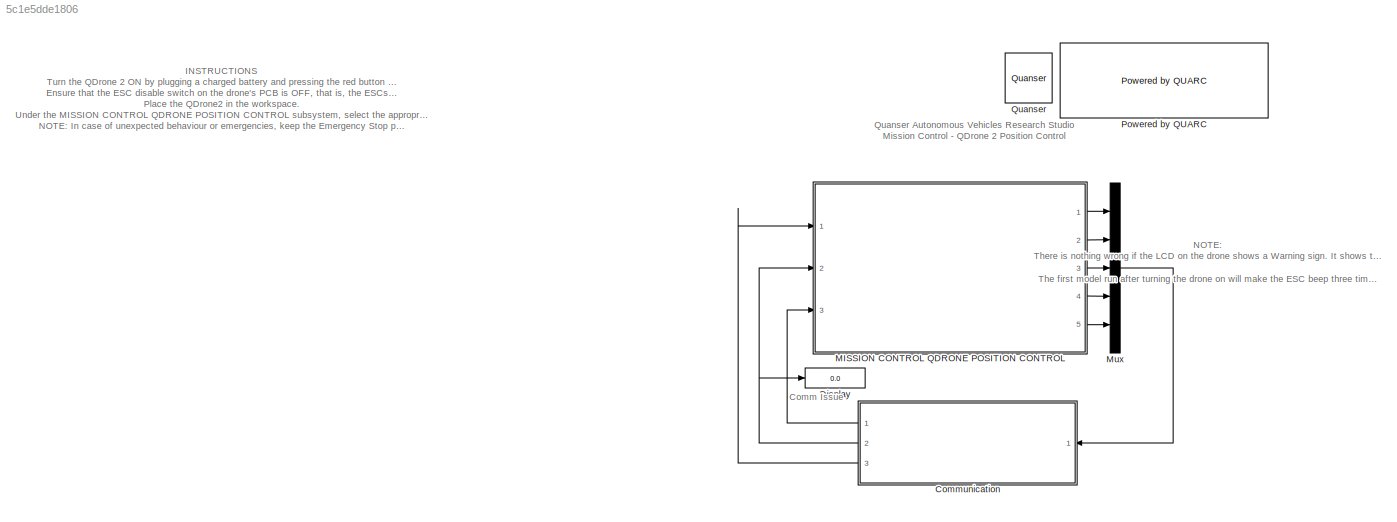
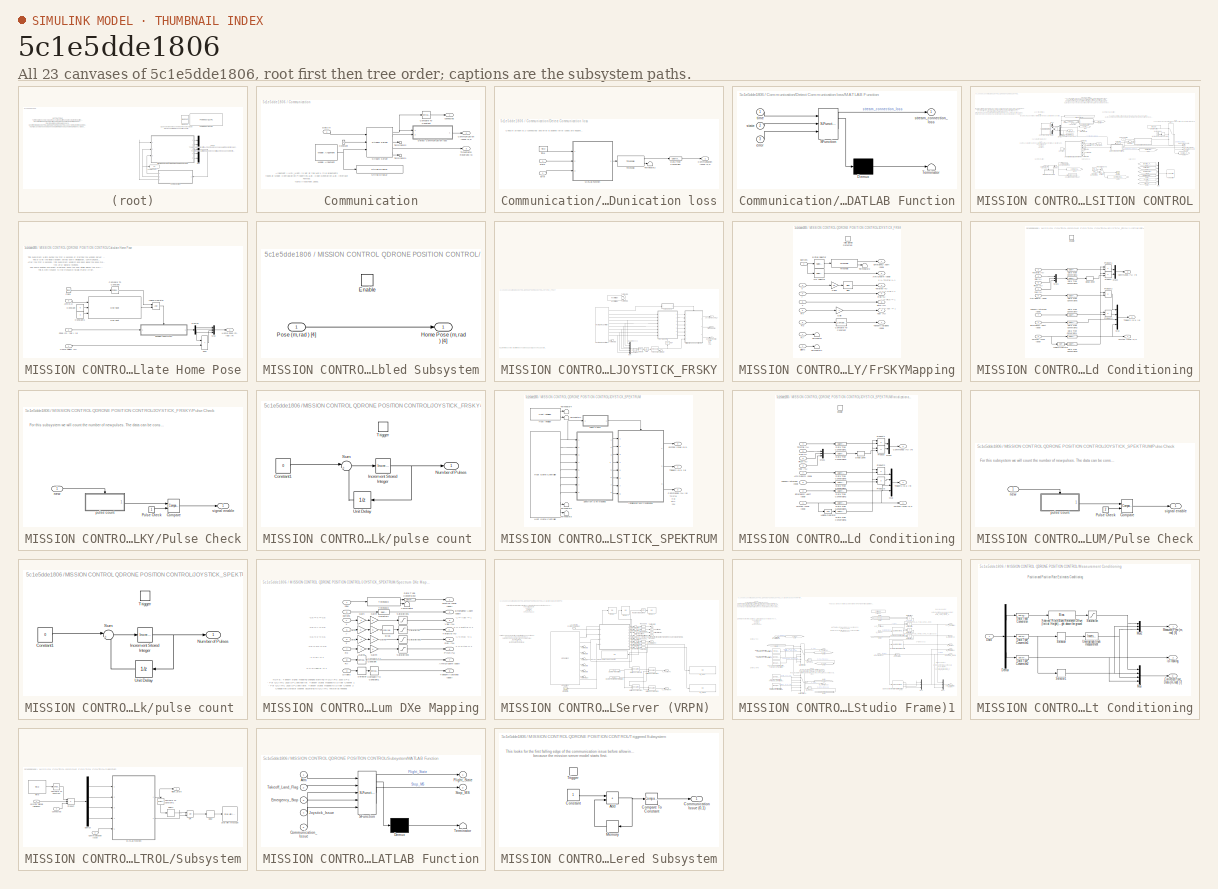
[diagram: thumbnail index - all 23 canvases of the model, root first then tree order]
MODEL slx_5c1e5dde1806
KIND model
CONFIG AbsTol = auto
CONFIG EnableMultiTasking = on
CONFIG FixedStep = 0.001
CONFIG MaxStep = auto
CONFIG MinStep = auto
CONFIG RelTol = 1e-3
CONFIG SampleTimeConstraint = Unconstrained
CONFIG SolverName = ode2
CONFIG StartTime = 0.0
CONFIG StopTime = inf
BLOCK [SubSystem] Communication
  Ports = [1, 3]
BLOCK [Outport] Communication/Communication Issue (0,1)
  Port = 2
  VectorParamsAs1DForOutWhenUnconnected = off
BLOCK [Reference] Communication/Compare To Constant  REF=simulink/Logic and Bit
Operations/Compare
To Constant
  Ports = [1, 1]
  SourceBlock = simulink/Logic and Bit\nOperations/Compare\nTo Constant
  SourceType = Compare To Constant
BLOCK [Constant] Communication/Constant
BLOCK [Inport] Communication/Data In
BLOCK [SubSystem] Communication/Detect Communication loss
  Ports = [2, 1]
BLOCK [Outport] Communication/Detect Communication loss/Communication Issue (0,1)
  VectorParamsAs1DForOutWhenUnconnected = off
BLOCK [DataTypeConversion] Communication/Detect Communication loss/Data Type Conversion
  RndMeth = Floor
  SaturateOnIntegerOverflow = off
BLOCK [Inport] Communication/Detect Communication loss/Error
  NameLocation = top
  Port = 2
BLOCK [SubSystem] Communication/Detect Communication loss/MATLAB Function
  ErrorFcn = Stateflow.Translate.translate
  PermitHierarchicalResolution = ExplicitOnly
  Ports = [3, 1]
  SFBlockType = MATLAB Function
  TreatAsAtomicUnit = on
BLOCK [Demux] Communication/Detect Communication loss/MATLAB Function/ Demux 
  Outputs = 1
  Ports = [1, 1]
BLOCK [S-Function] Communication/Detect Communication loss/MATLAB Function/ SFunction 
  EnableBusSupport = off
  FunctionName = sf_sfun
  PortCounts = [3 2]
  Ports = [3, 2]
  SFcnIsStateOwnerBlock = off
  SFunctionDeploymentMode = off
  Tag = Stateflow S-Function 3
BLOCK [Terminator] Communication/Detect Communication loss/MATLAB Function/ Terminator 
BLOCK [Inport] Communication/Detect Communication loss/MATLAB Function/error
  Port = 3
BLOCK [Inport] Communication/Detect Communication loss/MATLAB Function/state
  Port = 2
BLOCK [Outport] Communication/Detect Communication loss/MATLAB Function/stream_connection_loss
  VectorParamsAs1DForOutWhenUnconnected = off
BLOCK [Inport] Communication/Detect Communication loss/MATLAB Function/time
BLOCK [Inport] Communication/Detect Communication loss/State
  NameLocation = top
BLOCK [Terminator] Communication/Detect Communication loss/Terminator2
BLOCK [Reference] Communication/Detect Communication loss/Threshold  REF=quarc_library/Discontinuities/Threshold
  Ports = [1, 2]
  SourceBlock = quarc_library/Discontinuities/Threshold
  SourceProductName = QUARC Targets
  SourceType = Threshold
BLOCK [Reference] Communication/Detect Communication loss/Time  REF=quarc_library/Sources/Time/Time
  NameLocation = top
  Ports = [0, 1]
  SourceBlock = quarc_library/Sources/Time/Time
  SourceProductName = QUARC Targets
  SourceType = Time
BLOCK [Reference] Communication/Model Argument  REF=quarc_library/Sources/Signals/Model Argument
  AttributesFormatString = (-%<argument_name>)
  Ports = [0, 1]
  SourceBlock = quarc_library/Sources/Signals/Model Argument
  SourceProductName = QUARC Targets
  SourceType = Model Argument
BLOCK [Reference] Communication/Stream Server  REF=quarc_library/Communications/Basic/Stream Server
  Ports = [3, 5]
  SourceBlock = quarc_library/Communications/Basic/Stream Server
  SourceProductName = QUARC Targets
  SourceType = Stream Server
BLOCK [Reference] Communication/String Display   REF=quarc_library/Strings/String Display
  Ports = [1]
  SourceBlock = quarc_library/Strings/String Display
  SourceProductName = QUARC Targets
  SourceType = String Display
BLOCK [Terminator] Communication/Terminator1
BLOCK [Terminator] Communication/Terminator2
BLOCK [Outport] Communication/Timestamp Received (s)
  Port = 3
  VectorParamsAs1DForOutWhenUnconnected = off
BLOCK [Outport] Communication/connected
BLOCK [Display] Display
  Decimation = 1
  Ports = [1]
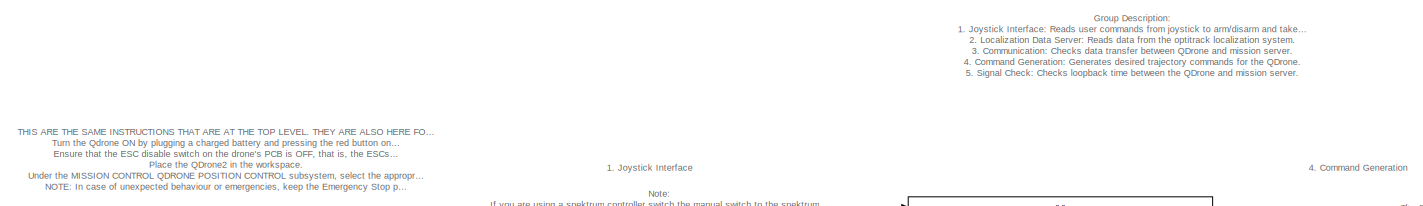
[diagram: MISSION CONTROL QDRONE POSITION CONTROL - part 1/3, top left region]
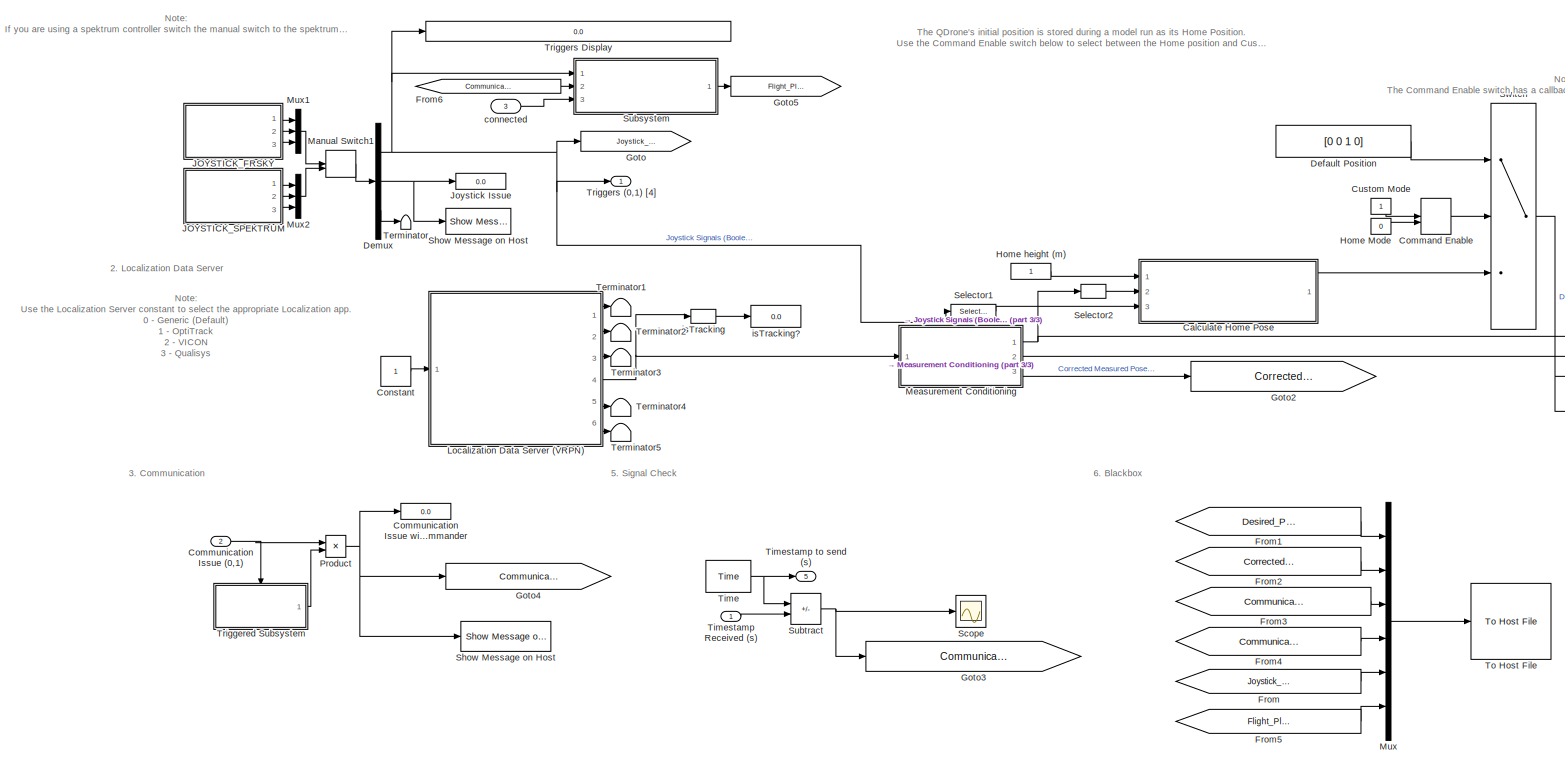
[diagram: MISSION CONTROL QDRONE POSITION CONTROL - part 2/3, center side, full height]
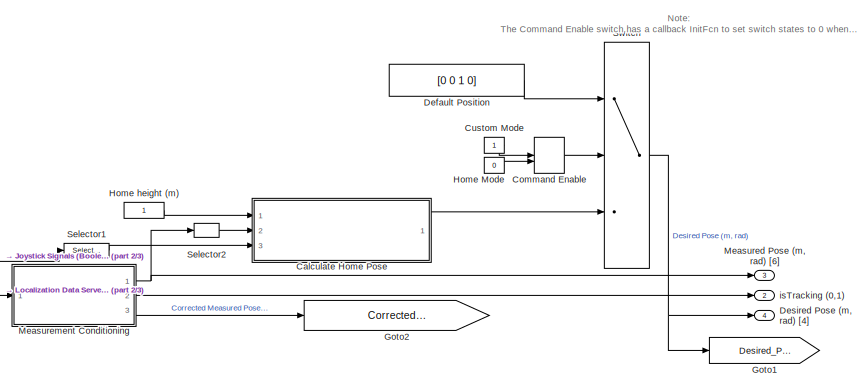
[diagram: MISSION CONTROL QDRONE POSITION CONTROL - part 3/3, middle right region]
BLOCK [SubSystem] MISSION CONTROL QDRONE POSITION CONTROL
  Ports = [3, 5]
BLOCK [SubSystem] MISSION CONTROL QDRONE POSITION CONTROL/Calculate Home Pose
  Ports = [3, 1]
BLOCK [Inport] MISSION CONTROL QDRONE POSITION CONTROL/Calculate Home Pose/Arm(0,1)
  Port = 3
BLOCK [Clock] MISSION CONTROL QDRONE POSITION CONTROL/Calculate Home Pose/Clock
BLOCK [Reference] MISSION CONTROL QDRONE POSITION CONTROL/Calculate Home Pose/Compare To Constant  REF=simulink/Logic and Bit
Operations/Compare
To Constant
  Ports = [1, 1]
  SourceBlock = simulink/Logic and Bit\nOperations/Compare\nTo Constant
  SourceType = Compare To Constant
BLOCK [Constant] MISSION CONTROL QDRONE POSITION CONTROL/Calculate Home Pose/Constant
  Value = 0
BLOCK [Constant] MISSION CONTROL QDRONE POSITION CONTROL/Calculate Home Pose/Constant1
BLOCK [Demux] MISSION CONTROL QDRONE POSITION CONTROL/Calculate Home Pose/Demux
  Ports = [1, 4]
BLOCK [SubSystem] MISSION CONTROL QDRONE POSITION CONTROL/Calculate Home Pose/Enabled Subsystem
  Ports = [1, 1, 1]
  TreatAsAtomicUnit = on
BLOCK [EnablePort] MISSION CONTROL QDRONE POSITION CONTROL/Calculate Home Pose/Enabled Subsystem/Enable
  Ports = []
BLOCK [Outport] MISSION CONTROL QDRONE POSITION CONTROL/Calculate Home Pose/Enabled Subsystem/Home Pose (m, rad ) [4]
  VectorParamsAs1DForOutWhenUnconnected = off
BLOCK [Inport] MISSION CONTROL QDRONE POSITION CONTROL/Calculate Home Pose/Enabled Subsystem/Pose (m, rad ) [4] 
BLOCK [Outport] MISSION CONTROL QDRONE POSITION CONTROL/Calculate Home Pose/Home Pose (m, rad) [4]
  VectorParamsAs1DForOutWhenUnconnected = off
BLOCK [Inport] MISSION CONTROL QDRONE POSITION CONTROL/Calculate Home Pose/Home height (m)
BLOCK [Logic] MISSION CONTROL QDRONE POSITION CONTROL/Calculate Home Pose/Logical Operator
  AllPortsSameDT = off
  OutDataTypeStr = boolean
  Ports = [2, 1]
BLOCK [Mux] MISSION CONTROL QDRONE POSITION CONTROL/Calculate Home Pose/Mux
  DisplayOption = bar
  Ports = [4, 1]
BLOCK [Reference] MISSION CONTROL QDRONE POSITION CONTROL/Calculate Home Pose/One Shot  REF=quarc_library/Discontinuities/One Shot
  Ports = [3, 1]
  SourceBlock = quarc_library/Discontinuities/One Shot
  SourceProductName = QUARC Targets
  SourceType = One Shot
BLOCK [Inport] MISSION CONTROL QDRONE POSITION CONTROL/Calculate Home Pose/Pose (m, rad ) [4]
  Port = 2
BLOCK [Sum] MISSION CONTROL QDRONE POSITION CONTROL/Calculate Home Pose/Sum
  IconShape = rectangular
  Ports = [2, 1]
BLOCK [ManualSwitch] MISSION CONTROL QDRONE POSITION CONTROL/Command Enable
  CurrentSetting = 0
  InitFcn = set_param(gcb,'sw','0')
BLOCK [Inport] MISSION CONTROL QDRONE POSITION CONTROL/Communication Issue (0,1)
  Port = 2
BLOCK [Display] MISSION CONTROL QDRONE POSITION CONTROL/Communication Issue with Commander
  Decimation = 1
  Ports = [1]
BLOCK [Constant] MISSION CONTROL QDRONE POSITION CONTROL/Constant
BLOCK [Constant] MISSION CONTROL QDRONE POSITION CONTROL/Custom Mode
  NameLocation = left
BLOCK [Constant] MISSION CONTROL QDRONE POSITION CONTROL/Default Position
  Value = [0 0 1 0]
BLOCK [Demux] MISSION CONTROL QDRONE POSITION CONTROL/Demux
  Outputs = [4 1 4]
  Ports = [1, 3]
BLOCK [Outport] MISSION CONTROL QDRONE POSITION CONTROL/Desired Pose (m, rad) [4]
  NameLocation = right
  Port = 4
  VectorParamsAs1DForOutWhenUnconnected = off
BLOCK [From] MISSION CONTROL QDRONE POSITION CONTROL/From
  GotoTag = Joystick_Signals
BLOCK [From] MISSION CONTROL QDRONE POSITION CONTROL/From1
  GotoTag = Desired_Pose
BLOCK [From] MISSION CONTROL QDRONE POSITION CONTROL/From2
  GotoTag = Corrected_Measured_Pose
BLOCK [From] MISSION CONTROL QDRONE POSITION CONTROL/From3
  GotoTag = Communication_Loopback_Time
BLOCK [From] MISSION CONTROL QDRONE POSITION CONTROL/From4
  GotoTag = Communication_Status
BLOCK [From] MISSION CONTROL QDRONE POSITION CONTROL/From5
  GotoTag = Flight_Plan
BLOCK [From] MISSION CONTROL QDRONE POSITION CONTROL/From6
  GotoTag = Communication_Status
BLOCK [Goto] MISSION CONTROL QDRONE POSITION CONTROL/Goto
  GotoTag = Joystick_Signals
BLOCK [Goto] MISSION CONTROL QDRONE POSITION CONTROL/Goto1
  GotoTag = Desired_Pose
BLOCK [Goto] MISSION CONTROL QDRONE POSITION CONTROL/Goto2
  GotoTag = Corrected_Measured_Pose
BLOCK [Goto] MISSION CONTROL QDRONE POSITION CONTROL/Goto3
  GotoTag = Communication_Loopback_Time
BLOCK [Goto] MISSION CONTROL QDRONE POSITION CONTROL/Goto4
  GotoTag = Communication_Status
BLOCK [Goto] MISSION CONTROL QDRONE POSITION CONTROL/Goto5
  GotoTag = Flight_Plan
BLOCK [Constant] MISSION CONTROL QDRONE POSITION CONTROL/Home Mode
  NameLocation = left
  Value = 0
BLOCK [Constant] MISSION CONTROL QDRONE POSITION CONTROL/Home height (m)
  NameLocation = left
BLOCK [SubSystem] MISSION CONTROL QDRONE POSITION CONTROL/JOYSTICK_FRSKY
  Ports = [0, 3]
BLOCK [Logic] MISSION CONTROL QDRONE POSITION CONTROL/JOYSTICK_FRSKY/AND
  AllPortsSameDT = off
  Inputs = 1
  OutDataTypeStr = boolean
  Ports = [1, 1]
BLOCK [Outport] MISSION CONTROL QDRONE POSITION CONTROL/JOYSTICK_FRSKY/Commands (%) [4]
  Port = 3
  VectorParamsAs1DForOutWhenUnconnected = off
BLOCK [Reference] MISSION CONTROL QDRONE POSITION CONTROL/JOYSTICK_FRSKY/Compare  REF=quarc_library/Logic Operations/Compare
  Ports = [2, 1]
  SourceBlock = quarc_library/Logic Operations/Compare
  SourceProductName = QUARC Targets
  SourceType = Compare
BLOCK [Constant] MISSION CONTROL QDRONE POSITION CONTROL/JOYSTICK_FRSKY/Constant
  Value = -1*ones(1,6)
BLOCK [SubSystem] MISSION CONTROL QDRONE POSITION CONTROL/JOYSTICK_FRSKY/FrSKYMapping
  NameLocation = top
  Ports = [8, 7, 1]
BLOCK [Selector] MISSION CONTROL QDRONE POSITION CONTROL/JOYSTICK_FRSKY/FrSKYMapping/Arm selector
  IndexOptions = Index vector (dialog)
  Indices = [2]
  InputPortWidth = 32
  OutputSizes = 1
  Ports = [1, 1]
BLOCK [Outport] MISSION CONTROL QDRONE POSITION CONTROL/JOYSTICK_FRSKY/FrSKYMapping/Arm//Disarm (bool) 
  Port = 6
  VectorParamsAs1DForOutWhenUnconnected = off
BLOCK [Bias] MISSION CONTROL QDRONE POSITION CONTROL/JOYSTICK_FRSKY/FrSKYMapping/Bias
  Bias = 0.5
  SaturateOnIntegerOverflow = off
BLOCK [Inport] MISSION CONTROL QDRONE POSITION CONTROL/JOYSTICK_FRSKY/FrSKYMapping/Buttons
BLOCK [Reference] MISSION CONTROL QDRONE POSITION CONTROL/JOYSTICK_FRSKY/FrSKYMapping/Compare To Constant  REF=simulink/Logic and Bit
Operations/Compare
To Constant
  Ports = [1, 1]
  SourceBlock = simulink/Logic and Bit\nOperations/Compare\nTo Constant
  SourceType = Compare To Constant
BLOCK [Selector] MISSION CONTROL QDRONE POSITION CONTROL/JOYSTICK_FRSKY/FrSKYMapping/E-Stop Selector
  IndexOptions = Index vector (dialog)
  Indices = [1]
  InputPortWidth = 32
  NameLocation = top
  OutputSizes = 1
  Ports = [1, 1]
BLOCK [Outport] MISSION CONTROL QDRONE POSITION CONTROL/JOYSTICK_FRSKY/FrSKYMapping/Emergency Abort (bool)
  VectorParamsAs1DForOutWhenUnconnected = off
BLOCK [Gain] MISSION CONTROL QDRONE POSITION CONTROL/JOYSTICK_FRSKY/FrSKYMapping/Gain
  Gain = -1
BLOCK [Gain] MISSION CONTROL QDRONE POSITION CONTROL/JOYSTICK_FRSKY/FrSKYMapping/Gain1
  Gain = 0.5
BLOCK [Outport] MISSION CONTROL QDRONE POSITION CONTROL/JOYSTICK_FRSKY/FrSKYMapping/Pitch (%)
  Port = 5
  VectorParamsAs1DForOutWhenUnconnected = off
BLOCK [Outport] MISSION CONTROL QDRONE POSITION CONTROL/JOYSTICK_FRSKY/FrSKYMapping/Roll (%)
  Port = 4
  VectorParamsAs1DForOutWhenUnconnected = off
BLOCK [Inport] MISSION CONTROL QDRONE POSITION CONTROL/JOYSTICK_FRSKY/FrSKYMapping/Rx
  Port = 6
BLOCK [Inport] MISSION CONTROL QDRONE POSITION CONTROL/JOYSTICK_FRSKY/FrSKYMapping/Ry
  Port = 7
BLOCK [Inport] MISSION CONTROL QDRONE POSITION CONTROL/JOYSTICK_FRSKY/FrSKYMapping/Rz
  Port = 8
BLOCK [Inport] MISSION CONTROL QDRONE POSITION CONTROL/JOYSTICK_FRSKY/FrSKYMapping/Sliders
  Port = 2
BLOCK [Outport] MISSION CONTROL QDRONE POSITION CONTROL/JOYSTICK_FRSKY/FrSKYMapping/Takeoff//Autoland (bool)
  Port = 7
  VectorParamsAs1DForOutWhenUnconnected = off
BLOCK [Terminator] MISSION CONTROL QDRONE POSITION CONTROL/JOYSTICK_FRSKY/FrSKYMapping/Terminator
BLOCK [Terminator] MISSION CONTROL QDRONE POSITION CONTROL/JOYSTICK_FRSKY/FrSKYMapping/Terminator1
BLOCK [Terminator] MISSION CONTROL QDRONE POSITION CONTROL/JOYSTICK_FRSKY/FrSKYMapping/Terminator2
BLOCK [Reference] MISSION CONTROL QDRONE POSITION CONTROL/JOYSTICK_FRSKY/FrSKYMapping/Threshold  REF=quarc_library/Discontinuities/Threshold
  Ports = [1, 2]
  SourceBlock = quarc_library/Discontinuities/Threshold
  SourceProductName = QUARC Targets
  SourceType = Threshold
BLOCK [Outport] MISSION CONTROL QDRONE POSITION CONTROL/JOYSTICK_FRSKY/FrSKYMapping/Throttle (%)
  Port = 3
  VectorParamsAs1DForOutWhenUnconnected = off
BLOCK [EnablePort] MISSION CONTROL QDRONE POSITION CONTROL/JOYSTICK_FRSKY/FrSKYMapping/Valid Signals Detected
  Ports = []
BLOCK [Outport] MISSION CONTROL QDRONE POSITION CONTROL/JOYSTICK_FRSKY/FrSKYMapping/Yaw (%)
  Port = 2
  VectorParamsAs1DForOutWhenUnconnected = off
BLOCK [Inport] MISSION CONTROL QDRONE POSITION CONTROL/JOYSTICK_FRSKY/FrSKYMapping/x
  Port = 3
BLOCK [Inport] MISSION CONTROL QDRONE POSITION CONTROL/JOYSTICK_FRSKY/FrSKYMapping/y
  Port = 4
BLOCK [Inport] MISSION CONTROL QDRONE POSITION CONTROL/JOYSTICK_FRSKY/FrSKYMapping/z
  Port = 5
BLOCK [Reference] MISSION CONTROL QDRONE POSITION CONTROL/JOYSTICK_FRSKY/Host Game Controller  REF=quarc_library/Devices/Peripherals/Host/Host Game Controller
  Ports = [0, 10]
  SourceBlock = quarc_library/Devices/Peripherals/Host/Host Game Controller
  SourceProductName = QUARC Targets
  SourceType = Host Game Controller
BLOCK [Reference] MISSION CONTROL QDRONE POSITION CONTROL/JOYSTICK_FRSKY/Host Initialize  REF=quarc_library/Devices/Peripherals/Host/Host Initialize
  Ports = [0, 2]
  SourceBlock = quarc_library/Devices/Peripherals/Host/Host Initialize
  SourceProductName = QUARC Targets
  SourceType = Host Initialize
BLOCK [SubSystem] MISSION CONTROL QDRONE POSITION CONTROL/JOYSTICK_FRSKY/Initialization and Conditioning
  Ports = [8, 3, 1]
  TreatAsAtomicUnit = on
BLOCK [Inport] MISSION CONTROL QDRONE POSITION CONTROL/JOYSTICK_FRSKY/Initialization and Conditioning/Arm//Disarm (bool)
  Port = 6
BLOCK [Outport] MISSION CONTROL QDRONE POSITION CONTROL/JOYSTICK_FRSKY/Initialization and Conditioning/Commands (%) [4]
  InitialOutput = 0
  NameLocation = top
  Port = 3
  VectorParamsAs1DForOutWhenUnconnected = off
BLOCK [DataTypeConversion] MISSION CONTROL QDRONE POSITION CONTROL/JOYSTICK_FRSKY/Initialization and Conditioning/Data Type Conversion1
  RndMeth = Floor
  SaturateOnIntegerOverflow = off
BLOCK [DataTypeConversion] MISSION CONTROL QDRONE POSITION CONTROL/JOYSTICK_FRSKY/Initialization and Conditioning/Data Type Conversion2
  RndMeth = Floor
  SaturateOnIntegerOverflow = off
BLOCK [DataTypeConversion] MISSION CONTROL QDRONE POSITION CONTROL/JOYSTICK_FRSKY/Initialization and Conditioning/Data Type Conversion3
  RndMeth = Floor
  SaturateOnIntegerOverflow = off
BLOCK [DataTypeConversion] MISSION CONTROL QDRONE POSITION CONTROL/JOYSTICK_FRSKY/Initialization and Conditioning/Data Type Conversion4
  RndMeth = Floor
  SaturateOnIntegerOverflow = off
BLOCK [DataTypeConversion] MISSION CONTROL QDRONE POSITION CONTROL/JOYSTICK_FRSKY/Initialization and Conditioning/Data Type Conversion5
  RndMeth = Floor
  SaturateOnIntegerOverflow = off
BLOCK [DataTypeConversion] MISSION CONTROL QDRONE POSITION CONTROL/JOYSTICK_FRSKY/Initialization and Conditioning/Data Type Conversion6
  RndMeth = Floor
  SaturateOnIntegerOverflow = off
BLOCK [DataTypeConversion] MISSION CONTROL QDRONE POSITION CONTROL/JOYSTICK_FRSKY/Initialization and Conditioning/Data Type Conversion7
  RndMeth = Floor
  SaturateOnIntegerOverflow = off
BLOCK [DeadZone] MISSION CONTROL QDRONE POSITION CONTROL/JOYSTICK_FRSKY/Initialization and Conditioning/Dead Zone
  LowerValue = -0.01
  UpperValue = 0.01
BLOCK [Inport] MISSION CONTROL QDRONE POSITION CONTROL/JOYSTICK_FRSKY/Initialization and Conditioning/Emergency Abort (bool)
BLOCK [EnablePort] MISSION CONTROL QDRONE POSITION CONTROL/JOYSTICK_FRSKY/Initialization and Conditioning/Enable
  Ports = []
  StatesWhenEnabling = reset
BLOCK [Outport] MISSION CONTROL QDRONE POSITION CONTROL/JOYSTICK_FRSKY/Initialization and Conditioning/Joystick Issue (0,1)
  InitialOutput = 0
  NameLocation = top
  VectorParamsAs1DForOutWhenUnconnected = off
BLOCK [Inport] MISSION CONTROL QDRONE POSITION CONTROL/JOYSTICK_FRSKY/Initialization and Conditioning/Joystick Issue (bool)
  Port = 8
BLOCK [Logic] MISSION CONTROL QDRONE POSITION CONTROL/JOYSTICK_FRSKY/Initialization and Conditioning/Logical Operator
  AllPortsSameDT = off
  Operator = NOT
  OutDataTypeStr = boolean
  Ports = [1, 1]
BLOCK [Mux] MISSION CONTROL QDRONE POSITION CONTROL/JOYSTICK_FRSKY/Initialization and Conditioning/Mux
  DisplayOption = bar
  Ports = [4, 1]
BLOCK [Mux] MISSION CONTROL QDRONE POSITION CONTROL/JOYSTICK_FRSKY/Initialization and Conditioning/Mux1
  DisplayOption = bar
  Inputs = 3
  Ports = [3, 1]
BLOCK [Mux] MISSION CONTROL QDRONE POSITION CONTROL/JOYSTICK_FRSKY/Initialization and Conditioning/Mux2
  DisplayOption = bar
  Inputs = 2
  Ports = [2, 1]
BLOCK [Inport] MISSION CONTROL QDRONE POSITION CONTROL/JOYSTICK_FRSKY/Initialization and Conditioning/Pitch (%)
  Port = 5
BLOCK [Product] MISSION CONTROL QDRONE POSITION CONTROL/JOYSTICK_FRSKY/Initialization and Conditioning/Product
  Ports = [2, 1]
BLOCK [Product] MISSION CONTROL QDRONE POSITION CONTROL/JOYSTICK_FRSKY/Initialization and Conditioning/Product1
  Ports = [2, 1]
BLOCK [Product] MISSION CONTROL QDRONE POSITION CONTROL/JOYSTICK_FRSKY/Initialization and Conditioning/Product2
  Ports = [2, 1]
BLOCK [Product] MISSION CONTROL QDRONE POSITION CONTROL/JOYSTICK_FRSKY/Initialization and Conditioning/Product3
  Ports = [2, 1]
BLOCK [Inport] MISSION CONTROL QDRONE POSITION CONTROL/JOYSTICK_FRSKY/Initialization and Conditioning/Roll (%)
  Port = 4
BLOCK [Inport] MISSION CONTROL QDRONE POSITION CONTROL/JOYSTICK_FRSKY/Initialization and Conditioning/Takeoff//AutoLand (bool)
  Port = 7
BLOCK [Inport] MISSION CONTROL QDRONE POSITION CONTROL/JOYSTICK_FRSKY/Initialization and Conditioning/Throttle (%)
  Port = 3
BLOCK [Outport] MISSION CONTROL QDRONE POSITION CONTROL/JOYSTICK_FRSKY/Initialization and Conditioning/Triggers (0,1) [4]
  InitialOutput = 0
  NameLocation = top
  Port = 2
  VectorParamsAs1DForOutWhenUnconnected = off
BLOCK [Inport] MISSION CONTROL QDRONE POSITION CONTROL/JOYSTICK_FRSKY/Initialization and Conditioning/Yaw (%)
  Port = 2
BLOCK [Outport] MISSION CONTROL QDRONE POSITION CONTROL/JOYSTICK_FRSKY/Joystick Issue (0,1)
  Port = 2
  VectorParamsAs1DForOutWhenUnconnected = off
BLOCK [Mux] MISSION CONTROL QDRONE POSITION CONTROL/JOYSTICK_FRSKY/Mux
  DisplayOption = bar
  Inputs = 6
  Ports = [6, 1]
BLOCK [Logic] MISSION CONTROL QDRONE POSITION CONTROL/JOYSTICK_FRSKY/NOT
  AllPortsSameDT = off
  IconShape = distinctive
  NameLocation = right
  Operator = NOT
  OutDataTypeStr = boolean
  Ports = [1, 1]
BLOCK [SubSystem] MISSION CONTROL QDRONE POSITION CONTROL/JOYSTICK_FRSKY/Pulse Check
  NameLocation = top
  Ports = [1, 1]
  TreatAsAtomicUnit = on
BLOCK [Reference] MISSION CONTROL QDRONE POSITION CONTROL/JOYSTICK_FRSKY/Pulse Check/Compare  REF=quarc_library/Logic Operations/Compare
  Ports = [2, 1]
  SourceBlock = quarc_library/Logic Operations/Compare
  SourceProductName = QUARC Targets
  SourceType = Compare
BLOCK [Constant] MISSION CONTROL QDRONE POSITION CONTROL/JOYSTICK_FRSKY/Pulse Check/Pulse Check
BLOCK [Inport] MISSION CONTROL QDRONE POSITION CONTROL/JOYSTICK_FRSKY/Pulse Check/new
BLOCK [SubSystem] MISSION CONTROL QDRONE POSITION CONTROL/JOYSTICK_FRSKY/Pulse Check/pulse count 
  Ports = [0, 1, 0, 1]
  TreatAsAtomicUnit = on
BLOCK [Constant] MISSION CONTROL QDRONE POSITION CONTROL/JOYSTICK_FRSKY/Pulse Check/pulse count /Constant1
  Value = 0
BLOCK [Reference] MISSION CONTROL QDRONE POSITION CONTROL/JOYSTICK_FRSKY/Pulse Check/pulse count /Increment Stored Integer  REF=simulink/Additional Math
& Discrete/Additional Math:
Increment - Decrement/Increment
Stored Integer
  Ports = [1, 1]
  SourceBlock = simulink/Additional Math\n& Discrete/Additional Math:\nIncrement - Decrement/Increment\nStored Integer
  SourceType = Stored Integer Value Increment
BLOCK [Outport] MISSION CONTROL QDRONE POSITION CONTROL/JOYSTICK_FRSKY/Pulse Check/pulse count /Number of Pulses
  VectorParamsAs1DForOutWhenUnconnected = off
BLOCK [Sum] MISSION CONTROL QDRONE POSITION CONTROL/JOYSTICK_FRSKY/Pulse Check/pulse count /Sum
  Inputs = |++
  Ports = [2, 1]
BLOCK [TriggerPort] MISSION CONTROL QDRONE POSITION CONTROL/JOYSTICK_FRSKY/Pulse Check/pulse count /Trigger
  Ports = []
  StatesWhenEnabling = held
  VariantControl = Variant
BLOCK [UnitDelay] MISSION CONTROL QDRONE POSITION CONTROL/JOYSTICK_FRSKY/Pulse Check/pulse count /Unit Delay
  HasFrameUpgradeWarning = on
  NameLocation = top
  SampleTime = -1
BLOCK [Outport] MISSION CONTROL QDRONE POSITION CONTROL/JOYSTICK_FRSKY/Pulse Check/signal enable
  InitialOutput = 0
  VectorParamsAs1DForOutWhenUnconnected = off
BLOCK [Terminator] MISSION CONTROL QDRONE POSITION CONTROL/JOYSTICK_FRSKY/Terminator
BLOCK [Terminator] MISSION CONTROL QDRONE POSITION CONTROL/JOYSTICK_FRSKY/Terminator1
BLOCK [Terminator] MISSION CONTROL QDRONE POSITION CONTROL/JOYSTICK_FRSKY/Terminator2
BLOCK [Terminator] MISSION CONTROL QDRONE POSITION CONTROL/JOYSTICK_FRSKY/Terminator4
BLOCK [Reference] MISSION CONTROL QDRONE POSITION CONTROL/JOYSTICK_FRSKY/Threshold  REF=quarc_library/Discontinuities/Threshold
  Ports = [1, 2]
  SourceBlock = quarc_library/Discontinuities/Threshold
  SourceProductName = QUARC Targets
  SourceType = Threshold
BLOCK [Outport] MISSION CONTROL QDRONE POSITION CONTROL/JOYSTICK_FRSKY/Triggers (0,1) [4]
  VectorParamsAs1DForOutWhenUnconnected = off
BLOCK [SubSystem] MISSION CONTROL QDRONE POSITION CONTROL/JOYSTICK_SPEKTRUM
  Commented = on
  Ports = [0, 3]
BLOCK [Outport] MISSION CONTROL QDRONE POSITION CONTROL/JOYSTICK_SPEKTRUM/Commands (%) [4]
  Port = 3
  VectorParamsAs1DForOutWhenUnconnected = off
BLOCK [Reference] MISSION CONTROL QDRONE POSITION CONTROL/JOYSTICK_SPEKTRUM/Host Game Controller  REF=quarc_library/Devices/Peripherals/Host/Host Game Controller
  Ports = [0, 10]
  SourceBlock = quarc_library/Devices/Peripherals/Host/Host Game Controller
  SourceProductName = QUARC Targets
  SourceType = Host Game Controller
BLOCK [Reference] MISSION CONTROL QDRONE POSITION CONTROL/JOYSTICK_SPEKTRUM/Host Initialize  REF=quarc_library/Devices/Peripherals/Host/Host Initialize
  Ports = [0, 2]
  SourceBlock = quarc_library/Devices/Peripherals/Host/Host Initialize
  SourceProductName = QUARC Targets
  SourceType = Host Initialize
BLOCK [SubSystem] MISSION CONTROL QDRONE POSITION CONTROL/JOYSTICK_SPEKTRUM/Initialization and Conditioning
  Ports = [8, 3, 1]
  TreatAsAtomicUnit = on
BLOCK [Inport] MISSION CONTROL QDRONE POSITION CONTROL/JOYSTICK_SPEKTRUM/Initialization and Conditioning/Arm//Disarm (bool)
  Port = 7
BLOCK [Outport] MISSION CONTROL QDRONE POSITION CONTROL/JOYSTICK_SPEKTRUM/Initialization and Conditioning/Commands (%) [4]
  InitialOutput = 0
  NameLocation = top
  Port = 3
  VectorParamsAs1DForOutWhenUnconnected = off
BLOCK [DataTypeConversion] MISSION CONTROL QDRONE POSITION CONTROL/JOYSTICK_SPEKTRUM/Initialization and Conditioning/Data Type Conversion1
  RndMeth = Floor
  SaturateOnIntegerOverflow = off
BLOCK [DataTypeConversion] MISSION CONTROL QDRONE POSITION CONTROL/JOYSTICK_SPEKTRUM/Initialization and Conditioning/Data Type Conversion2
  RndMeth = Floor
  SaturateOnIntegerOverflow = off
BLOCK [DataTypeConversion] MISSION CONTROL QDRONE POSITION CONTROL/JOYSTICK_SPEKTRUM/Initialization and Conditioning/Data Type Conversion3
  RndMeth = Floor
  SaturateOnIntegerOverflow = off
BLOCK [DataTypeConversion] MISSION CONTROL QDRONE POSITION CONTROL/JOYSTICK_SPEKTRUM/Initialization and Conditioning/Data Type Conversion4
  RndMeth = Floor
  SaturateOnIntegerOverflow = off
BLOCK [DataTypeConversion] MISSION CONTROL QDRONE POSITION CONTROL/JOYSTICK_SPEKTRUM/Initialization and Conditioning/Data Type Conversion5
  RndMeth = Floor
  SaturateOnIntegerOverflow = off
BLOCK [DataTypeConversion] MISSION CONTROL QDRONE POSITION CONTROL/JOYSTICK_SPEKTRUM/Initialization and Conditioning/Data Type Conversion6
  RndMeth = Floor
  SaturateOnIntegerOverflow = off
BLOCK [DataTypeConversion] MISSION CONTROL QDRONE POSITION CONTROL/JOYSTICK_SPEKTRUM/Initialization and Conditioning/Data Type Conversion7
  RndMeth = Floor
  SaturateOnIntegerOverflow = off
BLOCK [DeadZone] MISSION CONTROL QDRONE POSITION CONTROL/JOYSTICK_SPEKTRUM/Initialization and Conditioning/Dead Zone
  LowerValue = -0.01
  UpperValue = 0.01
BLOCK [Inport] MISSION CONTROL QDRONE POSITION CONTROL/JOYSTICK_SPEKTRUM/Initialization and Conditioning/Emergency Abort (bool)
  Port = 2
BLOCK [EnablePort] MISSION CONTROL QDRONE POSITION CONTROL/JOYSTICK_SPEKTRUM/Initialization and Conditioning/Enable
  Ports = []
  StatesWhenEnabling = reset
BLOCK [Outport] MISSION CONTROL QDRONE POSITION CONTROL/JOYSTICK_SPEKTRUM/Initialization and Conditioning/Joystick Issue (0,1)
  InitialOutput = 0
  NameLocation = top
  VectorParamsAs1DForOutWhenUnconnected = off
BLOCK [Inport] MISSION CONTROL QDRONE POSITION CONTROL/JOYSTICK_SPEKTRUM/Initialization and Conditioning/Joystick Issue (bool)
BLOCK [Logic] MISSION CONTROL QDRONE POSITION CONTROL/JOYSTICK_SPEKTRUM/Initialization and Conditioning/Logical Operator
  AllPortsSameDT = off
  Operator = NOT
  OutDataTypeStr = boolean
  Ports = [1, 1]
BLOCK [Mux] MISSION CONTROL QDRONE POSITION CONTROL/JOYSTICK_SPEKTRUM/Initialization and Conditioning/Mux
  DisplayOption = bar
  Ports = [4, 1]
BLOCK [Mux] MISSION CONTROL QDRONE POSITION CONTROL/JOYSTICK_SPEKTRUM/Initialization and Conditioning/Mux1
  DisplayOption = bar
  Inputs = 3
  Ports = [3, 1]
BLOCK [Mux] MISSION CONTROL QDRONE POSITION CONTROL/JOYSTICK_SPEKTRUM/Initialization and Conditioning/Mux2
  DisplayOption = bar
  Inputs = 2
  Ports = [2, 1]
BLOCK [Inport] MISSION CONTROL QDRONE POSITION CONTROL/JOYSTICK_SPEKTRUM/Initialization and Conditioning/Pitch (%)
  Port = 6
BLOCK [Product] MISSION CONTROL QDRONE POSITION CONTROL/JOYSTICK_SPEKTRUM/Initialization and Conditioning/Product
  Ports = [2, 1]
BLOCK [Product] MISSION CONTROL QDRONE POSITION CONTROL/JOYSTICK_SPEKTRUM/Initialization and Conditioning/Product1
  Ports = [2, 1]
BLOCK [Product] MISSION CONTROL QDRONE POSITION CONTROL/JOYSTICK_SPEKTRUM/Initialization and Conditioning/Product2
  Ports = [2, 1]
BLOCK [Product] MISSION CONTROL QDRONE POSITION CONTROL/JOYSTICK_SPEKTRUM/Initialization and Conditioning/Product3
  Ports = [2, 1]
BLOCK [Inport] MISSION CONTROL QDRONE POSITION CONTROL/JOYSTICK_SPEKTRUM/Initialization and Conditioning/Roll (%)
  Port = 5
BLOCK [Inport] MISSION CONTROL QDRONE POSITION CONTROL/JOYSTICK_SPEKTRUM/Initialization and Conditioning/Takeoff//AutoLand (bool)
  Port = 8
BLOCK [Inport] MISSION CONTROL QDRONE POSITION CONTROL/JOYSTICK_SPEKTRUM/Initialization and Conditioning/Throttle (%)
  Port = 4
BLOCK [Outport] MISSION CONTROL QDRONE POSITION CONTROL/JOYSTICK_SPEKTRUM/Initialization and Conditioning/Triggers (0,1) [4]
  InitialOutput = 0
  NameLocation = top
  Port = 2
  VectorParamsAs1DForOutWhenUnconnected = off
BLOCK [Inport] MISSION CONTROL QDRONE POSITION CONTROL/JOYSTICK_SPEKTRUM/Initialization and Conditioning/Yaw (%)
  Port = 3
BLOCK [Outport] MISSION CONTROL QDRONE POSITION CONTROL/JOYSTICK_SPEKTRUM/Joystick Issue (0,1)
  Port = 2
  VectorParamsAs1DForOutWhenUnconnected = off
BLOCK [SubSystem] MISSION CONTROL QDRONE POSITION CONTROL/JOYSTICK_SPEKTRUM/Pulse Check
  Ports = [1, 1]
  TreatAsAtomicUnit = on
BLOCK [Reference] MISSION CONTROL QDRONE POSITION CONTROL/JOYSTICK_SPEKTRUM/Pulse Check/Compare  REF=quarc_library/Logic Operations/Compare
  Ports = [2, 1]
  SourceBlock = quarc_library/Logic Operations/Compare
  SourceProductName = QUARC Targets
  SourceType = Compare
BLOCK [Constant] MISSION CONTROL QDRONE POSITION CONTROL/JOYSTICK_SPEKTRUM/Pulse Check/Pulse Check
  Value = 2
BLOCK [Inport] MISSION CONTROL QDRONE POSITION CONTROL/JOYSTICK_SPEKTRUM/Pulse Check/new
BLOCK [SubSystem] MISSION CONTROL QDRONE POSITION CONTROL/JOYSTICK_SPEKTRUM/Pulse Check/pulse count 
  Ports = [0, 1, 0, 1]
  TreatAsAtomicUnit = on
BLOCK [Constant] MISSION CONTROL QDRONE POSITION CONTROL/JOYSTICK_SPEKTRUM/Pulse Check/pulse count /Constant1
  Value = 0
BLOCK [Reference] MISSION CONTROL QDRONE POSITION CONTROL/JOYSTICK_SPEKTRUM/Pulse Check/pulse count /Increment Stored Integer  REF=simulink/Additional Math
& Discrete/Additional Math:
Increment - Decrement/Increment
Stored Integer
  Ports = [1, 1]
  SourceBlock = simulink/Additional Math\n& Discrete/Additional Math:\nIncrement - Decrement/Increment\nStored Integer
  SourceType = Stored Integer Value Increment
BLOCK [Outport] MISSION CONTROL QDRONE POSITION CONTROL/JOYSTICK_SPEKTRUM/Pulse Check/pulse count /Number of Pulses
  VectorParamsAs1DForOutWhenUnconnected = off
BLOCK [Sum] MISSION CONTROL QDRONE POSITION CONTROL/JOYSTICK_SPEKTRUM/Pulse Check/pulse count /Sum
  Inputs = |++
  Ports = [2, 1]
BLOCK [TriggerPort] MISSION CONTROL QDRONE POSITION CONTROL/JOYSTICK_SPEKTRUM/Pulse Check/pulse count /Trigger
  Ports = []
  StatesWhenEnabling = held
  VariantControl = Variant
BLOCK [UnitDelay] MISSION CONTROL QDRONE POSITION CONTROL/JOYSTICK_SPEKTRUM/Pulse Check/pulse count /Unit Delay
  HasFrameUpgradeWarning = on
  NameLocation = top
  SampleTime = -1
BLOCK [Outport] MISSION CONTROL QDRONE POSITION CONTROL/JOYSTICK_SPEKTRUM/Pulse Check/signal enable
  InitialOutput = 0
  VectorParamsAs1DForOutWhenUnconnected = off
BLOCK [SubSystem] MISSION CONTROL QDRONE POSITION CONTROL/JOYSTICK_SPEKTRUM/Spectrum DXe Mapping
  Ports = [8, 8]
BLOCK [Outport] MISSION CONTROL QDRONE POSITION CONTROL/JOYSTICK_SPEKTRUM/Spectrum DXe Mapping/Arm//Disarm (bool) 
  Port = 7
  VectorParamsAs1DForOutWhenUnconnected = off
BLOCK [Bias] MISSION CONTROL QDRONE POSITION CONTROL/JOYSTICK_SPEKTRUM/Spectrum DXe Mapping/Bias
  Bias = 0.5
  SaturateOnIntegerOverflow = off
BLOCK [Reference] MISSION CONTROL QDRONE POSITION CONTROL/JOYSTICK_SPEKTRUM/Spectrum DXe Mapping/Compare To Constant  REF=simulink/Logic and Bit
Operations/Compare
To Constant
  Ports = [1, 1]
  SourceBlock = simulink/Logic and Bit\nOperations/Compare\nTo Constant
  SourceType = Compare To Constant
BLOCK [Reference] MISSION CONTROL QDRONE POSITION CONTROL/JOYSTICK_SPEKTRUM/Spectrum DXe Mapping/Compare To Constant1  REF=simulink/Logic and Bit
Operations/Compare
To Constant
  Ports = [1, 1]
  SourceBlock = simulink/Logic and Bit\nOperations/Compare\nTo Constant
  SourceType = Compare To Constant
BLOCK [DataTypeConversion] MISSION CONTROL QDRONE POSITION CONTROL/JOYSTICK_SPEKTRUM/Spectrum DXe Mapping/Data Type Conversion2
  RndMeth = Floor
  SaturateOnIntegerOverflow = off
BLOCK [Outport] MISSION CONTROL QDRONE POSITION CONTROL/JOYSTICK_SPEKTRUM/Spectrum DXe Mapping/Emergency Abort (bool)
  Port = 2
  VectorParamsAs1DForOutWhenUnconnected = off
BLOCK [Gain] MISSION CONTROL QDRONE POSITION CONTROL/JOYSTICK_SPEKTRUM/Spectrum DXe Mapping/Gain
  Gain = 2
BLOCK [Gain] MISSION CONTROL QDRONE POSITION CONTROL/JOYSTICK_SPEKTRUM/Spectrum DXe Mapping/Gain1
BLOCK [Gain] MISSION CONTROL QDRONE POSITION CONTROL/JOYSTICK_SPEKTRUM/Spectrum DXe Mapping/Gain2
  Gain = 2
BLOCK [Gain] MISSION CONTROL QDRONE POSITION CONTROL/JOYSTICK_SPEKTRUM/Spectrum DXe Mapping/Gain3
  Gain = 2
BLOCK [Gain] MISSION CONTROL QDRONE POSITION CONTROL/JOYSTICK_SPEKTRUM/Spectrum DXe Mapping/Gain4
BLOCK [Gain] MISSION CONTROL QDRONE POSITION CONTROL/JOYSTICK_SPEKTRUM/Spectrum DXe Mapping/Gain5
  Gain = -1
BLOCK [Gain] MISSION CONTROL QDRONE POSITION CONTROL/JOYSTICK_SPEKTRUM/Spectrum DXe Mapping/Gain6
BLOCK [Gain] MISSION CONTROL QDRONE POSITION CONTROL/JOYSTICK_SPEKTRUM/Spectrum DXe Mapping/Gain7
BLOCK [Outport] MISSION CONTROL QDRONE POSITION CONTROL/JOYSTICK_SPEKTRUM/Spectrum DXe Mapping/Joystick Issue (bool)
  VectorParamsAs1DForOutWhenUnconnected = off
BLOCK [Outport] MISSION CONTROL QDRONE POSITION CONTROL/JOYSTICK_SPEKTRUM/Spectrum DXe Mapping/Pitch (%)
  Port = 6
  VectorParamsAs1DForOutWhenUnconnected = off
BLOCK [Outport] MISSION CONTROL QDRONE POSITION CONTROL/JOYSTICK_SPEKTRUM/Spectrum DXe Mapping/Roll (%)
  Port = 5
  VectorParamsAs1DForOutWhenUnconnected = off
BLOCK [Inport] MISSION CONTROL QDRONE POSITION CONTROL/JOYSTICK_SPEKTRUM/Spectrum DXe Mapping/Rx
  Port = 7
BLOCK [Inport] MISSION CONTROL QDRONE POSITION CONTROL/JOYSTICK_SPEKTRUM/Spectrum DXe Mapping/Ry
  Port = 8
BLOCK [Saturate] MISSION CONTROL QDRONE POSITION CONTROL/JOYSTICK_SPEKTRUM/Spectrum DXe Mapping/Saturation
  LowerLimit = 0
  UpperLimit = 1
BLOCK [Saturate] MISSION CONTROL QDRONE POSITION CONTROL/JOYSTICK_SPEKTRUM/Spectrum DXe Mapping/Saturation1
  LowerLimit = -1
  UpperLimit = 1
BLOCK [Saturate] MISSION CONTROL QDRONE POSITION CONTROL/JOYSTICK_SPEKTRUM/Spectrum DXe Mapping/Saturation2
  LowerLimit = -1
  UpperLimit = 1
BLOCK [Saturate] MISSION CONTROL QDRONE POSITION CONTROL/JOYSTICK_SPEKTRUM/Spectrum DXe Mapping/Saturation3
  LowerLimit = -1
  UpperLimit = 1
BLOCK [Selector] MISSION CONTROL QDRONE POSITION CONTROL/JOYSTICK_SPEKTRUM/Spectrum DXe Mapping/Selector
  IndexOptions = Index vector (dialog)
  Indices = [2]
  InputPortWidth = 2
  OutputSizes = 1
  Ports = [1, 1]
BLOCK [Selector] MISSION CONTROL QDRONE POSITION CONTROL/JOYSTICK_SPEKTRUM/Spectrum DXe Mapping/Selector2
  IndexOptions = Index vector (dialog)
  Indices = [1]
  InputPortWidth = 32
  NameLocation = top
  OutputSizes = 1
  Ports = [1, 1]
BLOCK [Inport] MISSION CONTROL QDRONE POSITION CONTROL/JOYSTICK_SPEKTRUM/Spectrum DXe Mapping/Sliders
  Port = 3
BLOCK [Outport] MISSION CONTROL QDRONE POSITION CONTROL/JOYSTICK_SPEKTRUM/Spectrum DXe Mapping/Takeoff//Autoland (bool)
  Port = 8
  VectorParamsAs1DForOutWhenUnconnected = off
BLOCK [Terminator] MISSION CONTROL QDRONE POSITION CONTROL/JOYSTICK_SPEKTRUM/Spectrum DXe Mapping/Terminator
BLOCK [Reference] MISSION CONTROL QDRONE POSITION CONTROL/JOYSTICK_SPEKTRUM/Spectrum DXe Mapping/Threshold  REF=quarc_library/Discontinuities/Threshold
  Ports = [1, 2]
  SourceBlock = quarc_library/Discontinuities/Threshold
  SourceProductName = QUARC Targets
  SourceType = Threshold
BLOCK [Outport] MISSION CONTROL QDRONE POSITION CONTROL/JOYSTICK_SPEKTRUM/Spectrum DXe Mapping/Throttle (%)
  Port = 4
  VectorParamsAs1DForOutWhenUnconnected = off
BLOCK [Outport] MISSION CONTROL QDRONE POSITION CONTROL/JOYSTICK_SPEKTRUM/Spectrum DXe Mapping/Yaw (%)
  Port = 3
  VectorParamsAs1DForOutWhenUnconnected = off
BLOCK [Inport] MISSION CONTROL QDRONE POSITION CONTROL/JOYSTICK_SPEKTRUM/Spectrum DXe Mapping/buttons
  Port = 2
BLOCK [Inport] MISSION CONTROL QDRONE POSITION CONTROL/JOYSTICK_SPEKTRUM/Spectrum DXe Mapping/new
BLOCK [Inport] MISSION CONTROL QDRONE POSITION CONTROL/JOYSTICK_SPEKTRUM/Spectrum DXe Mapping/x
  Port = 4
BLOCK [Inport] MISSION CONTROL QDRONE POSITION CONTROL/JOYSTICK_SPEKTRUM/Spectrum DXe Mapping/y
  Port = 5
BLOCK [Inport] MISSION CONTROL QDRONE POSITION CONTROL/JOYSTICK_SPEKTRUM/Spectrum DXe Mapping/z
  Port = 6
BLOCK [Terminator] MISSION CONTROL QDRONE POSITION CONTROL/JOYSTICK_SPEKTRUM/Terminator1
BLOCK [Terminator] MISSION CONTROL QDRONE POSITION CONTROL/JOYSTICK_SPEKTRUM/Terminator2
BLOCK [Terminator] MISSION CONTROL QDRONE POSITION CONTROL/JOYSTICK_SPEKTRUM/Terminator3
BLOCK [Terminator] MISSION CONTROL QDRONE POSITION CONTROL/JOYSTICK_SPEKTRUM/Terminator4
BLOCK [Outport] MISSION CONTROL QDRONE POSITION CONTROL/JOYSTICK_SPEKTRUM/Triggers (0,1) [4]
  VectorParamsAs1DForOutWhenUnconnected = off
BLOCK [Display] MISSION CONTROL QDRONE POSITION CONTROL/Joystick Issue
  Decimation = 1
  Ports = [1]
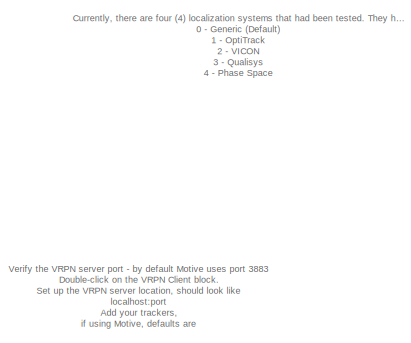
[diagram: MISSION CONTROL QDRONE POSITION CONTROL/Localization Data Server (VRPN)  - part 1/2, top left region]
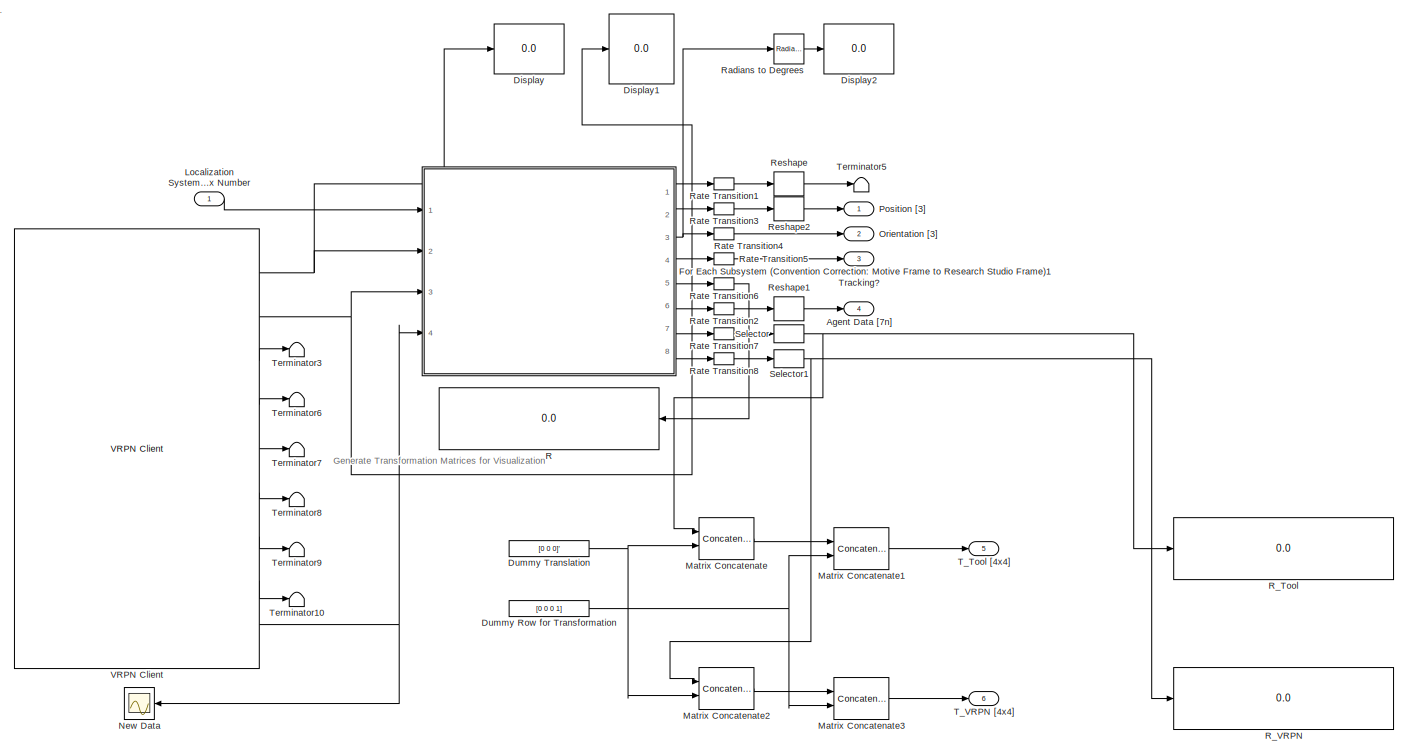
[diagram: MISSION CONTROL QDRONE POSITION CONTROL/Localization Data Server (VRPN)  - part 2/2, most of the canvas]
BLOCK [SubSystem] MISSION CONTROL QDRONE POSITION CONTROL/Localization Data Server (VRPN) 
  Ports = [1, 6]
BLOCK [Outport] MISSION CONTROL QDRONE POSITION CONTROL/Localization Data Server (VRPN) /Agent Data [7n]
  NameLocation = right
  Port = 4
  VectorParamsAs1DForOutWhenUnconnected = off
BLOCK [Display] MISSION CONTROL QDRONE POSITION CONTROL/Localization Data Server (VRPN) /Display
  Decimation = 1
  Ports = [1]
BLOCK [Display] MISSION CONTROL QDRONE POSITION CONTROL/Localization Data Server (VRPN) /Display1
  Decimation = 1
  Ports = [1]
BLOCK [Display] MISSION CONTROL QDRONE POSITION CONTROL/Localization Data Server (VRPN) /Display2
  Decimation = 1
  Ports = [1]
BLOCK [Constant] MISSION CONTROL QDRONE POSITION CONTROL/Localization Data Server (VRPN) /Dummy Row for Transformation
  Value = [0 0 0 1]
  VectorParams1D = off
BLOCK [Constant] MISSION CONTROL QDRONE POSITION CONTROL/Localization Data Server (VRPN) /Dummy Translation
  NameLocation = top
  Value = [0 0 0]'
  VectorParams1D = off
BLOCK [SubSystem] MISSION CONTROL QDRONE POSITION CONTROL/Localization Data Server (VRPN) /For Each Subsystem (Convention Correction: Motive Frame to Research Studio Frame)1
  NameLocation = top
  Ports = [4, 8]
  TreatAsAtomicUnit = on
BLOCK [Constant] MISSION CONTROL QDRONE POSITION CONTROL/Localization Data Server (VRPN) /For Each Subsystem (Convention Correction: Motive Frame to Research Studio Frame)1/ Generic Rotate Matrix R_VPRN (column vectors are basis vectors) of VF w.r.t. TNF1
  NameLocation = left
  Value = [1 0 0 ;0 1 0;0 0 1]
  VectorParams1D = off
BLOCK [Constant] MISSION CONTROL QDRONE POSITION CONTROL/Localization Data Server (VRPN) /For Each Subsystem (Convention Correction: Motive Frame to Research Studio Frame)1/ Qualisys Rotate Matrix R_VPRN (column vectors are basis vectors) of VF w.r.t. TNF
  NameLocation = left
  Value = [0 1 0;0 0 1;1 0 0]'
  VectorParams1D = off
BLOCK [DataTypeConversion] MISSION CONTROL QDRONE POSITION CONTROL/Localization Data Server (VRPN) /For Each Subsystem (Convention Correction: Motive Frame to Research Studio Frame)1/Data Type Conversion
  OutDataTypeStr = double
  RndMeth = Floor
  SaturateOnIntegerOverflow = off
BLOCK [Reference] MISSION CONTROL QDRONE POSITION CONTROL/Localization Data Server (VRPN) /For Each Subsystem (Convention Correction: Motive Frame to Research Studio Frame)1/Euler Angles from Rotation Matrix (Relative ZYX)  REF=quarc_library/Math Operations/Matrices/Euler Angles from
Rotation Matrix
  Ports = [1, 3]
  SourceBlock = quarc_library/Math Operations/Matrices/Euler Angles from\nRotation Matrix
  SourceProductName = QUARC Targets
  SourceType = Euler Angles from Rotation Matrix
BLOCK [ForEach] MISSION CONTROL QDRONE POSITION CONTROL/Localization Data Server (VRPN) /For Each Subsystem (Convention Correction: Motive Frame to Research Studio Frame)1/For Each
  DisableCoverage = on
  Ports = []
BLOCK [From] MISSION CONTROL QDRONE POSITION CONTROL/Localization Data Server (VRPN) /For Each Subsystem (Convention Correction: Motive Frame to Research Studio Frame)1/From
  GotoTag = system_index
BLOCK [From] MISSION CONTROL QDRONE POSITION CONTROL/Localization Data Server (VRPN) /For Each Subsystem (Convention Correction: Motive Frame to Research Studio Frame)1/From1
  GotoTag = R_Tool
BLOCK [From] MISSION CONTROL QDRONE POSITION CONTROL/Localization Data Server (VRPN) /For Each Subsystem (Convention Correction: Motive Frame to Research Studio Frame)1/From2
  GotoTag = R_VRPN
BLOCK [From] MISSION CONTROL QDRONE POSITION CONTROL/Localization Data Server (VRPN) /For Each Subsystem (Convention Correction: Motive Frame to Research Studio Frame)1/From4
  GotoTag = R_Tool_transpose
BLOCK [Constant] MISSION CONTROL QDRONE POSITION CONTROL/Localization Data Server (VRPN) /For Each Subsystem (Convention Correction: Motive Frame to Research Studio Frame)1/Generic Rotate Matrix R_Tool (column vectors are basis vectors) of TNF w.r.t. RSF
  NameLocation = left
  Value = [1 0 0;0 1 0 ;0 0 1]
  VectorParams1D = off
BLOCK [Goto] MISSION CONTROL QDRONE POSITION CONTROL/Localization Data Server (VRPN) /For Each Subsystem (Convention Correction: Motive Frame to Research Studio Frame)1/Goto
  GotoTag = system_index
BLOCK [Goto] MISSION CONTROL QDRONE POSITION CONTROL/Localization Data Server (VRPN) /For Each Subsystem (Convention Correction: Motive Frame to Research Studio Frame)1/Goto1
  GotoTag = R_Tool
BLOCK [Goto] MISSION CONTROL QDRONE POSITION CONTROL/Localization Data Server (VRPN) /For Each Subsystem (Convention Correction: Motive Frame to Research Studio Frame)1/Goto2
  GotoTag = R_Tool_transpose
BLOCK [Goto] MISSION CONTROL QDRONE POSITION CONTROL/Localization Data Server (VRPN) /For Each Subsystem (Convention Correction: Motive Frame to Research Studio Frame)1/Goto3
  GotoTag = R_VRPN
BLOCK [Goto] MISSION CONTROL QDRONE POSITION CONTROL/Localization Data Server (VRPN) /For Each Subsystem (Convention Correction: Motive Frame to Research Studio Frame)1/Goto4
  Commented = on
  GotoTag = R_VRPN_transpose
BLOCK [Inport] MISSION CONTROL QDRONE POSITION CONTROL/Localization Data Server (VRPN) /For Each Subsystem (Convention Correction: Motive Frame to Research Studio Frame)1/Localization System Index
  NameLocation = left
BLOCK [Product] MISSION CONTROL QDRONE POSITION CONTROL/Localization Data Server (VRPN) /For Each Subsystem (Convention Correction: Motive Frame to Research Studio Frame)1/Matrix Multiply
  Multiplication = Matrix(*)
  Ports = [2, 1]
BLOCK [Product] MISSION CONTROL QDRONE POSITION CONTROL/Localization Data Server (VRPN) /For Each Subsystem (Convention Correction: Motive Frame to Research Studio Frame)1/Matrix Multiply1
  Multiplication = Matrix(*)
  Ports = [2, 1]
BLOCK [Product] MISSION CONTROL QDRONE POSITION CONTROL/Localization Data Server (VRPN) /For Each Subsystem (Convention Correction: Motive Frame to Research Studio Frame)1/Matrix Multiply2
  Multiplication = Matrix(*)
  Ports = [2, 1]
BLOCK [Product] MISSION CONTROL QDRONE POSITION CONTROL/Localization Data Server (VRPN) /For Each Subsystem (Convention Correction: Motive Frame to Research Studio Frame)1/Matrix Multiply3
  Multiplication = Matrix(*)
  Ports = [2, 1]
BLOCK [MultiPortSwitch] MISSION CONTROL QDRONE POSITION CONTROL/Localization Data Server (VRPN) /For Each Subsystem (Convention Correction: Motive Frame to Research Studio Frame)1/Multiport Switch
  DataPortForDefault = Additional data port
  DataPortOrder = Zero-based contiguous
  DiagnosticForDefault = None
  InputSameDT = off
  Inputs = 5
  Ports = [7, 1]
  SaturateOnIntegerOverflow = off
  zeroidx = on
BLOCK [MultiPortSwitch] MISSION CONTROL QDRONE POSITION CONTROL/Localization Data Server (VRPN) /For Each Subsystem (Convention Correction: Motive Frame to Research Studio Frame)1/Multiport Switch1
  DataPortForDefault = Additional data port
  DataPortOrder = Zero-based contiguous
  DiagnosticForDefault = None
  InputSameDT = off
  Inputs = 5
  Ports = [7, 1]
  SaturateOnIntegerOverflow = off
  zeroidx = on
BLOCK [Mux] MISSION CONTROL QDRONE POSITION CONTROL/Localization Data Server (VRPN) /For Each Subsystem (Convention Correction: Motive Frame to Research Studio Frame)1/Mux1
  DisplayOption = bar
  Inputs = 3
  Ports = [3, 1]
BLOCK [Mux] MISSION CONTROL QDRONE POSITION CONTROL/Localization Data Server (VRPN) /For Each Subsystem (Convention Correction: Motive Frame to Research Studio Frame)1/Mux2
  DisplayOption = bar
  Inputs = 3
  Ports = [3, 1]
BLOCK [Constant] MISSION CONTROL QDRONE POSITION CONTROL/Localization Data Server (VRPN) /For Each Subsystem (Convention Correction: Motive Frame to Research Studio Frame)1/OptiTrack Rotate Matrix R_Tool (column vectors are basis vectors) of TNF w.r.t. RSF
  NameLocation = left
  Value = [0 0 -1 ;-1 0 0 ;0 1 0 ]
  VectorParams1D = off
BLOCK [Constant] MISSION CONTROL QDRONE POSITION CONTROL/Localization Data Server (VRPN) /For Each Subsystem (Convention Correction: Motive Frame to Research Studio Frame)1/Phase Space Rotate Matrix R_Tool (column vectors are basis vectors) of TNF w.r.t. RSF
  NameLocation = left
  Value = [0 0 1 ;1 0 0 ;0 1 0 ]
  VectorParams1D = off
BLOCK [Reference] MISSION CONTROL QDRONE POSITION CONTROL/Localization Data Server (VRPN) /For Each Subsystem (Convention Correction: Motive Frame to Research Studio Frame)1/Quaternion from Rotation Matrix  REF=quarc_library/Math Operations/Quaternions/Quaternion
from Rotation Matrix
  Ports = [1, 1]
  SourceBlock = quarc_library/Math Operations/Quaternions/Quaternion\nfrom Rotation Matrix
  SourceProductName = QUARC Targets
  SourceType = Quaternion from Rotation Matrix
BLOCK [Reference] MISSION CONTROL QDRONE POSITION CONTROL/Localization Data Server (VRPN) /For Each Subsystem (Convention Correction: Motive Frame to Research Studio Frame)1/Quaternion to Rotation Matrix  REF=quarc_library/Math Operations/Quaternions/Quaternion
to Rotation Matrix
  Ports = [1, 1]
  SourceBlock = quarc_library/Math Operations/Quaternions/Quaternion\nto Rotation Matrix
  SourceProductName = QUARC Targets
  SourceType = Quaternion to Rotation Matrix
BLOCK [Outport] MISSION CONTROL QDRONE POSITION CONTROL/Localization Data Server (VRPN) /For Each Subsystem (Convention Correction: Motive Frame to Research Studio Frame)1/R_RSF [3n x 3]
  ConcatenationDimension = 1
  NameLocation = right
  Port = 5
BLOCK [Outport] MISSION CONTROL QDRONE POSITION CONTROL/Localization Data Server (VRPN) /For Each Subsystem (Convention Correction: Motive Frame to Research Studio Frame)1/R_Tool [3nx3]
  ConcatenationDimension = 1
  NameLocation = right
  Port = 7
BLOCK [Outport] MISSION CONTROL QDRONE POSITION CONTROL/Localization Data Server (VRPN) /For Each Subsystem (Convention Correction: Motive Frame to Research Studio Frame)1/R_VRPN [3nx3]
  ConcatenationDimension = 1
  NameLocation = right
  Port = 8
BLOCK [Math] MISSION CONTROL QDRONE POSITION CONTROL/Localization Data Server (VRPN) /For Each Subsystem (Convention Correction: Motive Frame to Research Studio Frame)1/Transpose
  Operator = transpose
  Ports = [1, 1]
BLOCK [Math] MISSION CONTROL QDRONE POSITION CONTROL/Localization Data Server (VRPN) /For Each Subsystem (Convention Correction: Motive Frame to Research Studio Frame)1/Transpose1
  Operator = transpose
  Ports = [1, 1]
BLOCK [Outport] MISSION CONTROL QDRONE POSITION CONTROL/Localization Data Server (VRPN) /For Each Subsystem (Convention Correction: Motive Frame to Research Studio Frame)1/data_RSF (m, rad, bool) [7n]
  ConcatenationDimension = 1
  NameLocation = right
  Port = 6
BLOCK [Inport] MISSION CONTROL QDRONE POSITION CONTROL/Localization Data Server (VRPN) /For Each Subsystem (Convention Correction: Motive Frame to Research Studio Frame)1/isTracking [1xn]
  NameLocation = left
  Partition = on
  PartitionDimension = 2
  PartitionOffset = 0
  PartitionWidth = 1
  Port = 4
BLOCK [Outport] MISSION CONTROL QDRONE POSITION CONTROL/Localization Data Server (VRPN) /For Each Subsystem (Convention Correction: Motive Frame to Research Studio Frame)1/isTracking_RSF [n]
  ConcatenationDimension = 1
  NameLocation = right
  Port = 4
BLOCK [Outport] MISSION CONTROL QDRONE POSITION CONTROL/Localization Data Server (VRPN) /For Each Subsystem (Convention Correction: Motive Frame to Research Studio Frame)1/q_RSF [4n]
  ConcatenationDimension = 1
  NameLocation = right
BLOCK [Inport] MISSION CONTROL QDRONE POSITION CONTROL/Localization Data Server (VRPN) /For Each Subsystem (Convention Correction: Motive Frame to Research Studio Frame)1/q_VF [4xn]
  NameLocation = left
  Partition = on
  PartitionDimension = 2
  PartitionOffset = 0
  PartitionWidth = 1
  Port = 3
BLOCK [Outport] MISSION CONTROL QDRONE POSITION CONTROL/Localization Data Server (VRPN) /For Each Subsystem (Convention Correction: Motive Frame to Research Studio Frame)1/rot_RSF (rad) [3n]
  ConcatenationDimension = 1
  NameLocation = right
  Port = 3
BLOCK [Outport] MISSION CONTROL QDRONE POSITION CONTROL/Localization Data Server (VRPN) /For Each Subsystem (Convention Correction: Motive Frame to Research Studio Frame)1/xyz_RSF (m) [3n]
  ConcatenationDimension = 1
  NameLocation = right
  Port = 2
BLOCK [Inport] MISSION CONTROL QDRONE POSITION CONTROL/Localization Data Server (VRPN) /For Each Subsystem (Convention Correction: Motive Frame to Research Studio Frame)1/xyz_VF (m) [3xn]
  NameLocation = left
  Partition = on
  PartitionDimension = 2
  PartitionOffset = 0
  PartitionWidth = 1
  Port = 2
BLOCK [Inport] MISSION CONTROL QDRONE POSITION CONTROL/Localization Data Server (VRPN) /Localization System Index Number
BLOCK [Concatenate] MISSION CONTROL QDRONE POSITION CONTROL/Localization Data Server (VRPN) /Matrix Concatenate
  ConcatenateDimension = 2
  Mode = Multidimensional array
  Ports = [2, 1]
BLOCK [Concatenate] MISSION CONTROL QDRONE POSITION CONTROL/Localization Data Server (VRPN) /Matrix Concatenate1
  Mode = Multidimensional array
  Ports = [2, 1]
BLOCK [Concatenate] MISSION CONTROL QDRONE POSITION CONTROL/Localization Data Server (VRPN) /Matrix Concatenate2
  ConcatenateDimension = 2
  Mode = Multidimensional array
  Ports = [2, 1]
BLOCK [Concatenate] MISSION CONTROL QDRONE POSITION CONTROL/Localization Data Server (VRPN) /Matrix Concatenate3
  Mode = Multidimensional array
  Ports = [2, 1]
BLOCK [Scope] MISSION CONTROL QDRONE POSITION CONTROL/Localization Data Server (VRPN) /New Data
  Floating = off
  NumInputPorts = 1
  Ports = [1]
  ScopeSpecificationString = Simulink.scopes.TimeScopeBlockCfg('CurrentConfiguration', extmgr.ConfigurationSet(extmgr.Configuration('Core','General UI',true),extmgr.Configuration('Core','Source UI',true),extmgr.Configuration('Sources','WiredSimulink',true),extmgr.Configuration('Visuals','Time Domain',true),extmgr.Configuration('Tools','Plot Navigation',true),extmgr.Configuration('Tools','Measurements',true)),'Version','2024a'...<+1ch>
BLOCK [Outport] MISSION CONTROL QDRONE POSITION CONTROL/Localization Data Server (VRPN) /Orientation [3]
  NameLocation = right
  Port = 2
  VectorParamsAs1DForOutWhenUnconnected = off
BLOCK [Outport] MISSION CONTROL QDRONE POSITION CONTROL/Localization Data Server (VRPN) /Position [3]
  NameLocation = right
  VectorParamsAs1DForOutWhenUnconnected = off
BLOCK [Display] MISSION CONTROL QDRONE POSITION CONTROL/Localization Data Server (VRPN) /R
  Decimation = 1
  NameLocation = left
  Ports = [1]
BLOCK [Display] MISSION CONTROL QDRONE POSITION CONTROL/Localization Data Server (VRPN) /R_Tool
  Decimation = 1
  Ports = [1]
BLOCK [Display] MISSION CONTROL QDRONE POSITION CONTROL/Localization Data Server (VRPN) /R_VRPN
  Decimation = 1
  Ports = [1]
BLOCK [Reference] MISSION CONTROL QDRONE POSITION CONTROL/Localization Data Server (VRPN) /Radians to Degrees  REF=simulink_extras/Transformations/Radians
to Degrees
  Ports = [1, 1]
  SourceBlock = simulink_extras/Transformations/Radians\nto Degrees
  SourceType = RadiansToDegrees
BLOCK [RateTransition] MISSION CONTROL QDRONE POSITION CONTROL/Localization Data Server (VRPN) /Rate Transition1
BLOCK [RateTransition] MISSION CONTROL QDRONE POSITION CONTROL/Localization Data Server (VRPN) /Rate Transition2
BLOCK [RateTransition] MISSION CONTROL QDRONE POSITION CONTROL/Localization Data Server (VRPN) /Rate Transition3
BLOCK [RateTransition] MISSION CONTROL QDRONE POSITION CONTROL/Localization Data Server (VRPN) /Rate Transition4
BLOCK [RateTransition] MISSION CONTROL QDRONE POSITION CONTROL/Localization Data Server (VRPN) /Rate Transition5
BLOCK [RateTransition] MISSION CONTROL QDRONE POSITION CONTROL/Localization Data Server (VRPN) /Rate Transition6
BLOCK [RateTransition] MISSION CONTROL QDRONE POSITION CONTROL/Localization Data Server (VRPN) /Rate Transition7
BLOCK [RateTransition] MISSION CONTROL QDRONE POSITION CONTROL/Localization Data Server (VRPN) /Rate Transition8
BLOCK [Reshape] MISSION CONTROL QDRONE POSITION CONTROL/Localization Data Server (VRPN) /Reshape
  Ports = [1, 1]
BLOCK [Reshape] MISSION CONTROL QDRONE POSITION CONTROL/Localization Data Server (VRPN) /Reshape1
  Ports = [1, 1]
BLOCK [Reshape] MISSION CONTROL QDRONE POSITION CONTROL/Localization Data Server (VRPN) /Reshape2
  Ports = [1, 1]
BLOCK [Selector] MISSION CONTROL QDRONE POSITION CONTROL/Localization Data Server (VRPN) /Selector
  IndexOptions = Index vector (dialog),Index vector (dialog)
  Indices = [1:3],[1:3]
  InputPortWidth = 3
  NumberOfDimensions = 2
  OutputSizes = 1,1
  Ports = [1, 1]
BLOCK [Selector] MISSION CONTROL QDRONE POSITION CONTROL/Localization Data Server (VRPN) /Selector1
  IndexOptions = Index vector (dialog),Index vector (dialog)
  Indices = [1:3],[1:3]
  InputPortWidth = 3
  NumberOfDimensions = 2
  OutputSizes = 1,1
  Ports = [1, 1]
BLOCK [Outport] MISSION CONTROL QDRONE POSITION CONTROL/Localization Data Server (VRPN) /T_Tool [4x4]
  NameLocation = right
  Port = 5
  VectorParamsAs1DForOutWhenUnconnected = off
BLOCK [Outport] MISSION CONTROL QDRONE POSITION CONTROL/Localization Data Server (VRPN) /T_VRPN [4x4]
  NameLocation = right
  Port = 6
  VectorParamsAs1DForOutWhenUnconnected = off
BLOCK [Terminator] MISSION CONTROL QDRONE POSITION CONTROL/Localization Data Server (VRPN) /Terminator10
BLOCK [Terminator] MISSION CONTROL QDRONE POSITION CONTROL/Localization Data Server (VRPN) /Terminator3
BLOCK [Terminator] MISSION CONTROL QDRONE POSITION CONTROL/Localization Data Server (VRPN) /Terminator5
BLOCK [Terminator] MISSION CONTROL QDRONE POSITION CONTROL/Localization Data Server (VRPN) /Terminator6
BLOCK [Terminator] MISSION CONTROL QDRONE POSITION CONTROL/Localization Data Server (VRPN) /Terminator7
BLOCK [Terminator] MISSION CONTROL QDRONE POSITION CONTROL/Localization Data Server (VRPN) /Terminator8
BLOCK [Terminator] MISSION CONTROL QDRONE POSITION CONTROL/Localization Data Server (VRPN) /Terminator9
BLOCK [Outport] MISSION CONTROL QDRONE POSITION CONTROL/Localization Data Server (VRPN) /Tracking?
  NameLocation = right
  Port = 3
  VectorParamsAs1DForOutWhenUnconnected = off
BLOCK [Reference] MISSION CONTROL QDRONE POSITION CONTROL/Localization Data Server (VRPN) /VRPN Client  REF=quarc_library/Devices/Third-Party/VRPN/VRPN Client
  Ports = [0, 9]
  SourceBlock = quarc_library/Devices/Third-Party/VRPN/VRPN Client
  SourceProductName = QUARC Targets
  SourceType = VRPN Client
BLOCK [ManualSwitch] MISSION CONTROL QDRONE POSITION CONTROL/Manual Switch1
BLOCK [Outport] MISSION CONTROL QDRONE POSITION CONTROL/Measured Pose (m, rad) [6]
  NameLocation = right
  Port = 3
  VectorParamsAs1DForOutWhenUnconnected = off
BLOCK [SubSystem] MISSION CONTROL QDRONE POSITION CONTROL/Measurement Conditioning
  Ports = [1, 3]
BLOCK [Outport] MISSION CONTROL QDRONE POSITION CONTROL/Measurement Conditioning/Corrected Pose Data (m,rad) [7]
  Port = 3
  VectorParamsAs1DForOutWhenUnconnected = off
BLOCK [Inport] MISSION CONTROL QDRONE POSITION CONTROL/Measurement Conditioning/Data
BLOCK [DataTypeConversion] MISSION CONTROL QDRONE POSITION CONTROL/Measurement Conditioning/Data Type Conversion
  RndMeth = Floor
  SaturateOnIntegerOverflow = off
BLOCK [DataTypeConversion] MISSION CONTROL QDRONE POSITION CONTROL/Measurement Conditioning/Data Type Conversion1
  RndMeth = Floor
  SaturateOnIntegerOverflow = off
BLOCK [DataTypeConversion] MISSION CONTROL QDRONE POSITION CONTROL/Measurement Conditioning/Data Type Conversion2
  RndMeth = Floor
  SaturateOnIntegerOverflow = off
BLOCK [Demux] MISSION CONTROL QDRONE POSITION CONTROL/Measurement Conditioning/Demux
  Outputs = [3 3 1]
  Ports = [1, 3]
BLOCK [Outport] MISSION CONTROL QDRONE POSITION CONTROL/Measurement Conditioning/Measured Pose (m, rad) [6]
  VectorParamsAs1DForOutWhenUnconnected = off
BLOCK [Mux] MISSION CONTROL QDRONE POSITION CONTROL/Measurement Conditioning/Mux
  DisplayOption = bar
  Ports = [4, 1]
BLOCK [Mux] MISSION CONTROL QDRONE POSITION CONTROL/Measurement Conditioning/Mux2
  DisplayOption = bar
  Inputs = [3 2 1]
  Ports = [3, 1]
BLOCK [Saturate] MISSION CONTROL QDRONE POSITION CONTROL/Measurement Conditioning/Saturation
  LowerLimit = [-2 -2 0]
  UpperLimit = [2 2 5]
BLOCK [Selector] MISSION CONTROL QDRONE POSITION CONTROL/Measurement Conditioning/Selector
  IndexOptions = Index vector (dialog)
  Indices = [3]
  InputPortWidth = 3
  OutputSizes = 1
  Ports = [1, 1]
BLOCK [Selector] MISSION CONTROL QDRONE POSITION CONTROL/Measurement Conditioning/Selector1
  IndexOptions = Index vector (dialog)
  Indices = [1 2]
  InputPortWidth = 3
  OutputSizes = 1
  Ports = [1, 1]
BLOCK [Bias] MISSION CONTROL QDRONE POSITION CONTROL/Measurement Conditioning/Subtract Rigid Body Reference Offset (Initial Height) to get height above the ground
  Bias = [0 0 -0.07]
  NameLocation = top
  SaturateOnIntegerOverflow = off
BLOCK [Reference] MISSION CONTROL QDRONE POSITION CONTROL/Measurement Conditioning/Unwrap optitrack measurement  REF=quarc_library/Discontinuities/Inverse
Modulus
  Ports = [1, 1]
  SourceBlock = quarc_library/Discontinuities/Inverse\nModulus
  SourceProductName = QUARC Targets
  SourceType = Inverse Modulus
BLOCK [Outport] MISSION CONTROL QDRONE POSITION CONTROL/Measurement Conditioning/isTracking
  Port = 2
  VectorParamsAs1DForOutWhenUnconnected = off
BLOCK [Mux] MISSION CONTROL QDRONE POSITION CONTROL/Mux
  DisplayOption = bar
  Inputs = 6
  Ports = [6, 1]
BLOCK [Mux] MISSION CONTROL QDRONE POSITION CONTROL/Mux1
  DisplayOption = bar
  Inputs = [4 1 4]
  Ports = [3, 1]
BLOCK [Mux] MISSION CONTROL QDRONE POSITION CONTROL/Mux2
  DisplayOption = bar
  Inputs = [4 1 4]
  Ports = [3, 1]
BLOCK [Product] MISSION CONTROL QDRONE POSITION CONTROL/Product
  Ports = [2, 1]
BLOCK [Scope] MISSION CONTROL QDRONE POSITION CONTROL/Scope
  Floating = off
  NumInputPorts = 1
  Ports = [1]
  ScopeSpecificationString = Simulink.scopes.TimeScopeBlockCfg('CurrentConfiguration', extmgr.ConfigurationSet(extmgr.Configuration('Core','General UI',true),extmgr.Configuration('Core','Source UI',true),extmgr.Configuration('Sources','WiredSimulink',true),extmgr.Configuration('Visuals','Time Domain',true,'SerializedDisplays',{struct('MinYLimReal','109.87009','MaxYLimReal','111.26511','YLabelReal','','MinYLimMag','109.87009',...<+1463ch>
BLOCK [Selector] MISSION CONTROL QDRONE POSITION CONTROL/Selector1
  IndexOptions = Index vector (dialog)
  Indices = [1]
  InputPortWidth = 4
  OutputSizes = 1
  Ports = [1, 1]
BLOCK [Selector] MISSION CONTROL QDRONE POSITION CONTROL/Selector2
  IndexOptions = Index vector (dialog)
  Indices = [1:3,6]
  InputPortWidth = 6
  OutputSizes = 1
  Ports = [1, 1]
BLOCK [Reference] MISSION CONTROL QDRONE POSITION CONTROL/Show Message on Host  REF=quarc_library/Sinks/Error Handling/Show Message on Host
  AttributesFormatString = "%<message>"
  Ports = [1]
  SourceBlock = quarc_library/Sinks/Error Handling/Show Message on Host
  SourceProductName = QUARC Targets
  SourceType = Host Show Message
BLOCK [Reference] MISSION CONTROL QDRONE POSITION CONTROL/Show Message on Host   REF=quarc_library/Sinks/Error Handling/Show Message on Host
  AttributesFormatString = "%<message>"
  Ports = [1]
  SourceBlock = quarc_library/Sinks/Error Handling/Show Message on Host
  SourceProductName = QUARC Targets
  SourceType = Host Show Message
BLOCK [SubSystem] MISSION CONTROL QDRONE POSITION CONTROL/Subsystem
  Ports = [3, 1]
BLOCK [Inport] MISSION CONTROL QDRONE POSITION CONTROL/Subsystem/Communication Issue 
  Port = 2
BLOCK [Reference] MISSION CONTROL QDRONE POSITION CONTROL/Subsystem/Compare To Constant  REF=simulink/Logic and Bit
Operations/Compare
To Constant
  Ports = [1, 1]
  SourceBlock = simulink/Logic and Bit\nOperations/Compare\nTo Constant
  SourceType = Compare To Constant
BLOCK [Reference] MISSION CONTROL QDRONE POSITION CONTROL/Subsystem/Compare To Constant1  REF=simulink/Logic and Bit
Operations/Compare
To Constant
  NameLocation = left
  Ports = [1, 1]
  SourceBlock = simulink/Logic and Bit\nOperations/Compare\nTo Constant
  SourceType = Compare To Constant
BLOCK [Delay] MISSION CONTROL QDRONE POSITION CONTROL/Subsystem/Delay
  DelayLength = 6000
  InputPortMap = u0
  Ports = [1, 1]
BLOCK [Delay] MISSION CONTROL QDRONE POSITION CONTROL/Subsystem/Delay1
  DelayLength = 2000
  InputPortMap = u0
  Ports = [1, 1]
BLOCK [Demux] MISSION CONTROL QDRONE POSITION CONTROL/Subsystem/Demux
  Ports = [1, 4]
BLOCK [Outport] MISSION CONTROL QDRONE POSITION CONTROL/Subsystem/Flight_State
BLOCK [Inport] MISSION CONTROL QDRONE POSITION CONTROL/Subsystem/Joystick Signals (Boolean)
BLOCK [SubSystem] MISSION CONTROL QDRONE POSITION CONTROL/Subsystem/MATLAB Function
  ErrorFcn = Stateflow.Translate.translate
  PermitHierarchicalResolution = ExplicitOnly
  Ports = [5, 2]
  SFBlockType = MATLAB Function
  TreatAsAtomicUnit = on
BLOCK [Demux] MISSION CONTROL QDRONE POSITION CONTROL/Subsystem/MATLAB Function/ Demux 
  Outputs = 1
  Ports = [1, 1]
BLOCK [S-Function] MISSION CONTROL QDRONE POSITION CONTROL/Subsystem/MATLAB Function/ SFunction 
  EnableBusSupport = off
  FunctionName = sf_sfun
  PortCounts = [5 3]
  Ports = [5, 3]
  SFcnIsStateOwnerBlock = off
  SFunctionDeploymentMode = off
  Tag = Stateflow S-Function 2
BLOCK [Terminator] MISSION CONTROL QDRONE POSITION CONTROL/Subsystem/MATLAB Function/ Terminator 
BLOCK [Inport] MISSION CONTROL QDRONE POSITION CONTROL/Subsystem/MATLAB Function/Arm
BLOCK [Inport] MISSION CONTROL QDRONE POSITION CONTROL/Subsystem/MATLAB Function/Communication_Issue
  Port = 5
BLOCK [Inport] MISSION CONTROL QDRONE POSITION CONTROL/Subsystem/MATLAB Function/Emergency_Stop
  Port = 3
BLOCK [Outport] MISSION CONTROL QDRONE POSITION CONTROL/Subsystem/MATLAB Function/Flight_State
BLOCK [Inport] MISSION CONTROL QDRONE POSITION CONTROL/Subsystem/MATLAB Function/Joystick_Issue
  Port = 4
BLOCK [Outport] MISSION CONTROL QDRONE POSITION CONTROL/Subsystem/MATLAB Function/Stop_MS
  Port = 2
BLOCK [Inport] MISSION CONTROL QDRONE POSITION CONTROL/Subsystem/MATLAB Function/Takeoff_Land_Flag
  Port = 2
BLOCK [Logic] MISSION CONTROL QDRONE POSITION CONTROL/Subsystem/OR
  AllPortsSameDT = off
  IconShape = distinctive
  Operator = OR
  OutDataTypeStr = boolean
  Ports = [2, 1]
BLOCK [Product] MISSION CONTROL QDRONE POSITION CONTROL/Subsystem/Product
  Inputs = 3
  Ports = [3, 1]
BLOCK [Reference] MISSION CONTROL QDRONE POSITION CONTROL/Subsystem/Stop with Message  REF=quarc_library/Sinks/Error Handling/Stop with Message
  AttributesFormatString = "%<message>"
  Ports = [1]
  SourceBlock = quarc_library/Sinks/Error Handling/Stop with Message
  SourceProductName = QUARC Targets
  SourceType = Stop with Message
BLOCK [Reference] MISSION CONTROL QDRONE POSITION CONTROL/Subsystem/Time  REF=quarc_library/Sources/Time/Time
  Ports = [0, 1]
  SourceBlock = quarc_library/Sources/Time/Time
  SourceProductName = QUARC Targets
  SourceType = Time
BLOCK [Inport] MISSION CONTROL QDRONE POSITION CONTROL/Subsystem/connected
  Port = 3
BLOCK [Sum] MISSION CONTROL QDRONE POSITION CONTROL/Subtract
  IconShape = rectangular
  Inputs = +-
  Ports = [2, 1]
BLOCK [Switch] MISSION CONTROL QDRONE POSITION CONTROL/Switch
  Criteria = u2 > Threshold
  InputSameDT = off
  SaturateOnIntegerOverflow = off
BLOCK [Terminator] MISSION CONTROL QDRONE POSITION CONTROL/Terminator
BLOCK [Terminator] MISSION CONTROL QDRONE POSITION CONTROL/Terminator1
BLOCK [Terminator] MISSION CONTROL QDRONE POSITION CONTROL/Terminator2
BLOCK [Terminator] MISSION CONTROL QDRONE POSITION CONTROL/Terminator3
BLOCK [Terminator] MISSION CONTROL QDRONE POSITION CONTROL/Terminator4
BLOCK [Terminator] MISSION CONTROL QDRONE POSITION CONTROL/Terminator5
BLOCK [Reference] MISSION CONTROL QDRONE POSITION CONTROL/Time  REF=quarc_library/Sources/Time/Time
  Ports = [0, 1]
  SourceBlock = quarc_library/Sources/Time/Time
  SourceProductName = QUARC Targets
  SourceType = Time
BLOCK [Inport] MISSION CONTROL QDRONE POSITION CONTROL/Timestamp Received (s)
BLOCK [Outport] MISSION CONTROL QDRONE POSITION CONTROL/Timestamp to send (s)
  NameLocation = top
  Port = 5
  VectorParamsAs1DForOutWhenUnconnected = off
BLOCK [Reference] MISSION CONTROL QDRONE POSITION CONTROL/To Host File  REF=quarc_library/Sinks/To Host/To Host File
  AttributesFormatString = %<final_file_name>
  NameLocation = right
  Ports = [1]
  SourceBlock = quarc_library/Sinks/To Host/To Host File
  SourceProductName = QUARC Targets
  SourceType = To Host File
BLOCK [SubSystem] MISSION CONTROL QDRONE POSITION CONTROL/Triggered Subsystem
  Ports = [0, 1, 0, 1]
  TreatAsAtomicUnit = on
BLOCK [Sum] MISSION CONTROL QDRONE POSITION CONTROL/Triggered Subsystem/Add
  IconShape = rectangular
  Ports = [2, 1]
BLOCK [Outport] MISSION CONTROL QDRONE POSITION CONTROL/Triggered Subsystem/Communication Issue (0,1)
  InitialOutput = 0
  VectorParamsAs1DForOutWhenUnconnected = off
BLOCK [Reference] MISSION CONTROL QDRONE POSITION CONTROL/Triggered Subsystem/Compare To Constant  REF=simulink/Logic and Bit
Operations/Compare
To Constant
  Ports = [1, 1]
  SourceBlock = simulink/Logic and Bit\nOperations/Compare\nTo Constant
  SourceType = Compare To Constant
BLOCK [Constant] MISSION CONTROL QDRONE POSITION CONTROL/Triggered Subsystem/Constant
BLOCK [Memory] MISSION CONTROL QDRONE POSITION CONTROL/Triggered Subsystem/Memory
  InheritSampleTime = on
BLOCK [TriggerPort] MISSION CONTROL QDRONE POSITION CONTROL/Triggered Subsystem/Trigger
  Ports = []
  StatesWhenEnabling = held
  TriggerType = falling
  VariantControl = Variant
BLOCK [Outport] MISSION CONTROL QDRONE POSITION CONTROL/Triggers (0,1) [4]
  VectorParamsAs1DForOutWhenUnconnected = off
BLOCK [Display] MISSION CONTROL QDRONE POSITION CONTROL/Triggers Display
  Decimation = 1
  NameLocation = top
  Ports = [1]
BLOCK [Inport] MISSION CONTROL QDRONE POSITION CONTROL/connected
  Port = 3
BLOCK [Selector] MISSION CONTROL QDRONE POSITION CONTROL/isTracking
  IndexOptions = Index vector (dialog)
  Indices = [7]
  InputPortWidth = 7
  NameLocation = top
  OutputSizes = 1
  Ports = [1, 1]
BLOCK [Outport] MISSION CONTROL QDRONE POSITION CONTROL/isTracking (0,1)
  NameLocation = right
  Port = 2
  VectorParamsAs1DForOutWhenUnconnected = off
BLOCK [Display] MISSION CONTROL QDRONE POSITION CONTROL/isTracking?
  Decimation = 1
  NameLocation = top
  Ports = [1]
BLOCK [Mux] Mux
  DisplayOption = bar
  Inputs = 5
  Ports = [5, 1]
BLOCK [Reference] Powered by QUARC  REF=quarc_library/Logos/Powered by QUARC
  Ports = []
  SourceBlock = quarc_library/Logos/Powered by QUARC
  SourceProductName = QUARC Targets
  SourceType = Powered by QUARC
BLOCK [Reference] Quanser  REF=quarc_library/Logos/Quanser
  Ports = []
  SourceBlock = quarc_library/Logos/Quanser
  SourceProductName = QUARC Targets
  SourceType = Powered by Quanser
ANNOTATION (root): INSTRUCTIONS Turn the QDrone 2 ON by plugging a charged battery and pressing the red button on the PCB once. The LCD screen should turn on. Ensure that the ESC disable switch on the drone's PCB is OFF, that is, the ESCs are enabled. This is indicated by a green LED next to the switch . Place the QDrone2 in the workspace. Under the MISSION CONTROL QDRONE POSITION CONTROL subsystem, select the appro...<+1941ch>
ANNOTATION (root): NOTE: There is nothing wrong if the LCD on the drone shows a Warning sign . It shows that the motors were disabled through hardware. When starting a model while the ESC switch is green, it will dissapear. The first model run after turning the drone on will make the ESC beep three times on startup. Any subsequent model ran will beep 5 times consecutively. It is normal behaviour.
ANNOTATION (root): Quanser Autonomous Vehicles Research Studio Mission Control - QDrone 2 Position Control
ANNOTATION (root): Comm Issue
ANNOTATION Communication: Argument (-URI_Host) is set at the MEX-file arguments found at Model Configuration Properties > Code Generation > Interface Format: tcpip://localhost:18001
ANNOTATION Communication/Detect Communication loss: Check if stream is 2 (connected) and error is positive (error codes are negative). Otherwise issue a communication error.
ANNOTATION MISSION CONTROL QDRONE POSITION CONTROL: 1. Joystick Interface
ANNOTATION MISSION CONTROL QDRONE POSITION CONTROL: 2. Localization Data Server
ANNOTATION MISSION CONTROL QDRONE POSITION CONTROL: 3. Communication
ANNOTATION MISSION CONTROL QDRONE POSITION CONTROL: 4. Command Generation
ANNOTATION MISSION CONTROL QDRONE POSITION CONTROL: 5. Signal Check
ANNOTATION MISSION CONTROL QDRONE POSITION CONTROL: 6. Blackbox
ANNOTATION MISSION CONTROL QDRONE POSITION CONTROL: Note: If you are using a spektrum controller switch the manual switch to the spektrum input and uncomment that block and comment out the frsky.
ANNOTATION MISSION CONTROL QDRONE POSITION CONTROL: Note: Use the Localization Server constant to select the appropriate Localization app. 0 - Generic (Default) 1 - OptiTrack 2 - VICON 3 - Qualisys 4 - Phase Space
ANNOTATION MISSION CONTROL QDRONE POSITION CONTROL: The QDrone's initial position is stored during a model run as its Home Position. Use the Command Enable switch below to select between the Home position and Custom point. When Enable is low, the QDrone will go to the Default position.
ANNOTATION MISSION CONTROL QDRONE POSITION CONTROL: THIS ARE THE SAME INSTRUCTIONS THAT ARE AT THE TOP LEVEL. THEY ARE ALSO HERE FOR EASY ACCESS. Turn the Qdrone ON by plugging a charged battery and pressing the red button on the PCB once. The LCD screen should turn on. Ensure that the ESC disable switch on the drone's PCB is OFF, that is, the ESCs are enabled. This is indicated by a green LED next to the switch . Place the QDrone2 in the workspace...<+2020ch>
ANNOTATION MISSION CONTROL QDRONE POSITION CONTROL: Note: The Command Enable switch has a callback InitFcn to set switch states to 0 when the model is initializing. To modify this, go to the block properties, and under the Callbacks tab it is set in the InitFcn.
ANNOTATION MISSION CONTROL QDRONE POSITION CONTROL: Group Description: 1. Joystick Interface: Reads user commands from joystick to arm/disarm and takeoff/land the drone. 2. Localization Data Server: Reads data from the optitrack localization system. 3. Communication: Checks data transfer between QDrone and mission server. 4. Command Generation: Generates desired trajectory commands for the QDrone. 5. Signal Check: Checks loopback time between the Q...<+106ch>
ANNOTATION MISSION CONTROL QDRONE POSITION CONTROL/Calculate Home Pose: This subsystem waits during the first 5 seconds of starting the Mission Server before passing any post measurement. This is to let the initial transient settles down (initialization, communication with the localization system, etc). After the first 5 seconds, this subsystem will latch and pass along the pose measure as the QDrone Home Pose when the ARM signal is received. This home position will r...<+228ch>
ANNOTATION MISSION CONTROL QDRONE POSITION CONTROL/JOYSTICK_FRSKY: NOTE: Current release of joystick firmware should read "Quanser V2" which is compatible with the mapping in this model
ANNOTATION MISSION CONTROL QDRONE POSITION CONTROL/JOYSTICK_FRSKY: Signal Error Check
ANNOTATION MISSION CONTROL QDRONE POSITION CONTROL/JOYSTICK_FRSKY: Throttle Roll Pitch Yaw
ANNOTATION MISSION CONTROL QDRONE POSITION CONTROL/JOYSTICK_FRSKY/FrSKYMapping: -1 <= Pitch <= 1
ANNOTATION MISSION CONTROL QDRONE POSITION CONTROL/JOYSTICK_FRSKY/FrSKYMapping: -1 <= Roll <= 1
ANNOTATION MISSION CONTROL QDRONE POSITION CONTROL/JOYSTICK_FRSKY/FrSKYMapping: -1 <= Yaw <= 1
ANNOTATION MISSION CONTROL QDRONE POSITION CONTROL/JOYSTICK_FRSKY/FrSKYMapping: 0 <= Throttle <= 1
ANNOTATION MISSION CONTROL QDRONE POSITION CONTROL/JOYSTICK_FRSKY/Pulse Check: For this subsystem we will count the number of new pulses. The data can be considered enabled once the count of new signals has gone beyond 2. This will enable the Initializing and conditioning subsystem.
ANNOTATION MISSION CONTROL QDRONE POSITION CONTROL/JOYSTICK_SPEKTRUM: Throttle Roll Pitch Yaw
ANNOTATION MISSION CONTROL QDRONE POSITION CONTROL/JOYSTICK_SPEKTRUM/Pulse Check: For this subsystem we will count the number of new pulses. The data can be considered enabled once the count of new signals has gone beyond 2. This will enable the Initializing and conditioning subsystem.
ANNOTATION MISSION CONTROL QDRONE POSITION CONTROL/JOYSTICK_SPEKTRUM/Spectrum DXe Mapping: -0.5 <= Rx <= 0.5
ANNOTATION MISSION CONTROL QDRONE POSITION CONTROL/JOYSTICK_SPEKTRUM/Spectrum DXe Mapping: -0.5 <= x <= 0.5
ANNOTATION MISSION CONTROL QDRONE POSITION CONTROL/JOYSTICK_SPEKTRUM/Spectrum DXe Mapping: -0.5 <= y <= 0.5
ANNOTATION MISSION CONTROL QDRONE POSITION CONTROL/JOYSTICK_SPEKTRUM/Spectrum DXe Mapping: -0.5 <= z <= 0.5
ANNOTATION MISSION CONTROL QDRONE POSITION CONTROL/JOYSTICK_SPEKTRUM/Spectrum DXe Mapping: -1 <= Pitch <= 1
ANNOTATION MISSION CONTROL QDRONE POSITION CONTROL/JOYSTICK_SPEKTRUM/Spectrum DXe Mapping: -1 <= Roll <= 1
ANNOTATION MISSION CONTROL QDRONE POSITION CONTROL/JOYSTICK_SPEKTRUM/Spectrum DXe Mapping: -1 <= Ry <= 1
ANNOTATION MISSION CONTROL QDRONE POSITION CONTROL/JOYSTICK_SPEKTRUM/Spectrum DXe Mapping: -1 <= Yaw <= 1
ANNOTATION MISSION CONTROL QDRONE POSITION CONTROL/JOYSTICK_SPEKTRUM/Spectrum DXe Mapping: 0 <= Slider[1] <= 1
ANNOTATION MISSION CONTROL QDRONE POSITION CONTROL/JOYSTICK_SPEKTRUM/Spectrum DXe Mapping: 0 <= Throttle <= 1
ANNOTATION MISSION CONTROL QDRONE POSITION CONTROL/JOYSTICK_SPEKTRUM/Spectrum DXe Mapping: NOTE: Takeoff signal mapping changed starting in QUARC 2020 SP2: - For QUARC 2020 SP1 and earlier: Takeoff signal mapped to Slider Channel 1 - For QUARC 2020 SP2 and later: Takeoff signal mapped to Slider Channel 2 Change the Selector channel according to QUARC version as needed!
ANNOTATION MISSION CONTROL QDRONE POSITION CONTROL/Localization Data Server (VRPN) : Verify the VRPN server port - by default Motive uses port 3883 Double-click on the VRPN Client block. Set up the VRPN server location, should look like localhost:port Add your trackers, if using Motive, defaults are Tracker Device: RigidBody Number of sensors: 1 Sensors to read: 0 Leave the rest of the setting as is.
ANNOTATION MISSION CONTROL QDRONE POSITION CONTROL/Localization Data Server (VRPN) : Currently, there are four (4) localization systems that had been tested. They have been assigned an index number for selection (together with a generic/default system that has no transformation required, i.e., measurements frame aligned with RSF): 0 - Generic (Default) 1 - OptiTrack 2 - VICON 3 - Qualisys 4 - Phase Space Follow the procedured described in this model to add support for additional s...<+56ch>
ANNOTATION MISSION CONTROL QDRONE POSITION CONTROL/Localization Data Server (VRPN) : Generate Transformation Matrices for Visualization
ANNOTATION MISSION CONTROL QDRONE POSITION CONTROL/Localization Data Server (VRPN) /For Each Subsystem (Convention Correction: Motive Frame to Research Studio Frame)1: Currently, there are four (4) localization systems that had been tested. They have been assigned an index number for selection (together with a generic/default system that has no transformation required, i.e., measurements frame aligned with RSF): 0 - Generic (Default) 1 - OptiTrack 2 - VICON 3 - Qualisys 4 - Phase Space Follow the procedured described in this model to add support for additional s...<+56ch>
ANNOTATION MISSION CONTROL QDRONE POSITION CONTROL/Localization Data Server (VRPN) /For Each Subsystem (Convention Correction: Motive Frame to Research Studio Frame)1: NOTE: There are three (3) reference frames involved: - Tool Native Frame (TNF) : the reference frame where the measurements are taken with respect to within the localization tool - VRPN Measurement Frame (VF) : the reference frame the measurements received through the VRPN protocol are taken with respect to - Research Studio Frame (RSF) : the default reference frame used by all the example models ...<+405ch>
ANNOTATION MISSION CONTROL QDRONE POSITION CONTROL/Localization Data Server (VRPN) /For Each Subsystem (Convention Correction: Motive Frame to Research Studio Frame)1: This subsystem converts measurements in the VRPN Frame (VF) (raw data) into the Research Studio Frame (RSF).
ANNOTATION MISSION CONTROL QDRONE POSITION CONTROL/Localization Data Server (VRPN) /For Each Subsystem (Convention Correction: Motive Frame to Research Studio Frame)1: Cascaded Output
ANNOTATION MISSION CONTROL QDRONE POSITION CONTROL/Localization Data Server (VRPN) /For Each Subsystem (Convention Correction: Motive Frame to Research Studio Frame)1: Define R_Tool
ANNOTATION MISSION CONTROL QDRONE POSITION CONTROL/Localization Data Server (VRPN) /For Each Subsystem (Convention Correction: Motive Frame to Research Studio Frame)1: Define R_VRPN
ANNOTATION MISSION CONTROL QDRONE POSITION CONTROL/Localization Data Server (VRPN) /For Each Subsystem (Convention Correction: Motive Frame to Research Studio Frame)1: Interlaced Output
ANNOTATION MISSION CONTROL QDRONE POSITION CONTROL/Localization Data Server (VRPN) /For Each Subsystem (Convention Correction: Motive Frame to Research Studio Frame)1: NOTE: One way to obtain the rotation matrix from TNF to VF is to put a pre-defined rigid body to align with the tool's native frame (i.e., at the Zero rotation pose), the resulting measured rotation matrix would be the transpose (R_VRPN_transpose) of the desired rotation offset.
ANNOTATION MISSION CONTROL QDRONE POSITION CONTROL/Localization Data Server (VRPN) /For Each Subsystem (Convention Correction: Motive Frame to Research Studio Frame)1: NOTE: Native VRPN Quaternion Convention is JPL: q = [qx qy qz qw] While QUARC default Quaternion Convention is Hamilton: q = [qw qx qy qz]
ANNOTATION MISSION CONTROL QDRONE POSITION CONTROL/Localization Data Server (VRPN) /For Each Subsystem (Convention Correction: Motive Frame to Research Studio Frame)1: Output vector is interlaced of the data in each iteration: [ xyz_1, rot_1, isTracking_1, xyz_2, rot_2, isTracking_2, ... xyz_n, rot_n, isTracking_n ]
ANNOTATION MISSION CONTROL QDRONE POSITION CONTROL/Localization Data Server (VRPN) /For Each Subsystem (Convention Correction: Motive Frame to Research Studio Frame)1: Output vector is the cascaded output of each data in the iteration: [ data_1, data_2 , ..., data_n]
ANNOTATION MISSION CONTROL QDRONE POSITION CONTROL/Localization Data Server (VRPN) /For Each Subsystem (Convention Correction: Motive Frame to Research Studio Frame)1: R_RSF = R_Tool . R_VRPN . R_TNF . R_Tool_transpose
ANNOTATION MISSION CONTROL QDRONE POSITION CONTROL/Localization Data Server (VRPN) /For Each Subsystem (Convention Correction: Motive Frame to Research Studio Frame)1: q = [qw qx qy qz]
ANNOTATION MISSION CONTROL QDRONE POSITION CONTROL/Localization Data Server (VRPN) /For Each Subsystem (Convention Correction: Motive Frame to Research Studio Frame)1: v_RSF = R_Tool . R_VRPN . v_VRPN
ANNOTATION MISSION CONTROL QDRONE POSITION CONTROL/Measurement Conditioning: Position and Position Rate Estimates Conditioning
ANNOTATION MISSION CONTROL QDRONE POSITION CONTROL/Triggered Subsystem: This looks for the first falling edge of the communication issue before allowing a communication issue to be triggered, because the mission server model starts first.
LINE Communication/Compare To Constant:1 -> Communication/connected:1
LINE Communication/Constant:1 -> Communication/Stream Server:2
LINE Communication/Data In:1 -> Communication/Stream Server:1
LINE Communication/Detect Communication loss/Data Type Conversion:1 -> Communication/Detect Communication loss/Communication Issue (0,1):1
LINE Communication/Detect Communication loss/Error:1 -> Communication/Detect Communication loss/MATLAB Function:3
LINE Communication/Detect Communication loss/MATLAB Function:1 -> Communication/Detect Communication loss/Threshold:1
LINE Communication/Detect Communication loss/State:1 -> Communication/Detect Communication loss/MATLAB Function:2
LINE Communication/Detect Communication loss/Threshold:1 -> Communication/Detect Communication loss/Data Type Conversion:1
LINE Communication/Detect Communication loss/Threshold:2 -> Communication/Detect Communication loss/Terminator2:1
LINE Communication/Detect Communication loss/Time:1 -> Communication/Detect Communication loss/MATLAB Function:1
LINE Communication/Detect Communication loss:1 -> Communication/Communication Issue (0,1):1
NET Communication/Model Argument:1 -> Communication/Stream Server:3, Communication/String Display :1
NET Communication/Stream Server:1 -> Communication/Compare To Constant:1, Communication/Detect Communication loss:1
LINE Communication/Stream Server:2 -> Communication/Detect Communication loss:2
LINE Communication/Stream Server:3 -> Communication/Terminator2:1
LINE Communication/Stream Server:4 -> Communication/Timestamp Received (s):1
LINE Communication/Stream Server:5 -> Communication/Terminator1:1
LINE Communication:1 -> MISSION CONTROL QDRONE POSITION CONTROL:3
NET Communication:2 -> Display:1, MISSION CONTROL QDRONE POSITION CONTROL:2
LINE Communication:3 -> MISSION CONTROL QDRONE POSITION CONTROL:1
LINE MISSION CONTROL QDRONE POSITION CONTROL/Calculate Home Pose/Arm(0,1):1 -> MISSION CONTROL QDRONE POSITION CONTROL/Calculate Home Pose/One Shot:1
LINE MISSION CONTROL QDRONE POSITION CONTROL/Calculate Home Pose/Clock:1 -> MISSION CONTROL QDRONE POSITION CONTROL/Calculate Home Pose/Compare To Constant:1
LINE MISSION CONTROL QDRONE POSITION CONTROL/Calculate Home Pose/Compare To Constant:1 -> MISSION CONTROL QDRONE POSITION CONTROL/Calculate Home Pose/Logical Operator:1
LINE MISSION CONTROL QDRONE POSITION CONTROL/Calculate Home Pose/Constant1:1 -> MISSION CONTROL QDRONE POSITION CONTROL/Calculate Home Pose/One Shot:3
LINE MISSION CONTROL QDRONE POSITION CONTROL/Calculate Home Pose/Constant:1 -> MISSION CONTROL QDRONE POSITION CONTROL/Calculate Home Pose/One Shot:2
LINE MISSION CONTROL QDRONE POSITION CONTROL/Calculate Home Pose/Demux:1 -> MISSION CONTROL QDRONE POSITION CONTROL/Calculate Home Pose/Mux:1
LINE MISSION CONTROL QDRONE POSITION CONTROL/Calculate Home Pose/Demux:2 -> MISSION CONTROL QDRONE POSITION CONTROL/Calculate Home Pose/Mux:2
LINE MISSION CONTROL QDRONE POSITION CONTROL/Calculate Home Pose/Demux:3 -> MISSION CONTROL QDRONE POSITION CONTROL/Calculate Home Pose/Sum:1
LINE MISSION CONTROL QDRONE POSITION CONTROL/Calculate Home Pose/Demux:4 -> MISSION CONTROL QDRONE POSITION CONTROL/Calculate Home Pose/Mux:4
LINE MISSION CONTROL QDRONE POSITION CONTROL/Calculate Home Pose/Enabled Subsystem/Pose (m, rad ) [4] :1 -> MISSION CONTROL QDRONE POSITION CONTROL/Calculate Home Pose/Enabled Subsystem/Home Pose (m, rad ) [4]:1
LINE MISSION CONTROL QDRONE POSITION CONTROL/Calculate Home Pose/Enabled Subsystem:1 -> MISSION CONTROL QDRONE POSITION CONTROL/Calculate Home Pose/Demux:1
LINE MISSION CONTROL QDRONE POSITION CONTROL/Calculate Home Pose/Home height (m):1 -> MISSION CONTROL QDRONE POSITION CONTROL/Calculate Home Pose/Sum:2
LINE MISSION CONTROL QDRONE POSITION CONTROL/Calculate Home Pose/Logical Operator:1 -> MISSION CONTROL QDRONE POSITION CONTROL/Calculate Home Pose/Enabled Subsystem:enable
LINE MISSION CONTROL QDRONE POSITION CONTROL/Calculate Home Pose/Mux:1 -> MISSION CONTROL QDRONE POSITION CONTROL/Calculate Home Pose/Home Pose (m, rad) [4]:1
LINE MISSION CONTROL QDRONE POSITION CONTROL/Calculate Home Pose/One Shot:1 -> MISSION CONTROL QDRONE POSITION CONTROL/Calculate Home Pose/Logical Operator:2
LINE MISSION CONTROL QDRONE POSITION CONTROL/Calculate Home Pose/Pose (m, rad ) [4]:1 -> MISSION CONTROL QDRONE POSITION CONTROL/Calculate Home Pose/Enabled Subsystem:1
LINE MISSION CONTROL QDRONE POSITION CONTROL/Calculate Home Pose/Sum:1 -> MISSION CONTROL QDRONE POSITION CONTROL/Calculate Home Pose/Mux:3
LINE MISSION CONTROL QDRONE POSITION CONTROL/Calculate Home Pose:1 -> MISSION CONTROL QDRONE POSITION CONTROL/Switch:3
LINE MISSION CONTROL QDRONE POSITION CONTROL/Command Enable:1 -> MISSION CONTROL QDRONE POSITION CONTROL/Switch:2
NET MISSION CONTROL QDRONE POSITION CONTROL/Communication Issue (0,1):1 -> MISSION CONTROL QDRONE POSITION CONTROL/Product:1, MISSION CONTROL QDRONE POSITION CONTROL/Triggered Subsystem:trigger
LINE MISSION CONTROL QDRONE POSITION CONTROL/Constant:1 -> MISSION CONTROL QDRONE POSITION CONTROL/Localization Data Server (VRPN) :1
LINE MISSION CONTROL QDRONE POSITION CONTROL/Custom Mode:1 -> MISSION CONTROL QDRONE POSITION CONTROL/Command Enable:1
LINE MISSION CONTROL QDRONE POSITION CONTROL/Default Position:1 -> MISSION CONTROL QDRONE POSITION CONTROL/Switch:1
NET MISSION CONTROL QDRONE POSITION CONTROL/Demux:1 -> MISSION CONTROL QDRONE POSITION CONTROL/Goto:1, MISSION CONTROL QDRONE POSITION CONTROL/Selector1:1, MISSION CONTROL QDRONE POSITION CONTROL/Subsystem:1, MISSION CONTROL QDRONE POSITION CONTROL/Triggers (0,1) [4]:1, MISSION CONTROL QDRONE POSITION CONTROL/Triggers Display:1
NET MISSION CONTROL QDRONE POSITION CONTROL/Demux:2 -> MISSION CONTROL QDRONE POSITION CONTROL/Joystick Issue:1, MISSION CONTROL QDRONE POSITION CONTROL/Show Message on Host :1
LINE MISSION CONTROL QDRONE POSITION CONTROL/Demux:3 -> MISSION CONTROL QDRONE POSITION CONTROL/Terminator:1
LINE MISSION CONTROL QDRONE POSITION CONTROL/From1:1 -> MISSION CONTROL QDRONE POSITION CONTROL/Mux:1
LINE MISSION CONTROL QDRONE POSITION CONTROL/From2:1 -> MISSION CONTROL QDRONE POSITION CONTROL/Mux:2
LINE MISSION CONTROL QDRONE POSITION CONTROL/From3:1 -> MISSION CONTROL QDRONE POSITION CONTROL/Mux:3
LINE MISSION CONTROL QDRONE POSITION CONTROL/From4:1 -> MISSION CONTROL QDRONE POSITION CONTROL/Mux:4
LINE MISSION CONTROL QDRONE POSITION CONTROL/From5:1 -> MISSION CONTROL QDRONE POSITION CONTROL/Mux:6
LINE MISSION CONTROL QDRONE POSITION CONTROL/From6:1 -> MISSION CONTROL QDRONE POSITION CONTROL/Subsystem:2
LINE MISSION CONTROL QDRONE POSITION CONTROL/From:1 -> MISSION CONTROL QDRONE POSITION CONTROL/Mux:5
LINE MISSION CONTROL QDRONE POSITION CONTROL/Home Mode:1 -> MISSION CONTROL QDRONE POSITION CONTROL/Command Enable:2
LINE MISSION CONTROL QDRONE POSITION CONTROL/Home height (m):1 -> MISSION CONTROL QDRONE POSITION CONTROL/Calculate Home Pose:1
LINE MISSION CONTROL QDRONE POSITION CONTROL/JOYSTICK_FRSKY/AND:1 -> MISSION CONTROL QDRONE POSITION CONTROL/JOYSTICK_FRSKY/Threshold:1
LINE MISSION CONTROL QDRONE POSITION CONTROL/JOYSTICK_FRSKY/Compare:1 -> MISSION CONTROL QDRONE POSITION CONTROL/JOYSTICK_FRSKY/AND:1
LINE MISSION CONTROL QDRONE POSITION CONTROL/JOYSTICK_FRSKY/Constant:1 -> MISSION CONTROL QDRONE POSITION CONTROL/JOYSTICK_FRSKY/Compare:2
LINE MISSION CONTROL QDRONE POSITION CONTROL/JOYSTICK_FRSKY/FrSKYMapping/Arm selector:1 -> MISSION CONTROL QDRONE POSITION CONTROL/JOYSTICK_FRSKY/FrSKYMapping/Arm//Disarm (bool) :1
LINE MISSION CONTROL QDRONE POSITION CONTROL/JOYSTICK_FRSKY/FrSKYMapping/Bias:1 -> MISSION CONTROL QDRONE POSITION CONTROL/JOYSTICK_FRSKY/FrSKYMapping/Throttle (%):1
NET MISSION CONTROL QDRONE POSITION CONTROL/JOYSTICK_FRSKY/FrSKYMapping/Buttons:1 -> MISSION CONTROL QDRONE POSITION CONTROL/JOYSTICK_FRSKY/FrSKYMapping/Arm selector:1, MISSION CONTROL QDRONE POSITION CONTROL/JOYSTICK_FRSKY/FrSKYMapping/E-Stop Selector:1
LINE MISSION CONTROL QDRONE POSITION CONTROL/JOYSTICK_FRSKY/FrSKYMapping/Compare To Constant:1 -> MISSION CONTROL QDRONE POSITION CONTROL/JOYSTICK_FRSKY/FrSKYMapping/Takeoff//Autoland (bool):1
LINE MISSION CONTROL QDRONE POSITION CONTROL/JOYSTICK_FRSKY/FrSKYMapping/E-Stop Selector:1 -> MISSION CONTROL QDRONE POSITION CONTROL/JOYSTICK_FRSKY/FrSKYMapping/Threshold:1
LINE MISSION CONTROL QDRONE POSITION CONTROL/JOYSTICK_FRSKY/FrSKYMapping/Gain1:1 -> MISSION CONTROL QDRONE POSITION CONTROL/JOYSTICK_FRSKY/FrSKYMapping/Bias:1
LINE MISSION CONTROL QDRONE POSITION CONTROL/JOYSTICK_FRSKY/FrSKYMapping/Gain:1 -> MISSION CONTROL QDRONE POSITION CONTROL/JOYSTICK_FRSKY/FrSKYMapping/Yaw (%):1
LINE MISSION CONTROL QDRONE POSITION CONTROL/JOYSTICK_FRSKY/FrSKYMapping/Rx:1 -> MISSION CONTROL QDRONE POSITION CONTROL/JOYSTICK_FRSKY/FrSKYMapping/Gain:1
LINE MISSION CONTROL QDRONE POSITION CONTROL/JOYSTICK_FRSKY/FrSKYMapping/Ry:1 -> MISSION CONTROL QDRONE POSITION CONTROL/JOYSTICK_FRSKY/FrSKYMapping/Terminator:1
LINE MISSION CONTROL QDRONE POSITION CONTROL/JOYSTICK_FRSKY/FrSKYMapping/Rz:1 -> MISSION CONTROL QDRONE POSITION CONTROL/JOYSTICK_FRSKY/FrSKYMapping/Compare To Constant:1
LINE MISSION CONTROL QDRONE POSITION CONTROL/JOYSTICK_FRSKY/FrSKYMapping/Sliders:1 -> MISSION CONTROL QDRONE POSITION CONTROL/JOYSTICK_FRSKY/FrSKYMapping/Terminator1:1
LINE MISSION CONTROL QDRONE POSITION CONTROL/JOYSTICK_FRSKY/FrSKYMapping/Threshold:1 -> MISSION CONTROL QDRONE POSITION CONTROL/JOYSTICK_FRSKY/FrSKYMapping/Emergency Abort (bool):1
LINE MISSION CONTROL QDRONE POSITION CONTROL/JOYSTICK_FRSKY/FrSKYMapping/Threshold:2 -> MISSION CONTROL QDRONE POSITION CONTROL/JOYSTICK_FRSKY/FrSKYMapping/Terminator2:1
LINE MISSION CONTROL QDRONE POSITION CONTROL/JOYSTICK_FRSKY/FrSKYMapping/x:1 -> MISSION CONTROL QDRONE POSITION CONTROL/JOYSTICK_FRSKY/FrSKYMapping/Gain1:1
LINE MISSION CONTROL QDRONE POSITION CONTROL/JOYSTICK_FRSKY/FrSKYMapping/y:1 -> MISSION CONTROL QDRONE POSITION CONTROL/JOYSTICK_FRSKY/FrSKYMapping/Roll (%):1
LINE MISSION CONTROL QDRONE POSITION CONTROL/JOYSTICK_FRSKY/FrSKYMapping/z:1 -> MISSION CONTROL QDRONE POSITION CONTROL/JOYSTICK_FRSKY/FrSKYMapping/Pitch (%):1
LINE MISSION CONTROL QDRONE POSITION CONTROL/JOYSTICK_FRSKY/FrSKYMapping:1 -> MISSION CONTROL QDRONE POSITION CONTROL/JOYSTICK_FRSKY/Initialization and Conditioning:1
LINE MISSION CONTROL QDRONE POSITION CONTROL/JOYSTICK_FRSKY/FrSKYMapping:2 -> MISSION CONTROL QDRONE POSITION CONTROL/JOYSTICK_FRSKY/Initialization and Conditioning:2
LINE MISSION CONTROL QDRONE POSITION CONTROL/JOYSTICK_FRSKY/FrSKYMapping:3 -> MISSION CONTROL QDRONE POSITION CONTROL/JOYSTICK_FRSKY/Initialization and Conditioning:3
LINE MISSION CONTROL QDRONE POSITION CONTROL/JOYSTICK_FRSKY/FrSKYMapping:4 -> MISSION CONTROL QDRONE POSITION CONTROL/JOYSTICK_FRSKY/Initialization and Conditioning:4
LINE MISSION CONTROL QDRONE POSITION CONTROL/JOYSTICK_FRSKY/FrSKYMapping:5 -> MISSION CONTROL QDRONE POSITION CONTROL/JOYSTICK_FRSKY/Initialization and Conditioning:5
LINE MISSION CONTROL QDRONE POSITION CONTROL/JOYSTICK_FRSKY/FrSKYMapping:6 -> MISSION CONTROL QDRONE POSITION CONTROL/JOYSTICK_FRSKY/Initialization and Conditioning:6
LINE MISSION CONTROL QDRONE POSITION CONTROL/JOYSTICK_FRSKY/FrSKYMapping:7 -> MISSION CONTROL QDRONE POSITION CONTROL/JOYSTICK_FRSKY/Initialization and Conditioning:7
LINE MISSION CONTROL QDRONE POSITION CONTROL/JOYSTICK_FRSKY/Host Game Controller:1 -> MISSION CONTROL QDRONE POSITION CONTROL/JOYSTICK_FRSKY/Pulse Check:1
LINE MISSION CONTROL QDRONE POSITION CONTROL/JOYSTICK_FRSKY/Host Game Controller:10 -> MISSION CONTROL QDRONE POSITION CONTROL/JOYSTICK_FRSKY/Terminator2:1
LINE MISSION CONTROL QDRONE POSITION CONTROL/JOYSTICK_FRSKY/Host Game Controller:2 -> MISSION CONTROL QDRONE POSITION CONTROL/JOYSTICK_FRSKY/FrSKYMapping:1
LINE MISSION CONTROL QDRONE POSITION CONTROL/JOYSTICK_FRSKY/Host Game Controller:3 -> MISSION CONTROL QDRONE POSITION CONTROL/JOYSTICK_FRSKY/FrSKYMapping:2
NET MISSION CONTROL QDRONE POSITION CONTROL/JOYSTICK_FRSKY/Host Game Controller:4 -> MISSION CONTROL QDRONE POSITION CONTROL/JOYSTICK_FRSKY/FrSKYMapping:3, MISSION CONTROL QDRONE POSITION CONTROL/JOYSTICK_FRSKY/Mux:1
NET MISSION CONTROL QDRONE POSITION CONTROL/JOYSTICK_FRSKY/Host Game Controller:5 -> MISSION CONTROL QDRONE POSITION CONTROL/JOYSTICK_FRSKY/FrSKYMapping:4, MISSION CONTROL QDRONE POSITION CONTROL/JOYSTICK_FRSKY/Mux:2
NET MISSION CONTROL QDRONE POSITION CONTROL/JOYSTICK_FRSKY/Host Game Controller:6 -> MISSION CONTROL QDRONE POSITION CONTROL/JOYSTICK_FRSKY/FrSKYMapping:5, MISSION CONTROL QDRONE POSITION CONTROL/JOYSTICK_FRSKY/Mux:3
NET MISSION CONTROL QDRONE POSITION CONTROL/JOYSTICK_FRSKY/Host Game Controller:7 -> MISSION CONTROL QDRONE POSITION CONTROL/JOYSTICK_FRSKY/FrSKYMapping:6, MISSION CONTROL QDRONE POSITION CONTROL/JOYSTICK_FRSKY/Mux:4
NET MISSION CONTROL QDRONE POSITION CONTROL/JOYSTICK_FRSKY/Host Game Controller:8 -> MISSION CONTROL QDRONE POSITION CONTROL/JOYSTICK_FRSKY/FrSKYMapping:7, MISSION CONTROL QDRONE POSITION CONTROL/JOYSTICK_FRSKY/Mux:5
NET MISSION CONTROL QDRONE POSITION CONTROL/JOYSTICK_FRSKY/Host Game Controller:9 -> MISSION CONTROL QDRONE POSITION CONTROL/JOYSTICK_FRSKY/FrSKYMapping:8, MISSION CONTROL QDRONE POSITION CONTROL/JOYSTICK_FRSKY/Mux:6
LINE MISSION CONTROL QDRONE POSITION CONTROL/JOYSTICK_FRSKY/Host Initialize:1 -> MISSION CONTROL QDRONE POSITION CONTROL/JOYSTICK_FRSKY/Terminator4:1
LINE MISSION CONTROL QDRONE POSITION CONTROL/JOYSTICK_FRSKY/Host Initialize:2 -> MISSION CONTROL QDRONE POSITION CONTROL/JOYSTICK_FRSKY/Terminator1:1
LINE MISSION CONTROL QDRONE POSITION CONTROL/JOYSTICK_FRSKY/Initialization and Conditioning/Arm//Disarm (bool):1 -> MISSION CONTROL QDRONE POSITION CONTROL/JOYSTICK_FRSKY/Initialization and Conditioning/Data Type Conversion5:1
LINE MISSION CONTROL QDRONE POSITION CONTROL/JOYSTICK_FRSKY/Initialization and Conditioning/Data Type Conversion1:1 -> MISSION CONTROL QDRONE POSITION CONTROL/JOYSTICK_FRSKY/Initialization and Conditioning/Product1:2
LINE MISSION CONTROL QDRONE POSITION CONTROL/JOYSTICK_FRSKY/Initialization and Conditioning/Data Type Conversion2:1 -> MISSION CONTROL QDRONE POSITION CONTROL/JOYSTICK_FRSKY/Initialization and Conditioning/Mux:3
LINE MISSION CONTROL QDRONE POSITION CONTROL/JOYSTICK_FRSKY/Initialization and Conditioning/Data Type Conversion3:1 -> MISSION CONTROL QDRONE POSITION CONTROL/JOYSTICK_FRSKY/Initialization and Conditioning/Dead Zone:1
NET MISSION CONTROL QDRONE POSITION CONTROL/JOYSTICK_FRSKY/Initialization and Conditioning/Data Type Conversion4:1 -> MISSION CONTROL QDRONE POSITION CONTROL/JOYSTICK_FRSKY/Initialization and Conditioning/Joystick Issue (0,1):1, MISSION CONTROL QDRONE POSITION CONTROL/JOYSTICK_FRSKY/Initialization and Conditioning/Mux:4
LINE MISSION CONTROL QDRONE POSITION CONTROL/JOYSTICK_FRSKY/Initialization and Conditioning/Data Type Conversion5:1 -> MISSION CONTROL QDRONE POSITION CONTROL/JOYSTICK_FRSKY/Initialization and Conditioning/Product2:2
NET MISSION CONTROL QDRONE POSITION CONTROL/JOYSTICK_FRSKY/Initialization and Conditioning/Data Type Conversion6:1 -> MISSION CONTROL QDRONE POSITION CONTROL/JOYSTICK_FRSKY/Initialization and Conditioning/Product1:1, MISSION CONTROL QDRONE POSITION CONTROL/JOYSTICK_FRSKY/Initialization and Conditioning/Product2:1, MISSION CONTROL QDRONE POSITION CONTROL/JOYSTICK_FRSKY/Initialization and Conditioning/Product3:1, MISSION CONTROL QDRONE POSITION CONTROL/JOYSTICK_FRSKY/Initialization and Conditioning/Product:1
LINE MISSION CONTROL QDRONE POSITION CONTROL/JOYSTICK_FRSKY/Initialization and Conditioning/Data Type Conversion7:1 -> MISSION CONTROL QDRONE POSITION CONTROL/JOYSTICK_FRSKY/Initialization and Conditioning/Product3:2
LINE MISSION CONTROL QDRONE POSITION CONTROL/JOYSTICK_FRSKY/Initialization and Conditioning/Dead Zone:1 -> MISSION CONTROL QDRONE POSITION CONTROL/JOYSTICK_FRSKY/Initialization and Conditioning/Product:2
LINE MISSION CONTROL QDRONE POSITION CONTROL/JOYSTICK_FRSKY/Initialization and Conditioning/Emergency Abort (bool):1 -> MISSION CONTROL QDRONE POSITION CONTROL/JOYSTICK_FRSKY/Initialization and Conditioning/Data Type Conversion2:1
NET MISSION CONTROL QDRONE POSITION CONTROL/JOYSTICK_FRSKY/Initialization and Conditioning/Joystick Issue (bool):1 -> MISSION CONTROL QDRONE POSITION CONTROL/JOYSTICK_FRSKY/Initialization and Conditioning/Data Type Conversion4:1, MISSION CONTROL QDRONE POSITION CONTROL/JOYSTICK_FRSKY/Initialization and Conditioning/Logical Operator:1
LINE MISSION CONTROL QDRONE POSITION CONTROL/JOYSTICK_FRSKY/Initialization and Conditioning/Logical Operator:1 -> MISSION CONTROL QDRONE POSITION CONTROL/JOYSTICK_FRSKY/Initialization and Conditioning/Data Type Conversion6:1
LINE MISSION CONTROL QDRONE POSITION CONTROL/JOYSTICK_FRSKY/Initialization and Conditioning/Mux1:1 -> MISSION CONTROL QDRONE POSITION CONTROL/JOYSTICK_FRSKY/Initialization and Conditioning/Data Type Conversion3:1
LINE MISSION CONTROL QDRONE POSITION CONTROL/JOYSTICK_FRSKY/Initialization and Conditioning/Mux2:1 -> MISSION CONTROL QDRONE POSITION CONTROL/JOYSTICK_FRSKY/Initialization and Conditioning/Commands (%) [4]:1
LINE MISSION CONTROL QDRONE POSITION CONTROL/JOYSTICK_FRSKY/Initialization and Conditioning/Mux:1 -> MISSION CONTROL QDRONE POSITION CONTROL/JOYSTICK_FRSKY/Initialization and Conditioning/Triggers (0,1) [4]:1
LINE MISSION CONTROL QDRONE POSITION CONTROL/JOYSTICK_FRSKY/Initialization and Conditioning/Pitch (%):1 -> MISSION CONTROL QDRONE POSITION CONTROL/JOYSTICK_FRSKY/Initialization and Conditioning/Mux1:2
LINE MISSION CONTROL QDRONE POSITION CONTROL/JOYSTICK_FRSKY/Initialization and Conditioning/Product1:1 -> MISSION CONTROL QDRONE POSITION CONTROL/JOYSTICK_FRSKY/Initialization and Conditioning/Mux2:1
LINE MISSION CONTROL QDRONE POSITION CONTROL/JOYSTICK_FRSKY/Initialization and Conditioning/Product2:1 -> MISSION CONTROL QDRONE POSITION CONTROL/JOYSTICK_FRSKY/Initialization and Conditioning/Mux:1
LINE MISSION CONTROL QDRONE POSITION CONTROL/JOYSTICK_FRSKY/Initialization and Conditioning/Product3:1 -> MISSION CONTROL QDRONE POSITION CONTROL/JOYSTICK_FRSKY/Initialization and Conditioning/Mux:2
LINE MISSION CONTROL QDRONE POSITION CONTROL/JOYSTICK_FRSKY/Initialization and Conditioning/Product:1 -> MISSION CONTROL QDRONE POSITION CONTROL/JOYSTICK_FRSKY/Initialization and Conditioning/Mux2:2
LINE MISSION CONTROL QDRONE POSITION CONTROL/JOYSTICK_FRSKY/Initialization and Conditioning/Roll (%):1 -> MISSION CONTROL QDRONE POSITION CONTROL/JOYSTICK_FRSKY/Initialization and Conditioning/Mux1:1
LINE MISSION CONTROL QDRONE POSITION CONTROL/JOYSTICK_FRSKY/Initialization and Conditioning/Takeoff//AutoLand (bool):1 -> MISSION CONTROL QDRONE POSITION CONTROL/JOYSTICK_FRSKY/Initialization and Conditioning/Data Type Conversion7:1
LINE MISSION CONTROL QDRONE POSITION CONTROL/JOYSTICK_FRSKY/Initialization and Conditioning/Throttle (%):1 -> MISSION CONTROL QDRONE POSITION CONTROL/JOYSTICK_FRSKY/Initialization and Conditioning/Data Type Conversion1:1
LINE MISSION CONTROL QDRONE POSITION CONTROL/JOYSTICK_FRSKY/Initialization and Conditioning/Yaw (%):1 -> MISSION CONTROL QDRONE POSITION CONTROL/JOYSTICK_FRSKY/Initialization and Conditioning/Mux1:3
LINE MISSION CONTROL QDRONE POSITION CONTROL/JOYSTICK_FRSKY/Initialization and Conditioning:1 -> MISSION CONTROL QDRONE POSITION CONTROL/JOYSTICK_FRSKY/Joystick Issue (0,1):1
LINE MISSION CONTROL QDRONE POSITION CONTROL/JOYSTICK_FRSKY/Initialization and Conditioning:2 -> MISSION CONTROL QDRONE POSITION CONTROL/JOYSTICK_FRSKY/Triggers (0,1) [4]:1
LINE MISSION CONTROL QDRONE POSITION CONTROL/JOYSTICK_FRSKY/Initialization and Conditioning:3 -> MISSION CONTROL QDRONE POSITION CONTROL/JOYSTICK_FRSKY/Commands (%) [4]:1
LINE MISSION CONTROL QDRONE POSITION CONTROL/JOYSTICK_FRSKY/Mux:1 -> MISSION CONTROL QDRONE POSITION CONTROL/JOYSTICK_FRSKY/Compare:1
LINE MISSION CONTROL QDRONE POSITION CONTROL/JOYSTICK_FRSKY/NOT:1 -> MISSION CONTROL QDRONE POSITION CONTROL/JOYSTICK_FRSKY/FrSKYMapping:enable
LINE MISSION CONTROL QDRONE POSITION CONTROL/JOYSTICK_FRSKY/Pulse Check/Compare:1 -> MISSION CONTROL QDRONE POSITION CONTROL/JOYSTICK_FRSKY/Pulse Check/signal enable:1
LINE MISSION CONTROL QDRONE POSITION CONTROL/JOYSTICK_FRSKY/Pulse Check/Pulse Check:1 -> MISSION CONTROL QDRONE POSITION CONTROL/JOYSTICK_FRSKY/Pulse Check/Compare:2
LINE MISSION CONTROL QDRONE POSITION CONTROL/JOYSTICK_FRSKY/Pulse Check/new:1 -> MISSION CONTROL QDRONE POSITION CONTROL/JOYSTICK_FRSKY/Pulse Check/pulse count :trigger
LINE MISSION CONTROL QDRONE POSITION CONTROL/JOYSTICK_FRSKY/Pulse Check/pulse count /Constant1:1 -> MISSION CONTROL QDRONE POSITION CONTROL/JOYSTICK_FRSKY/Pulse Check/pulse count /Sum:1
NET MISSION CONTROL QDRONE POSITION CONTROL/JOYSTICK_FRSKY/Pulse Check/pulse count /Increment Stored Integer:1 -> MISSION CONTROL QDRONE POSITION CONTROL/JOYSTICK_FRSKY/Pulse Check/pulse count /Number of Pulses:1, MISSION CONTROL QDRONE POSITION CONTROL/JOYSTICK_FRSKY/Pulse Check/pulse count /Unit Delay:1
LINE MISSION CONTROL QDRONE POSITION CONTROL/JOYSTICK_FRSKY/Pulse Check/pulse count /Sum:1 -> MISSION CONTROL QDRONE POSITION CONTROL/JOYSTICK_FRSKY/Pulse Check/pulse count /Increment Stored Integer:1
LINE MISSION CONTROL QDRONE POSITION CONTROL/JOYSTICK_FRSKY/Pulse Check/pulse count /Unit Delay:1 -> MISSION CONTROL QDRONE POSITION CONTROL/JOYSTICK_FRSKY/Pulse Check/pulse count /Sum:2
LINE MISSION CONTROL QDRONE POSITION CONTROL/JOYSTICK_FRSKY/Pulse Check/pulse count :1 -> MISSION CONTROL QDRONE POSITION CONTROL/JOYSTICK_FRSKY/Pulse Check/Compare:1
LINE MISSION CONTROL QDRONE POSITION CONTROL/JOYSTICK_FRSKY/Pulse Check:1 -> MISSION CONTROL QDRONE POSITION CONTROL/JOYSTICK_FRSKY/Initialization and Conditioning:enable
NET MISSION CONTROL QDRONE POSITION CONTROL/JOYSTICK_FRSKY/Threshold:1 -> MISSION CONTROL QDRONE POSITION CONTROL/JOYSTICK_FRSKY/Initialization and Conditioning:8, MISSION CONTROL QDRONE POSITION CONTROL/JOYSTICK_FRSKY/NOT:1
LINE MISSION CONTROL QDRONE POSITION CONTROL/JOYSTICK_FRSKY/Threshold:2 -> MISSION CONTROL QDRONE POSITION CONTROL/JOYSTICK_FRSKY/Terminator:1
LINE MISSION CONTROL QDRONE POSITION CONTROL/JOYSTICK_FRSKY:1 -> MISSION CONTROL QDRONE POSITION CONTROL/Mux1:1
LINE MISSION CONTROL QDRONE POSITION CONTROL/JOYSTICK_FRSKY:2 -> MISSION CONTROL QDRONE POSITION CONTROL/Mux1:2
LINE MISSION CONTROL QDRONE POSITION CONTROL/JOYSTICK_FRSKY:3 -> MISSION CONTROL QDRONE POSITION CONTROL/Mux1:3
NET MISSION CONTROL QDRONE POSITION CONTROL/JOYSTICK_SPEKTRUM/Host Game Controller:1 -> MISSION CONTROL QDRONE POSITION CONTROL/JOYSTICK_SPEKTRUM/Pulse Check:1, MISSION CONTROL QDRONE POSITION CONTROL/JOYSTICK_SPEKTRUM/Spectrum DXe Mapping:1
LINE MISSION CONTROL QDRONE POSITION CONTROL/JOYSTICK_SPEKTRUM/Host Game Controller:10 -> MISSION CONTROL QDRONE POSITION CONTROL/JOYSTICK_SPEKTRUM/Terminator3:1
LINE MISSION CONTROL QDRONE POSITION CONTROL/JOYSTICK_SPEKTRUM/Host Game Controller:2 -> MISSION CONTROL QDRONE POSITION CONTROL/JOYSTICK_SPEKTRUM/Spectrum DXe Mapping:2
LINE MISSION CONTROL QDRONE POSITION CONTROL/JOYSTICK_SPEKTRUM/Host Game Controller:3 -> MISSION CONTROL QDRONE POSITION CONTROL/JOYSTICK_SPEKTRUM/Spectrum DXe Mapping:3
LINE MISSION CONTROL QDRONE POSITION CONTROL/JOYSTICK_SPEKTRUM/Host Game Controller:4 -> MISSION CONTROL QDRONE POSITION CONTROL/JOYSTICK_SPEKTRUM/Spectrum DXe Mapping:4
LINE MISSION CONTROL QDRONE POSITION CONTROL/JOYSTICK_SPEKTRUM/Host Game Controller:5 -> MISSION CONTROL QDRONE POSITION CONTROL/JOYSTICK_SPEKTRUM/Spectrum DXe Mapping:5
LINE MISSION CONTROL QDRONE POSITION CONTROL/JOYSTICK_SPEKTRUM/Host Game Controller:6 -> MISSION CONTROL QDRONE POSITION CONTROL/JOYSTICK_SPEKTRUM/Spectrum DXe Mapping:6
LINE MISSION CONTROL QDRONE POSITION CONTROL/JOYSTICK_SPEKTRUM/Host Game Controller:7 -> MISSION CONTROL QDRONE POSITION CONTROL/JOYSTICK_SPEKTRUM/Spectrum DXe Mapping:7
LINE MISSION CONTROL QDRONE POSITION CONTROL/JOYSTICK_SPEKTRUM/Host Game Controller:8 -> MISSION CONTROL QDRONE POSITION CONTROL/JOYSTICK_SPEKTRUM/Spectrum DXe Mapping:8
LINE MISSION CONTROL QDRONE POSITION CONTROL/JOYSTICK_SPEKTRUM/Host Game Controller:9 -> MISSION CONTROL QDRONE POSITION CONTROL/JOYSTICK_SPEKTRUM/Terminator2:1
LINE MISSION CONTROL QDRONE POSITION CONTROL/JOYSTICK_SPEKTRUM/Host Initialize:1 -> MISSION CONTROL QDRONE POSITION CONTROL/JOYSTICK_SPEKTRUM/Terminator4:1
LINE MISSION CONTROL QDRONE POSITION CONTROL/JOYSTICK_SPEKTRUM/Host Initialize:2 -> MISSION CONTROL QDRONE POSITION CONTROL/JOYSTICK_SPEKTRUM/Terminator1:1
LINE MISSION CONTROL QDRONE POSITION CONTROL/JOYSTICK_SPEKTRUM/Initialization and Conditioning/Arm//Disarm (bool):1 -> MISSION CONTROL QDRONE POSITION CONTROL/JOYSTICK_SPEKTRUM/Initialization and Conditioning/Data Type Conversion5:1
LINE MISSION CONTROL QDRONE POSITION CONTROL/JOYSTICK_SPEKTRUM/Initialization and Conditioning/Data Type Conversion1:1 -> MISSION CONTROL QDRONE POSITION CONTROL/JOYSTICK_SPEKTRUM/Initialization and Conditioning/Product1:2
LINE MISSION CONTROL QDRONE POSITION CONTROL/JOYSTICK_SPEKTRUM/Initialization and Conditioning/Data Type Conversion2:1 -> MISSION CONTROL QDRONE POSITION CONTROL/JOYSTICK_SPEKTRUM/Initialization and Conditioning/Mux:3
LINE MISSION CONTROL QDRONE POSITION CONTROL/JOYSTICK_SPEKTRUM/Initialization and Conditioning/Data Type Conversion3:1 -> MISSION CONTROL QDRONE POSITION CONTROL/JOYSTICK_SPEKTRUM/Initialization and Conditioning/Dead Zone:1
NET MISSION CONTROL QDRONE POSITION CONTROL/JOYSTICK_SPEKTRUM/Initialization and Conditioning/Data Type Conversion4:1 -> MISSION CONTROL QDRONE POSITION CONTROL/JOYSTICK_SPEKTRUM/Initialization and Conditioning/Joystick Issue (0,1):1, MISSION CONTROL QDRONE POSITION CONTROL/JOYSTICK_SPEKTRUM/Initialization and Conditioning/Mux:4
LINE MISSION CONTROL QDRONE POSITION CONTROL/JOYSTICK_SPEKTRUM/Initialization and Conditioning/Data Type Conversion5:1 -> MISSION CONTROL QDRONE POSITION CONTROL/JOYSTICK_SPEKTRUM/Initialization and Conditioning/Product2:2
NET MISSION CONTROL QDRONE POSITION CONTROL/JOYSTICK_SPEKTRUM/Initialization and Conditioning/Data Type Conversion6:1 -> MISSION CONTROL QDRONE POSITION CONTROL/JOYSTICK_SPEKTRUM/Initialization and Conditioning/Product1:1, MISSION CONTROL QDRONE POSITION CONTROL/JOYSTICK_SPEKTRUM/Initialization and Conditioning/Product2:1, MISSION CONTROL QDRONE POSITION CONTROL/JOYSTICK_SPEKTRUM/Initialization and Conditioning/Product3:1, MISSION CONTROL QDRONE POSITION CONTROL/JOYSTICK_SPEKTRUM/Initialization and Conditioning/Product:1
LINE MISSION CONTROL QDRONE POSITION CONTROL/JOYSTICK_SPEKTRUM/Initialization and Conditioning/Data Type Conversion7:1 -> MISSION CONTROL QDRONE POSITION CONTROL/JOYSTICK_SPEKTRUM/Initialization and Conditioning/Product3:2
LINE MISSION CONTROL QDRONE POSITION CONTROL/JOYSTICK_SPEKTRUM/Initialization and Conditioning/Dead Zone:1 -> MISSION CONTROL QDRONE POSITION CONTROL/JOYSTICK_SPEKTRUM/Initialization and Conditioning/Product:2
LINE MISSION CONTROL QDRONE POSITION CONTROL/JOYSTICK_SPEKTRUM/Initialization and Conditioning/Emergency Abort (bool):1 -> MISSION CONTROL QDRONE POSITION CONTROL/JOYSTICK_SPEKTRUM/Initialization and Conditioning/Data Type Conversion2:1
NET MISSION CONTROL QDRONE POSITION CONTROL/JOYSTICK_SPEKTRUM/Initialization and Conditioning/Joystick Issue (bool):1 -> MISSION CONTROL QDRONE POSITION CONTROL/JOYSTICK_SPEKTRUM/Initialization and Conditioning/Data Type Conversion4:1, MISSION CONTROL QDRONE POSITION CONTROL/JOYSTICK_SPEKTRUM/Initialization and Conditioning/Logical Operator:1
LINE MISSION CONTROL QDRONE POSITION CONTROL/JOYSTICK_SPEKTRUM/Initialization and Conditioning/Logical Operator:1 -> MISSION CONTROL QDRONE POSITION CONTROL/JOYSTICK_SPEKTRUM/Initialization and Conditioning/Data Type Conversion6:1
LINE MISSION CONTROL QDRONE POSITION CONTROL/JOYSTICK_SPEKTRUM/Initialization and Conditioning/Mux1:1 -> MISSION CONTROL QDRONE POSITION CONTROL/JOYSTICK_SPEKTRUM/Initialization and Conditioning/Data Type Conversion3:1
LINE MISSION CONTROL QDRONE POSITION CONTROL/JOYSTICK_SPEKTRUM/Initialization and Conditioning/Mux2:1 -> MISSION CONTROL QDRONE POSITION CONTROL/JOYSTICK_SPEKTRUM/Initialization and Conditioning/Commands (%) [4]:1
LINE MISSION CONTROL QDRONE POSITION CONTROL/JOYSTICK_SPEKTRUM/Initialization and Conditioning/Mux:1 -> MISSION CONTROL QDRONE POSITION CONTROL/JOYSTICK_SPEKTRUM/Initialization and Conditioning/Triggers (0,1) [4]:1
LINE MISSION CONTROL QDRONE POSITION CONTROL/JOYSTICK_SPEKTRUM/Initialization and Conditioning/Pitch (%):1 -> MISSION CONTROL QDRONE POSITION CONTROL/JOYSTICK_SPEKTRUM/Initialization and Conditioning/Mux1:2
LINE MISSION CONTROL QDRONE POSITION CONTROL/JOYSTICK_SPEKTRUM/Initialization and Conditioning/Product1:1 -> MISSION CONTROL QDRONE POSITION CONTROL/JOYSTICK_SPEKTRUM/Initialization and Conditioning/Mux2:1
LINE MISSION CONTROL QDRONE POSITION CONTROL/JOYSTICK_SPEKTRUM/Initialization and Conditioning/Product2:1 -> MISSION CONTROL QDRONE POSITION CONTROL/JOYSTICK_SPEKTRUM/Initialization and Conditioning/Mux:1
LINE MISSION CONTROL QDRONE POSITION CONTROL/JOYSTICK_SPEKTRUM/Initialization and Conditioning/Product3:1 -> MISSION CONTROL QDRONE POSITION CONTROL/JOYSTICK_SPEKTRUM/Initialization and Conditioning/Mux:2
LINE MISSION CONTROL QDRONE POSITION CONTROL/JOYSTICK_SPEKTRUM/Initialization and Conditioning/Product:1 -> MISSION CONTROL QDRONE POSITION CONTROL/JOYSTICK_SPEKTRUM/Initialization and Conditioning/Mux2:2
LINE MISSION CONTROL QDRONE POSITION CONTROL/JOYSTICK_SPEKTRUM/Initialization and Conditioning/Roll (%):1 -> MISSION CONTROL QDRONE POSITION CONTROL/JOYSTICK_SPEKTRUM/Initialization and Conditioning/Mux1:1
LINE MISSION CONTROL QDRONE POSITION CONTROL/JOYSTICK_SPEKTRUM/Initialization and Conditioning/Takeoff//AutoLand (bool):1 -> MISSION CONTROL QDRONE POSITION CONTROL/JOYSTICK_SPEKTRUM/Initialization and Conditioning/Data Type Conversion7:1
LINE MISSION CONTROL QDRONE POSITION CONTROL/JOYSTICK_SPEKTRUM/Initialization and Conditioning/Throttle (%):1 -> MISSION CONTROL QDRONE POSITION CONTROL/JOYSTICK_SPEKTRUM/Initialization and Conditioning/Data Type Conversion1:1
LINE MISSION CONTROL QDRONE POSITION CONTROL/JOYSTICK_SPEKTRUM/Initialization and Conditioning/Yaw (%):1 -> MISSION CONTROL QDRONE POSITION CONTROL/JOYSTICK_SPEKTRUM/Initialization and Conditioning/Mux1:3
LINE MISSION CONTROL QDRONE POSITION CONTROL/JOYSTICK_SPEKTRUM/Initialization and Conditioning:1 -> MISSION CONTROL QDRONE POSITION CONTROL/JOYSTICK_SPEKTRUM/Joystick Issue (0,1):1
LINE MISSION CONTROL QDRONE POSITION CONTROL/JOYSTICK_SPEKTRUM/Initialization and Conditioning:2 -> MISSION CONTROL QDRONE POSITION CONTROL/JOYSTICK_SPEKTRUM/Triggers (0,1) [4]:1
LINE MISSION CONTROL QDRONE POSITION CONTROL/JOYSTICK_SPEKTRUM/Initialization and Conditioning:3 -> MISSION CONTROL QDRONE POSITION CONTROL/JOYSTICK_SPEKTRUM/Commands (%) [4]:1
LINE MISSION CONTROL QDRONE POSITION CONTROL/JOYSTICK_SPEKTRUM/Pulse Check/Compare:1 -> MISSION CONTROL QDRONE POSITION CONTROL/JOYSTICK_SPEKTRUM/Pulse Check/signal enable:1
LINE MISSION CONTROL QDRONE POSITION CONTROL/JOYSTICK_SPEKTRUM/Pulse Check/Pulse Check:1 -> MISSION CONTROL QDRONE POSITION CONTROL/JOYSTICK_SPEKTRUM/Pulse Check/Compare:2
LINE MISSION CONTROL QDRONE POSITION CONTROL/JOYSTICK_SPEKTRUM/Pulse Check/new:1 -> MISSION CONTROL QDRONE POSITION CONTROL/JOYSTICK_SPEKTRUM/Pulse Check/pulse count :trigger
LINE MISSION CONTROL QDRONE POSITION CONTROL/JOYSTICK_SPEKTRUM/Pulse Check/pulse count /Constant1:1 -> MISSION CONTROL QDRONE POSITION CONTROL/JOYSTICK_SPEKTRUM/Pulse Check/pulse count /Sum:1
NET MISSION CONTROL QDRONE POSITION CONTROL/JOYSTICK_SPEKTRUM/Pulse Check/pulse count /Increment Stored Integer:1 -> MISSION CONTROL QDRONE POSITION CONTROL/JOYSTICK_SPEKTRUM/Pulse Check/pulse count /Number of Pulses:1, MISSION CONTROL QDRONE POSITION CONTROL/JOYSTICK_SPEKTRUM/Pulse Check/pulse count /Unit Delay:1
LINE MISSION CONTROL QDRONE POSITION CONTROL/JOYSTICK_SPEKTRUM/Pulse Check/pulse count /Sum:1 -> MISSION CONTROL QDRONE POSITION CONTROL/JOYSTICK_SPEKTRUM/Pulse Check/pulse count /Increment Stored Integer:1
LINE MISSION CONTROL QDRONE POSITION CONTROL/JOYSTICK_SPEKTRUM/Pulse Check/pulse count /Unit Delay:1 -> MISSION CONTROL QDRONE POSITION CONTROL/JOYSTICK_SPEKTRUM/Pulse Check/pulse count /Sum:2
LINE MISSION CONTROL QDRONE POSITION CONTROL/JOYSTICK_SPEKTRUM/Pulse Check/pulse count :1 -> MISSION CONTROL QDRONE POSITION CONTROL/JOYSTICK_SPEKTRUM/Pulse Check/Compare:1
LINE MISSION CONTROL QDRONE POSITION CONTROL/JOYSTICK_SPEKTRUM/Pulse Check:1 -> MISSION CONTROL QDRONE POSITION CONTROL/JOYSTICK_SPEKTRUM/Initialization and Conditioning:enable
LINE MISSION CONTROL QDRONE POSITION CONTROL/JOYSTICK_SPEKTRUM/Spectrum DXe Mapping/Bias:1 -> MISSION CONTROL QDRONE POSITION CONTROL/JOYSTICK_SPEKTRUM/Spectrum DXe Mapping/Saturation:1
LINE MISSION CONTROL QDRONE POSITION CONTROL/JOYSTICK_SPEKTRUM/Spectrum DXe Mapping/Compare To Constant1:1 -> MISSION CONTROL QDRONE POSITION CONTROL/JOYSTICK_SPEKTRUM/Spectrum DXe Mapping/Takeoff//Autoland (bool):1
LINE MISSION CONTROL QDRONE POSITION CONTROL/JOYSTICK_SPEKTRUM/Spectrum DXe Mapping/Compare To Constant:1 -> MISSION CONTROL QDRONE POSITION CONTROL/JOYSTICK_SPEKTRUM/Spectrum DXe Mapping/Arm//Disarm (bool) :1
LINE MISSION CONTROL QDRONE POSITION CONTROL/JOYSTICK_SPEKTRUM/Spectrum DXe Mapping/Data Type Conversion2:1 -> MISSION CONTROL QDRONE POSITION CONTROL/JOYSTICK_SPEKTRUM/Spectrum DXe Mapping/Joystick Issue (bool):1
LINE MISSION CONTROL QDRONE POSITION CONTROL/JOYSTICK_SPEKTRUM/Spectrum DXe Mapping/Gain1:1 -> MISSION CONTROL QDRONE POSITION CONTROL/JOYSTICK_SPEKTRUM/Spectrum DXe Mapping/Gain6:1
LINE MISSION CONTROL QDRONE POSITION CONTROL/JOYSTICK_SPEKTRUM/Spectrum DXe Mapping/Gain2:1 -> MISSION CONTROL QDRONE POSITION CONTROL/JOYSTICK_SPEKTRUM/Spectrum DXe Mapping/Gain5:1
LINE MISSION CONTROL QDRONE POSITION CONTROL/JOYSTICK_SPEKTRUM/Spectrum DXe Mapping/Gain3:1 -> MISSION CONTROL QDRONE POSITION CONTROL/JOYSTICK_SPEKTRUM/Spectrum DXe Mapping/Gain4:1
LINE MISSION CONTROL QDRONE POSITION CONTROL/JOYSTICK_SPEKTRUM/Spectrum DXe Mapping/Gain4:1 -> MISSION CONTROL QDRONE POSITION CONTROL/JOYSTICK_SPEKTRUM/Spectrum DXe Mapping/Saturation3:1
LINE MISSION CONTROL QDRONE POSITION CONTROL/JOYSTICK_SPEKTRUM/Spectrum DXe Mapping/Gain5:1 -> MISSION CONTROL QDRONE POSITION CONTROL/JOYSTICK_SPEKTRUM/Spectrum DXe Mapping/Saturation2:1
LINE MISSION CONTROL QDRONE POSITION CONTROL/JOYSTICK_SPEKTRUM/Spectrum DXe Mapping/Gain6:1 -> MISSION CONTROL QDRONE POSITION CONTROL/JOYSTICK_SPEKTRUM/Spectrum DXe Mapping/Bias:1
LINE MISSION CONTROL QDRONE POSITION CONTROL/JOYSTICK_SPEKTRUM/Spectrum DXe Mapping/Gain7:1 -> MISSION CONTROL QDRONE POSITION CONTROL/JOYSTICK_SPEKTRUM/Spectrum DXe Mapping/Saturation1:1
LINE MISSION CONTROL QDRONE POSITION CONTROL/JOYSTICK_SPEKTRUM/Spectrum DXe Mapping/Gain:1 -> MISSION CONTROL QDRONE POSITION CONTROL/JOYSTICK_SPEKTRUM/Spectrum DXe Mapping/Gain7:1
LINE MISSION CONTROL QDRONE POSITION CONTROL/JOYSTICK_SPEKTRUM/Spectrum DXe Mapping/Rx:1 -> MISSION CONTROL QDRONE POSITION CONTROL/JOYSTICK_SPEKTRUM/Spectrum DXe Mapping/Gain3:1
LINE MISSION CONTROL QDRONE POSITION CONTROL/JOYSTICK_SPEKTRUM/Spectrum DXe Mapping/Ry:1 -> MISSION CONTROL QDRONE POSITION CONTROL/JOYSTICK_SPEKTRUM/Spectrum DXe Mapping/Compare To Constant:1
LINE MISSION CONTROL QDRONE POSITION CONTROL/JOYSTICK_SPEKTRUM/Spectrum DXe Mapping/Saturation1:1 -> MISSION CONTROL QDRONE POSITION CONTROL/JOYSTICK_SPEKTRUM/Spectrum DXe Mapping/Yaw (%):1
LINE MISSION CONTROL QDRONE POSITION CONTROL/JOYSTICK_SPEKTRUM/Spectrum DXe Mapping/Saturation2:1 -> MISSION CONTROL QDRONE POSITION CONTROL/JOYSTICK_SPEKTRUM/Spectrum DXe Mapping/Roll (%):1
LINE MISSION CONTROL QDRONE POSITION CONTROL/JOYSTICK_SPEKTRUM/Spectrum DXe Mapping/Saturation3:1 -> MISSION CONTROL QDRONE POSITION CONTROL/JOYSTICK_SPEKTRUM/Spectrum DXe Mapping/Pitch (%):1
LINE MISSION CONTROL QDRONE POSITION CONTROL/JOYSTICK_SPEKTRUM/Spectrum DXe Mapping/Saturation:1 -> MISSION CONTROL QDRONE POSITION CONTROL/JOYSTICK_SPEKTRUM/Spectrum DXe Mapping/Throttle (%):1
LINE MISSION CONTROL QDRONE POSITION CONTROL/JOYSTICK_SPEKTRUM/Spectrum DXe Mapping/Selector2:1 -> MISSION CONTROL QDRONE POSITION CONTROL/JOYSTICK_SPEKTRUM/Spectrum DXe Mapping/Emergency Abort (bool):1
LINE MISSION CONTROL QDRONE POSITION CONTROL/JOYSTICK_SPEKTRUM/Spectrum DXe Mapping/Selector:1 -> MISSION CONTROL QDRONE POSITION CONTROL/JOYSTICK_SPEKTRUM/Spectrum DXe Mapping/Compare To Constant1:1
LINE MISSION CONTROL QDRONE POSITION CONTROL/JOYSTICK_SPEKTRUM/Spectrum DXe Mapping/Sliders:1 -> MISSION CONTROL QDRONE POSITION CONTROL/JOYSTICK_SPEKTRUM/Spectrum DXe Mapping/Selector:1
LINE MISSION CONTROL QDRONE POSITION CONTROL/JOYSTICK_SPEKTRUM/Spectrum DXe Mapping/Threshold:1 -> MISSION CONTROL QDRONE POSITION CONTROL/JOYSTICK_SPEKTRUM/Spectrum DXe Mapping/Data Type Conversion2:1
LINE MISSION CONTROL QDRONE POSITION CONTROL/JOYSTICK_SPEKTRUM/Spectrum DXe Mapping/Threshold:2 -> MISSION CONTROL QDRONE POSITION CONTROL/JOYSTICK_SPEKTRUM/Spectrum DXe Mapping/Terminator:1
LINE MISSION CONTROL QDRONE POSITION CONTROL/JOYSTICK_SPEKTRUM/Spectrum DXe Mapping/buttons:1 -> MISSION CONTROL QDRONE POSITION CONTROL/JOYSTICK_SPEKTRUM/Spectrum DXe Mapping/Selector2:1
LINE MISSION CONTROL QDRONE POSITION CONTROL/JOYSTICK_SPEKTRUM/Spectrum DXe Mapping/new:1 -> MISSION CONTROL QDRONE POSITION CONTROL/JOYSTICK_SPEKTRUM/Spectrum DXe Mapping/Threshold:1
LINE MISSION CONTROL QDRONE POSITION CONTROL/JOYSTICK_SPEKTRUM/Spectrum DXe Mapping/x:1 -> MISSION CONTROL QDRONE POSITION CONTROL/JOYSTICK_SPEKTRUM/Spectrum DXe Mapping/Gain:1
LINE MISSION CONTROL QDRONE POSITION CONTROL/JOYSTICK_SPEKTRUM/Spectrum DXe Mapping/y:1 -> MISSION CONTROL QDRONE POSITION CONTROL/JOYSTICK_SPEKTRUM/Spectrum DXe Mapping/Gain1:1
LINE MISSION CONTROL QDRONE POSITION CONTROL/JOYSTICK_SPEKTRUM/Spectrum DXe Mapping/z:1 -> MISSION CONTROL QDRONE POSITION CONTROL/JOYSTICK_SPEKTRUM/Spectrum DXe Mapping/Gain2:1
LINE MISSION CONTROL QDRONE POSITION CONTROL/JOYSTICK_SPEKTRUM/Spectrum DXe Mapping:1 -> MISSION CONTROL QDRONE POSITION CONTROL/JOYSTICK_SPEKTRUM/Initialization and Conditioning:1
LINE MISSION CONTROL QDRONE POSITION CONTROL/JOYSTICK_SPEKTRUM/Spectrum DXe Mapping:2 -> MISSION CONTROL QDRONE POSITION CONTROL/JOYSTICK_SPEKTRUM/Initialization and Conditioning:2
LINE MISSION CONTROL QDRONE POSITION CONTROL/JOYSTICK_SPEKTRUM/Spectrum DXe Mapping:3 -> MISSION CONTROL QDRONE POSITION CONTROL/JOYSTICK_SPEKTRUM/Initialization and Conditioning:3
LINE MISSION CONTROL QDRONE POSITION CONTROL/JOYSTICK_SPEKTRUM/Spectrum DXe Mapping:4 -> MISSION CONTROL QDRONE POSITION CONTROL/JOYSTICK_SPEKTRUM/Initialization and Conditioning:4
LINE MISSION CONTROL QDRONE POSITION CONTROL/JOYSTICK_SPEKTRUM/Spectrum DXe Mapping:5 -> MISSION CONTROL QDRONE POSITION CONTROL/JOYSTICK_SPEKTRUM/Initialization and Conditioning:5
LINE MISSION CONTROL QDRONE POSITION CONTROL/JOYSTICK_SPEKTRUM/Spectrum DXe Mapping:6 -> MISSION CONTROL QDRONE POSITION CONTROL/JOYSTICK_SPEKTRUM/Initialization and Conditioning:6
LINE MISSION CONTROL QDRONE POSITION CONTROL/JOYSTICK_SPEKTRUM/Spectrum DXe Mapping:7 -> MISSION CONTROL QDRONE POSITION CONTROL/JOYSTICK_SPEKTRUM/Initialization and Conditioning:7
LINE MISSION CONTROL QDRONE POSITION CONTROL/JOYSTICK_SPEKTRUM/Spectrum DXe Mapping:8 -> MISSION CONTROL QDRONE POSITION CONTROL/JOYSTICK_SPEKTRUM/Initialization and Conditioning:8
LINE MISSION CONTROL QDRONE POSITION CONTROL/JOYSTICK_SPEKTRUM:1 -> MISSION CONTROL QDRONE POSITION CONTROL/Mux2:1
LINE MISSION CONTROL QDRONE POSITION CONTROL/JOYSTICK_SPEKTRUM:2 -> MISSION CONTROL QDRONE POSITION CONTROL/Mux2:2
LINE MISSION CONTROL QDRONE POSITION CONTROL/JOYSTICK_SPEKTRUM:3 -> MISSION CONTROL QDRONE POSITION CONTROL/Mux2:3
NET MISSION CONTROL QDRONE POSITION CONTROL/Localization Data Server (VRPN) /Dummy Row for Transformation:1 -> MISSION CONTROL QDRONE POSITION CONTROL/Localization Data Server (VRPN) /Matrix Concatenate1:2, MISSION CONTROL QDRONE POSITION CONTROL/Localization Data Server (VRPN) /Matrix Concatenate3:2
NET MISSION CONTROL QDRONE POSITION CONTROL/Localization Data Server (VRPN) /Dummy Translation:1 -> MISSION CONTROL QDRONE POSITION CONTROL/Localization Data Server (VRPN) /Matrix Concatenate2:2, MISSION CONTROL QDRONE POSITION CONTROL/Localization Data Server (VRPN) /Matrix Concatenate:2
NET MISSION CONTROL QDRONE POSITION CONTROL/Localization Data Server (VRPN) /For Each Subsystem (Convention Correction: Motive Frame to Research Studio Frame)1/ Generic Rotate Matrix R_VPRN (column vectors are basis vectors) of VF w.r.t. TNF1:1 -> MISSION CONTROL QDRONE POSITION CONTROL/Localization Data Server (VRPN) /For Each Subsystem (Convention Correction: Motive Frame to Research Studio Frame)1/Multiport Switch1:2, MISSION CONTROL QDRONE POSITION CONTROL/Localization Data Server (VRPN) /For Each Subsystem (Convention Correction: Motive Frame to Research Studio Frame)1/Multiport Switch1:3, MISSION CONTROL QDRONE POSITION CONTROL/Localization Data Server (VRPN) /For Each Subsystem (Convention Correction: Motive Frame to Research Studio Frame)1/Multiport Switch1:4, MISSION CONTROL QDRONE POSITION CONTROL/Localization Data Server (VRPN) /For Each Subsystem (Convention Correction: Motive Frame to Research Studio Frame)1/Multiport Switch1:6, MISSION CONTROL QDRONE POSITION CONTROL/Localization Data Server (VRPN) /For Each Subsystem (Convention Correction: Motive Frame to Research Studio Frame)1/Multiport Switch1:7
LINE MISSION CONTROL QDRONE POSITION CONTROL/Localization Data Server (VRPN) /For Each Subsystem (Convention Correction: Motive Frame to Research Studio Frame)1/ Qualisys Rotate Matrix R_VPRN (column vectors are basis vectors) of VF w.r.t. TNF:1 -> MISSION CONTROL QDRONE POSITION CONTROL/Localization Data Server (VRPN) /For Each Subsystem (Convention Correction: Motive Frame to Research Studio Frame)1/Multiport Switch1:5
NET MISSION CONTROL QDRONE POSITION CONTROL/Localization Data Server (VRPN) /For Each Subsystem (Convention Correction: Motive Frame to Research Studio Frame)1/Data Type Conversion:1 -> MISSION CONTROL QDRONE POSITION CONTROL/Localization Data Server (VRPN) /For Each Subsystem (Convention Correction: Motive Frame to Research Studio Frame)1/Mux1:3, MISSION CONTROL QDRONE POSITION CONTROL/Localization Data Server (VRPN) /For Each Subsystem (Convention Correction: Motive Frame to Research Studio Frame)1/isTracking_RSF [n]:1
LINE MISSION CONTROL QDRONE POSITION CONTROL/Localization Data Server (VRPN) /For Each Subsystem (Convention Correction: Motive Frame to Research Studio Frame)1/Euler Angles from Rotation Matrix (Relative ZYX):1 -> MISSION CONTROL QDRONE POSITION CONTROL/Localization Data Server (VRPN) /For Each Subsystem (Convention Correction: Motive Frame to Research Studio Frame)1/Mux2:3
LINE MISSION CONTROL QDRONE POSITION CONTROL/Localization Data Server (VRPN) /For Each Subsystem (Convention Correction: Motive Frame to Research Studio Frame)1/Euler Angles from Rotation Matrix (Relative ZYX):2 -> MISSION CONTROL QDRONE POSITION CONTROL/Localization Data Server (VRPN) /For Each Subsystem (Convention Correction: Motive Frame to Research Studio Frame)1/Mux2:2
LINE MISSION CONTROL QDRONE POSITION CONTROL/Localization Data Server (VRPN) /For Each Subsystem (Convention Correction: Motive Frame to Research Studio Frame)1/Euler Angles from Rotation Matrix (Relative ZYX):3 -> MISSION CONTROL QDRONE POSITION CONTROL/Localization Data Server (VRPN) /For Each Subsystem (Convention Correction: Motive Frame to Research Studio Frame)1/Mux2:1
LINE MISSION CONTROL QDRONE POSITION CONTROL/Localization Data Server (VRPN) /For Each Subsystem (Convention Correction: Motive Frame to Research Studio Frame)1/From1:1 -> MISSION CONTROL QDRONE POSITION CONTROL/Localization Data Server (VRPN) /For Each Subsystem (Convention Correction: Motive Frame to Research Studio Frame)1/Matrix Multiply1:1
LINE MISSION CONTROL QDRONE POSITION CONTROL/Localization Data Server (VRPN) /For Each Subsystem (Convention Correction: Motive Frame to Research Studio Frame)1/From2:1 -> MISSION CONTROL QDRONE POSITION CONTROL/Localization Data Server (VRPN) /For Each Subsystem (Convention Correction: Motive Frame to Research Studio Frame)1/Matrix Multiply1:2
LINE MISSION CONTROL QDRONE POSITION CONTROL/Localization Data Server (VRPN) /For Each Subsystem (Convention Correction: Motive Frame to Research Studio Frame)1/From4:1 -> MISSION CONTROL QDRONE POSITION CONTROL/Localization Data Server (VRPN) /For Each Subsystem (Convention Correction: Motive Frame to Research Studio Frame)1/Matrix Multiply3:2
NET MISSION CONTROL QDRONE POSITION CONTROL/Localization Data Server (VRPN) /For Each Subsystem (Convention Correction: Motive Frame to Research Studio Frame)1/From:1 -> MISSION CONTROL QDRONE POSITION CONTROL/Localization Data Server (VRPN) /For Each Subsystem (Convention Correction: Motive Frame to Research Studio Frame)1/Multiport Switch1:1, MISSION CONTROL QDRONE POSITION CONTROL/Localization Data Server (VRPN) /For Each Subsystem (Convention Correction: Motive Frame to Research Studio Frame)1/Multiport Switch:1
NET MISSION CONTROL QDRONE POSITION CONTROL/Localization Data Server (VRPN) /For Each Subsystem (Convention Correction: Motive Frame to Research Studio Frame)1/Generic Rotate Matrix R_Tool (column vectors are basis vectors) of TNF w.r.t. RSF:1 -> MISSION CONTROL QDRONE POSITION CONTROL/Localization Data Server (VRPN) /For Each Subsystem (Convention Correction: Motive Frame to Research Studio Frame)1/Multiport Switch:2, MISSION CONTROL QDRONE POSITION CONTROL/Localization Data Server (VRPN) /For Each Subsystem (Convention Correction: Motive Frame to Research Studio Frame)1/Multiport Switch:4, MISSION CONTROL QDRONE POSITION CONTROL/Localization Data Server (VRPN) /For Each Subsystem (Convention Correction: Motive Frame to Research Studio Frame)1/Multiport Switch:5, MISSION CONTROL QDRONE POSITION CONTROL/Localization Data Server (VRPN) /For Each Subsystem (Convention Correction: Motive Frame to Research Studio Frame)1/Multiport Switch:7
LINE MISSION CONTROL QDRONE POSITION CONTROL/Localization Data Server (VRPN) /For Each Subsystem (Convention Correction: Motive Frame to Research Studio Frame)1/Localization System Index:1 -> MISSION CONTROL QDRONE POSITION CONTROL/Localization Data Server (VRPN) /For Each Subsystem (Convention Correction: Motive Frame to Research Studio Frame)1/Goto:1
NET MISSION CONTROL QDRONE POSITION CONTROL/Localization Data Server (VRPN) /For Each Subsystem (Convention Correction: Motive Frame to Research Studio Frame)1/Matrix Multiply1:1 -> MISSION CONTROL QDRONE POSITION CONTROL/Localization Data Server (VRPN) /For Each Subsystem (Convention Correction: Motive Frame to Research Studio Frame)1/Matrix Multiply2:1, MISSION CONTROL QDRONE POSITION CONTROL/Localization Data Server (VRPN) /For Each Subsystem (Convention Correction: Motive Frame to Research Studio Frame)1/Matrix Multiply:1
LINE MISSION CONTROL QDRONE POSITION CONTROL/Localization Data Server (VRPN) /For Each Subsystem (Convention Correction: Motive Frame to Research Studio Frame)1/Matrix Multiply2:1 -> MISSION CONTROL QDRONE POSITION CONTROL/Localization Data Server (VRPN) /For Each Subsystem (Convention Correction: Motive Frame to Research Studio Frame)1/Matrix Multiply3:1
NET MISSION CONTROL QDRONE POSITION CONTROL/Localization Data Server (VRPN) /For Each Subsystem (Convention Correction: Motive Frame to Research Studio Frame)1/Matrix Multiply3:1 -> MISSION CONTROL QDRONE POSITION CONTROL/Localization Data Server (VRPN) /For Each Subsystem (Convention Correction: Motive Frame to Research Studio Frame)1/Euler Angles from Rotation Matrix (Relative ZYX):1, MISSION CONTROL QDRONE POSITION CONTROL/Localization Data Server (VRPN) /For Each Subsystem (Convention Correction: Motive Frame to Research Studio Frame)1/Quaternion from Rotation Matrix:1, MISSION CONTROL QDRONE POSITION CONTROL/Localization Data Server (VRPN) /For Each Subsystem (Convention Correction: Motive Frame to Research Studio Frame)1/R_RSF [3n x 3]:1
NET MISSION CONTROL QDRONE POSITION CONTROL/Localization Data Server (VRPN) /For Each Subsystem (Convention Correction: Motive Frame to Research Studio Frame)1/Matrix Multiply:1 -> MISSION CONTROL QDRONE POSITION CONTROL/Localization Data Server (VRPN) /For Each Subsystem (Convention Correction: Motive Frame to Research Studio Frame)1/Mux1:1, MISSION CONTROL QDRONE POSITION CONTROL/Localization Data Server (VRPN) /For Each Subsystem (Convention Correction: Motive Frame to Research Studio Frame)1/xyz_RSF (m) [3n]:1
NET MISSION CONTROL QDRONE POSITION CONTROL/Localization Data Server (VRPN) /For Each Subsystem (Convention Correction: Motive Frame to Research Studio Frame)1/Multiport Switch1:1 -> MISSION CONTROL QDRONE POSITION CONTROL/Localization Data Server (VRPN) /For Each Subsystem (Convention Correction: Motive Frame to Research Studio Frame)1/Goto3:1, MISSION CONTROL QDRONE POSITION CONTROL/Localization Data Server (VRPN) /For Each Subsystem (Convention Correction: Motive Frame to Research Studio Frame)1/R_VRPN [3nx3]:1, MISSION CONTROL QDRONE POSITION CONTROL/Localization Data Server (VRPN) /For Each Subsystem (Convention Correction: Motive Frame to Research Studio Frame)1/Transpose1:1
NET MISSION CONTROL QDRONE POSITION CONTROL/Localization Data Server (VRPN) /For Each Subsystem (Convention Correction: Motive Frame to Research Studio Frame)1/Multiport Switch:1 -> MISSION CONTROL QDRONE POSITION CONTROL/Localization Data Server (VRPN) /For Each Subsystem (Convention Correction: Motive Frame to Research Studio Frame)1/Goto1:1, MISSION CONTROL QDRONE POSITION CONTROL/Localization Data Server (VRPN) /For Each Subsystem (Convention Correction: Motive Frame to Research Studio Frame)1/R_Tool [3nx3]:1, MISSION CONTROL QDRONE POSITION CONTROL/Localization Data Server (VRPN) /For Each Subsystem (Convention Correction: Motive Frame to Research Studio Frame)1/Transpose:1
LINE MISSION CONTROL QDRONE POSITION CONTROL/Localization Data Server (VRPN) /For Each Subsystem (Convention Correction: Motive Frame to Research Studio Frame)1/Mux1:1 -> MISSION CONTROL QDRONE POSITION CONTROL/Localization Data Server (VRPN) /For Each Subsystem (Convention Correction: Motive Frame to Research Studio Frame)1/data_RSF (m, rad, bool) [7n]:1
NET MISSION CONTROL QDRONE POSITION CONTROL/Localization Data Server (VRPN) /For Each Subsystem (Convention Correction: Motive Frame to Research Studio Frame)1/Mux2:1 -> MISSION CONTROL QDRONE POSITION CONTROL/Localization Data Server (VRPN) /For Each Subsystem (Convention Correction: Motive Frame to Research Studio Frame)1/Mux1:2, MISSION CONTROL QDRONE POSITION CONTROL/Localization Data Server (VRPN) /For Each Subsystem (Convention Correction: Motive Frame to Research Studio Frame)1/rot_RSF (rad) [3n]:1
LINE MISSION CONTROL QDRONE POSITION CONTROL/Localization Data Server (VRPN) /For Each Subsystem (Convention Correction: Motive Frame to Research Studio Frame)1/OptiTrack Rotate Matrix R_Tool (column vectors are basis vectors) of TNF w.r.t. RSF:1 -> MISSION CONTROL QDRONE POSITION CONTROL/Localization Data Server (VRPN) /For Each Subsystem (Convention Correction: Motive Frame to Research Studio Frame)1/Multiport Switch:3
LINE MISSION CONTROL QDRONE POSITION CONTROL/Localization Data Server (VRPN) /For Each Subsystem (Convention Correction: Motive Frame to Research Studio Frame)1/Phase Space Rotate Matrix R_Tool (column vectors are basis vectors) of TNF w.r.t. RSF:1 -> MISSION CONTROL QDRONE POSITION CONTROL/Localization Data Server (VRPN) /For Each Subsystem (Convention Correction: Motive Frame to Research Studio Frame)1/Multiport Switch:6
LINE MISSION CONTROL QDRONE POSITION CONTROL/Localization Data Server (VRPN) /For Each Subsystem (Convention Correction: Motive Frame to Research Studio Frame)1/Quaternion from Rotation Matrix:1 -> MISSION CONTROL QDRONE POSITION CONTROL/Localization Data Server (VRPN) /For Each Subsystem (Convention Correction: Motive Frame to Research Studio Frame)1/q_RSF [4n]:1
LINE MISSION CONTROL QDRONE POSITION CONTROL/Localization Data Server (VRPN) /For Each Subsystem (Convention Correction: Motive Frame to Research Studio Frame)1/Quaternion to Rotation Matrix:1 -> MISSION CONTROL QDRONE POSITION CONTROL/Localization Data Server (VRPN) /For Each Subsystem (Convention Correction: Motive Frame to Research Studio Frame)1/Matrix Multiply2:2
LINE MISSION CONTROL QDRONE POSITION CONTROL/Localization Data Server (VRPN) /For Each Subsystem (Convention Correction: Motive Frame to Research Studio Frame)1/Transpose1:1 -> MISSION CONTROL QDRONE POSITION CONTROL/Localization Data Server (VRPN) /For Each Subsystem (Convention Correction: Motive Frame to Research Studio Frame)1/Goto4:1
LINE MISSION CONTROL QDRONE POSITION CONTROL/Localization Data Server (VRPN) /For Each Subsystem (Convention Correction: Motive Frame to Research Studio Frame)1/Transpose:1 -> MISSION CONTROL QDRONE POSITION CONTROL/Localization Data Server (VRPN) /For Each Subsystem (Convention Correction: Motive Frame to Research Studio Frame)1/Goto2:1
LINE MISSION CONTROL QDRONE POSITION CONTROL/Localization Data Server (VRPN) /For Each Subsystem (Convention Correction: Motive Frame to Research Studio Frame)1/isTracking [1xn]:1 -> MISSION CONTROL QDRONE POSITION CONTROL/Localization Data Server (VRPN) /For Each Subsystem (Convention Correction: Motive Frame to Research Studio Frame)1/Data Type Conversion:1
LINE MISSION CONTROL QDRONE POSITION CONTROL/Localization Data Server (VRPN) /For Each Subsystem (Convention Correction: Motive Frame to Research Studio Frame)1/q_VF [4xn]:1 -> MISSION CONTROL QDRONE POSITION CONTROL/Localization Data Server (VRPN) /For Each Subsystem (Convention Correction: Motive Frame to Research Studio Frame)1/Quaternion to Rotation Matrix:1
LINE MISSION CONTROL QDRONE POSITION CONTROL/Localization Data Server (VRPN) /For Each Subsystem (Convention Correction: Motive Frame to Research Studio Frame)1/xyz_VF (m) [3xn]:1 -> MISSION CONTROL QDRONE POSITION CONTROL/Localization Data Server (VRPN) /For Each Subsystem (Convention Correction: Motive Frame to Research Studio Frame)1/Matrix Multiply:2
LINE MISSION CONTROL QDRONE POSITION CONTROL/Localization Data Server (VRPN) /For Each Subsystem (Convention Correction: Motive Frame to Research Studio Frame)1:1 -> MISSION CONTROL QDRONE POSITION CONTROL/Localization Data Server (VRPN) /Rate Transition1:1
LINE MISSION CONTROL QDRONE POSITION CONTROL/Localization Data Server (VRPN) /For Each Subsystem (Convention Correction: Motive Frame to Research Studio Frame)1:2 -> MISSION CONTROL QDRONE POSITION CONTROL/Localization Data Server (VRPN) /Rate Transition3:1
NET MISSION CONTROL QDRONE POSITION CONTROL/Localization Data Server (VRPN) /For Each Subsystem (Convention Correction: Motive Frame to Research Studio Frame)1:3 -> MISSION CONTROL QDRONE POSITION CONTROL/Localization Data Server (VRPN) /Radians to Degrees:1, MISSION CONTROL QDRONE POSITION CONTROL/Localization Data Server (VRPN) /Rate Transition4:1
LINE MISSION CONTROL QDRONE POSITION CONTROL/Localization Data Server (VRPN) /For Each Subsystem (Convention Correction: Motive Frame to Research Studio Frame)1:4 -> MISSION CONTROL QDRONE POSITION CONTROL/Localization Data Server (VRPN) /Rate Transition5:1
LINE MISSION CONTROL QDRONE POSITION CONTROL/Localization Data Server (VRPN) /For Each Subsystem (Convention Correction: Motive Frame to Research Studio Frame)1:5 -> MISSION CONTROL QDRONE POSITION CONTROL/Localization Data Server (VRPN) /Rate Transition6:1
LINE MISSION CONTROL QDRONE POSITION CONTROL/Localization Data Server (VRPN) /For Each Subsystem (Convention Correction: Motive Frame to Research Studio Frame)1:6 -> MISSION CONTROL QDRONE POSITION CONTROL/Localization Data Server (VRPN) /Rate Transition2:1
LINE MISSION CONTROL QDRONE POSITION CONTROL/Localization Data Server (VRPN) /For Each Subsystem (Convention Correction: Motive Frame to Research Studio Frame)1:7 -> MISSION CONTROL QDRONE POSITION CONTROL/Localization Data Server (VRPN) /Rate Transition7:1
LINE MISSION CONTROL QDRONE POSITION CONTROL/Localization Data Server (VRPN) /For Each Subsystem (Convention Correction: Motive Frame to Research Studio Frame)1:8 -> MISSION CONTROL QDRONE POSITION CONTROL/Localization Data Server (VRPN) /Rate Transition8:1
LINE MISSION CONTROL QDRONE POSITION CONTROL/Localization Data Server (VRPN) /Localization System Index Number:1 -> MISSION CONTROL QDRONE POSITION CONTROL/Localization Data Server (VRPN) /For Each Subsystem (Convention Correction: Motive Frame to Research Studio Frame)1:1
LINE MISSION CONTROL QDRONE POSITION CONTROL/Localization Data Server (VRPN) /Matrix Concatenate1:1 -> MISSION CONTROL QDRONE POSITION CONTROL/Localization Data Server (VRPN) /T_Tool [4x4]:1
LINE MISSION CONTROL QDRONE POSITION CONTROL/Localization Data Server (VRPN) /Matrix Concatenate2:1 -> MISSION CONTROL QDRONE POSITION CONTROL/Localization Data Server (VRPN) /Matrix Concatenate3:1
LINE MISSION CONTROL QDRONE POSITION CONTROL/Localization Data Server (VRPN) /Matrix Concatenate3:1 -> MISSION CONTROL QDRONE POSITION CONTROL/Localization Data Server (VRPN) /T_VRPN [4x4]:1
LINE MISSION CONTROL QDRONE POSITION CONTROL/Localization Data Server (VRPN) /Matrix Concatenate:1 -> MISSION CONTROL QDRONE POSITION CONTROL/Localization Data Server (VRPN) /Matrix Concatenate1:1
LINE MISSION CONTROL QDRONE POSITION CONTROL/Localization Data Server (VRPN) /Radians to Degrees:1 -> MISSION CONTROL QDRONE POSITION CONTROL/Localization Data Server (VRPN) /Display2:1
LINE MISSION CONTROL QDRONE POSITION CONTROL/Localization Data Server (VRPN) /Rate Transition1:1 -> MISSION CONTROL QDRONE POSITION CONTROL/Localization Data Server (VRPN) /Reshape:1
LINE MISSION CONTROL QDRONE POSITION CONTROL/Localization Data Server (VRPN) /Rate Transition2:1 -> MISSION CONTROL QDRONE POSITION CONTROL/Localization Data Server (VRPN) /Reshape1:1
LINE MISSION CONTROL QDRONE POSITION CONTROL/Localization Data Server (VRPN) /Rate Transition3:1 -> MISSION CONTROL QDRONE POSITION CONTROL/Localization Data Server (VRPN) /Reshape2:1
LINE MISSION CONTROL QDRONE POSITION CONTROL/Localization Data Server (VRPN) /Rate Transition4:1 -> MISSION CONTROL QDRONE POSITION CONTROL/Localization Data Server (VRPN) /Orientation [3]:1
LINE MISSION CONTROL QDRONE POSITION CONTROL/Localization Data Server (VRPN) /Rate Transition5:1 -> MISSION CONTROL QDRONE POSITION CONTROL/Localization Data Server (VRPN) /Tracking?:1
LINE MISSION CONTROL QDRONE POSITION CONTROL/Localization Data Server (VRPN) /Rate Transition6:1 -> MISSION CONTROL QDRONE POSITION CONTROL/Localization Data Server (VRPN) /R:1
LINE MISSION CONTROL QDRONE POSITION CONTROL/Localization Data Server (VRPN) /Rate Transition7:1 -> MISSION CONTROL QDRONE POSITION CONTROL/Localization Data Server (VRPN) /Selector:1
LINE MISSION CONTROL QDRONE POSITION CONTROL/Localization Data Server (VRPN) /Rate Transition8:1 -> MISSION CONTROL QDRONE POSITION CONTROL/Localization Data Server (VRPN) /Selector1:1
LINE MISSION CONTROL QDRONE POSITION CONTROL/Localization Data Server (VRPN) /Reshape1:1 -> MISSION CONTROL QDRONE POSITION CONTROL/Localization Data Server (VRPN) /Agent Data [7n]:1
LINE MISSION CONTROL QDRONE POSITION CONTROL/Localization Data Server (VRPN) /Reshape2:1 -> MISSION CONTROL QDRONE POSITION CONTROL/Localization Data Server (VRPN) /Position [3]:1
LINE MISSION CONTROL QDRONE POSITION CONTROL/Localization Data Server (VRPN) /Reshape:1 -> MISSION CONTROL QDRONE POSITION CONTROL/Localization Data Server (VRPN) /Terminator5:1
NET MISSION CONTROL QDRONE POSITION CONTROL/Localization Data Server (VRPN) /Selector1:1 -> MISSION CONTROL QDRONE POSITION CONTROL/Localization Data Server (VRPN) /Matrix Concatenate2:1, MISSION CONTROL QDRONE POSITION CONTROL/Localization Data Server (VRPN) /R_VRPN:1
NET MISSION CONTROL QDRONE POSITION CONTROL/Localization Data Server (VRPN) /Selector:1 -> MISSION CONTROL QDRONE POSITION CONTROL/Localization Data Server (VRPN) /Matrix Concatenate:1, MISSION CONTROL QDRONE POSITION CONTROL/Localization Data Server (VRPN) /R_Tool:1
NET MISSION CONTROL QDRONE POSITION CONTROL/Localization Data Server (VRPN) /VRPN Client:1 -> MISSION CONTROL QDRONE POSITION CONTROL/Localization Data Server (VRPN) /Display:1, MISSION CONTROL QDRONE POSITION CONTROL/Localization Data Server (VRPN) /For Each Subsystem (Convention Correction: Motive Frame to Research Studio Frame)1:2
NET MISSION CONTROL QDRONE POSITION CONTROL/Localization Data Server (VRPN) /VRPN Client:2 -> MISSION CONTROL QDRONE POSITION CONTROL/Localization Data Server (VRPN) /Display1:1, MISSION CONTROL QDRONE POSITION CONTROL/Localization Data Server (VRPN) /For Each Subsystem (Convention Correction: Motive Frame to Research Studio Frame)1:3
LINE MISSION CONTROL QDRONE POSITION CONTROL/Localization Data Server (VRPN) /VRPN Client:3 -> MISSION CONTROL QDRONE POSITION CONTROL/Localization Data Server (VRPN) /Terminator3:1
LINE MISSION CONTROL QDRONE POSITION CONTROL/Localization Data Server (VRPN) /VRPN Client:4 -> MISSION CONTROL QDRONE POSITION CONTROL/Localization Data Server (VRPN) /Terminator6:1
LINE MISSION CONTROL QDRONE POSITION CONTROL/Localization Data Server (VRPN) /VRPN Client:5 -> MISSION CONTROL QDRONE POSITION CONTROL/Localization Data Server (VRPN) /Terminator7:1
LINE MISSION CONTROL QDRONE POSITION CONTROL/Localization Data Server (VRPN) /VRPN Client:6 -> MISSION CONTROL QDRONE POSITION CONTROL/Localization Data Server (VRPN) /Terminator8:1
LINE MISSION CONTROL QDRONE POSITION CONTROL/Localization Data Server (VRPN) /VRPN Client:7 -> MISSION CONTROL QDRONE POSITION CONTROL/Localization Data Server (VRPN) /Terminator9:1
LINE MISSION CONTROL QDRONE POSITION CONTROL/Localization Data Server (VRPN) /VRPN Client:8 -> MISSION CONTROL QDRONE POSITION CONTROL/Localization Data Server (VRPN) /Terminator10:1
NET MISSION CONTROL QDRONE POSITION CONTROL/Localization Data Server (VRPN) /VRPN Client:9 -> MISSION CONTROL QDRONE POSITION CONTROL/Localization Data Server (VRPN) /For Each Subsystem (Convention Correction: Motive Frame to Research Studio Frame)1:4, MISSION CONTROL QDRONE POSITION CONTROL/Localization Data Server (VRPN) /New Data:1
LINE MISSION CONTROL QDRONE POSITION CONTROL/Localization Data Server (VRPN) :1 -> MISSION CONTROL QDRONE POSITION CONTROL/Terminator1:1
LINE MISSION CONTROL QDRONE POSITION CONTROL/Localization Data Server (VRPN) :2 -> MISSION CONTROL QDRONE POSITION CONTROL/Terminator2:1
LINE MISSION CONTROL QDRONE POSITION CONTROL/Localization Data Server (VRPN) :3 -> MISSION CONTROL QDRONE POSITION CONTROL/Terminator3:1
NET MISSION CONTROL QDRONE POSITION CONTROL/Localization Data Server (VRPN) :4 -> MISSION CONTROL QDRONE POSITION CONTROL/Measurement Conditioning:1, MISSION CONTROL QDRONE POSITION CONTROL/isTracking:1
LINE MISSION CONTROL QDRONE POSITION CONTROL/Localization Data Server (VRPN) :5 -> MISSION CONTROL QDRONE POSITION CONTROL/Terminator4:1
LINE MISSION CONTROL QDRONE POSITION CONTROL/Localization Data Server (VRPN) :6 -> MISSION CONTROL QDRONE POSITION CONTROL/Terminator5:1
LINE MISSION CONTROL QDRONE POSITION CONTROL/Manual Switch1:1 -> MISSION CONTROL QDRONE POSITION CONTROL/Demux:1
NET MISSION CONTROL QDRONE POSITION CONTROL/Measurement Conditioning/Data Type Conversion1:1 -> MISSION CONTROL QDRONE POSITION CONTROL/Measurement Conditioning/Selector1:1, MISSION CONTROL QDRONE POSITION CONTROL/Measurement Conditioning/Selector:1
NET MISSION CONTROL QDRONE POSITION CONTROL/Measurement Conditioning/Data Type Conversion2:1 -> MISSION CONTROL QDRONE POSITION CONTROL/Measurement Conditioning/Mux:4, MISSION CONTROL QDRONE POSITION CONTROL/Measurement Conditioning/isTracking:1
LINE MISSION CONTROL QDRONE POSITION CONTROL/Measurement Conditioning/Data Type Conversion:1 -> MISSION CONTROL QDRONE POSITION CONTROL/Measurement Conditioning/Subtract Rigid Body Reference Offset (Initial Height) to get height above the ground:1
LINE MISSION CONTROL QDRONE POSITION CONTROL/Measurement Conditioning/Data:1 -> MISSION CONTROL QDRONE POSITION CONTROL/Measurement Conditioning/Demux:1
LINE MISSION CONTROL QDRONE POSITION CONTROL/Measurement Conditioning/Demux:1 -> MISSION CONTROL QDRONE POSITION CONTROL/Measurement Conditioning/Data Type Conversion:1
LINE MISSION CONTROL QDRONE POSITION CONTROL/Measurement Conditioning/Demux:2 -> MISSION CONTROL QDRONE POSITION CONTROL/Measurement Conditioning/Data Type Conversion1:1
LINE MISSION CONTROL QDRONE POSITION CONTROL/Measurement Conditioning/Demux:3 -> MISSION CONTROL QDRONE POSITION CONTROL/Measurement Conditioning/Data Type Conversion2:1
LINE MISSION CONTROL QDRONE POSITION CONTROL/Measurement Conditioning/Mux2:1 -> MISSION CONTROL QDRONE POSITION CONTROL/Measurement Conditioning/Measured Pose (m, rad) [6]:1
LINE MISSION CONTROL QDRONE POSITION CONTROL/Measurement Conditioning/Mux:1 -> MISSION CONTROL QDRONE POSITION CONTROL/Measurement Conditioning/Corrected Pose Data (m,rad) [7]:1
NET MISSION CONTROL QDRONE POSITION CONTROL/Measurement Conditioning/Saturation:1 -> MISSION CONTROL QDRONE POSITION CONTROL/Measurement Conditioning/Mux2:1, MISSION CONTROL QDRONE POSITION CONTROL/Measurement Conditioning/Mux:1
NET MISSION CONTROL QDRONE POSITION CONTROL/Measurement Conditioning/Selector1:1 -> MISSION CONTROL QDRONE POSITION CONTROL/Measurement Conditioning/Mux2:2, MISSION CONTROL QDRONE POSITION CONTROL/Measurement Conditioning/Mux:2
LINE MISSION CONTROL QDRONE POSITION CONTROL/Measurement Conditioning/Selector:1 -> MISSION CONTROL QDRONE POSITION CONTROL/Measurement Conditioning/Unwrap optitrack measurement:1
LINE MISSION CONTROL QDRONE POSITION CONTROL/Measurement Conditioning/Subtract Rigid Body Reference Offset (Initial Height) to get height above the ground:1 -> MISSION CONTROL QDRONE POSITION CONTROL/Measurement Conditioning/Saturation:1
NET MISSION CONTROL QDRONE POSITION CONTROL/Measurement Conditioning/Unwrap optitrack measurement:1 -> MISSION CONTROL QDRONE POSITION CONTROL/Measurement Conditioning/Mux2:3, MISSION CONTROL QDRONE POSITION CONTROL/Measurement Conditioning/Mux:3
NET MISSION CONTROL QDRONE POSITION CONTROL/Measurement Conditioning:1 -> MISSION CONTROL QDRONE POSITION CONTROL/Measured Pose (m, rad) [6]:1, MISSION CONTROL QDRONE POSITION CONTROL/Selector2:1
LINE MISSION CONTROL QDRONE POSITION CONTROL/Measurement Conditioning:2 -> MISSION CONTROL QDRONE POSITION CONTROL/isTracking (0,1):1
LINE MISSION CONTROL QDRONE POSITION CONTROL/Measurement Conditioning:3 -> MISSION CONTROL QDRONE POSITION CONTROL/Goto2:1
LINE MISSION CONTROL QDRONE POSITION CONTROL/Mux1:1 -> MISSION CONTROL QDRONE POSITION CONTROL/Manual Switch1:1
LINE MISSION CONTROL QDRONE POSITION CONTROL/Mux2:1 -> MISSION CONTROL QDRONE POSITION CONTROL/Manual Switch1:2
LINE MISSION CONTROL QDRONE POSITION CONTROL/Mux:1 -> MISSION CONTROL QDRONE POSITION CONTROL/To Host File:1
NET MISSION CONTROL QDRONE POSITION CONTROL/Product:1 -> MISSION CONTROL QDRONE POSITION CONTROL/Communication Issue with Commander:1, MISSION CONTROL QDRONE POSITION CONTROL/Goto4:1, MISSION CONTROL QDRONE POSITION CONTROL/Show Message on Host:1
LINE MISSION CONTROL QDRONE POSITION CONTROL/Selector1:1 -> MISSION CONTROL QDRONE POSITION CONTROL/Calculate Home Pose:3
LINE MISSION CONTROL QDRONE POSITION CONTROL/Selector2:1 -> MISSION CONTROL QDRONE POSITION CONTROL/Calculate Home Pose:2
LINE MISSION CONTROL QDRONE POSITION CONTROL/Subsystem/Communication Issue :1 -> MISSION CONTROL QDRONE POSITION CONTROL/Subsystem/MATLAB Function:5
LINE MISSION CONTROL QDRONE POSITION CONTROL/Subsystem/Compare To Constant1:1 -> MISSION CONTROL QDRONE POSITION CONTROL/Subsystem/Delay1:1
LINE MISSION CONTROL QDRONE POSITION CONTROL/Subsystem/Compare To Constant:1 -> MISSION CONTROL QDRONE POSITION CONTROL/Subsystem/Product:1
LINE MISSION CONTROL QDRONE POSITION CONTROL/Subsystem/Delay1:1 -> MISSION CONTROL QDRONE POSITION CONTROL/Subsystem/OR:1
LINE MISSION CONTROL QDRONE POSITION CONTROL/Subsystem/Delay:1 -> MISSION CONTROL QDRONE POSITION CONTROL/Subsystem/Stop with Message:1
LINE MISSION CONTROL QDRONE POSITION CONTROL/Subsystem/Demux:1 -> MISSION CONTROL QDRONE POSITION CONTROL/Subsystem/MATLAB Function:1
LINE MISSION CONTROL QDRONE POSITION CONTROL/Subsystem/Demux:2 -> MISSION CONTROL QDRONE POSITION CONTROL/Subsystem/MATLAB Function:2
LINE MISSION CONTROL QDRONE POSITION CONTROL/Subsystem/Demux:3 -> MISSION CONTROL QDRONE POSITION CONTROL/Subsystem/MATLAB Function:3
LINE MISSION CONTROL QDRONE POSITION CONTROL/Subsystem/Demux:4 -> MISSION CONTROL QDRONE POSITION CONTROL/Subsystem/MATLAB Function:4
LINE MISSION CONTROL QDRONE POSITION CONTROL/Subsystem/Joystick Signals (Boolean):1 -> MISSION CONTROL QDRONE POSITION CONTROL/Subsystem/Product:2
NET MISSION CONTROL QDRONE POSITION CONTROL/Subsystem/MATLAB Function:1 -> MISSION CONTROL QDRONE POSITION CONTROL/Subsystem/Compare To Constant1:1, MISSION CONTROL QDRONE POSITION CONTROL/Subsystem/Flight_State:1
LINE MISSION CONTROL QDRONE POSITION CONTROL/Subsystem/MATLAB Function:2 -> MISSION CONTROL QDRONE POSITION CONTROL/Subsystem/OR:2
LINE MISSION CONTROL QDRONE POSITION CONTROL/Subsystem/OR:1 -> MISSION CONTROL QDRONE POSITION CONTROL/Subsystem/Delay:1
LINE MISSION CONTROL QDRONE POSITION CONTROL/Subsystem/Product:1 -> MISSION CONTROL QDRONE POSITION CONTROL/Subsystem/Demux:1
LINE MISSION CONTROL QDRONE POSITION CONTROL/Subsystem/Time:1 -> MISSION CONTROL QDRONE POSITION CONTROL/Subsystem/Compare To Constant:1
LINE MISSION CONTROL QDRONE POSITION CONTROL/Subsystem/connected:1 -> MISSION CONTROL QDRONE POSITION CONTROL/Subsystem/Product:3
LINE MISSION CONTROL QDRONE POSITION CONTROL/Subsystem:1 -> MISSION CONTROL QDRONE POSITION CONTROL/Goto5:1
NET MISSION CONTROL QDRONE POSITION CONTROL/Subtract:1 -> MISSION CONTROL QDRONE POSITION CONTROL/Goto3:1, MISSION CONTROL QDRONE POSITION CONTROL/Scope:1
NET MISSION CONTROL QDRONE POSITION CONTROL/Switch:1 -> MISSION CONTROL QDRONE POSITION CONTROL/Desired Pose (m, rad) [4]:1, MISSION CONTROL QDRONE POSITION CONTROL/Goto1:1
NET MISSION CONTROL QDRONE POSITION CONTROL/Time:1 -> MISSION CONTROL QDRONE POSITION CONTROL/Subtract:1, MISSION CONTROL QDRONE POSITION CONTROL/Timestamp to send (s):1
LINE MISSION CONTROL QDRONE POSITION CONTROL/Timestamp Received (s):1 -> MISSION CONTROL QDRONE POSITION CONTROL/Subtract:2
NET MISSION CONTROL QDRONE POSITION CONTROL/Triggered Subsystem/Add:1 -> MISSION CONTROL QDRONE POSITION CONTROL/Triggered Subsystem/Compare To Constant:1, MISSION CONTROL QDRONE POSITION CONTROL/Triggered Subsystem/Memory:1
LINE MISSION CONTROL QDRONE POSITION CONTROL/Triggered Subsystem/Compare To Constant:1 -> MISSION CONTROL QDRONE POSITION CONTROL/Triggered Subsystem/Communication Issue (0,1):1
LINE MISSION CONTROL QDRONE POSITION CONTROL/Triggered Subsystem/Constant:1 -> MISSION CONTROL QDRONE POSITION CONTROL/Triggered Subsystem/Add:1
LINE MISSION CONTROL QDRONE POSITION CONTROL/Triggered Subsystem/Memory:1 -> MISSION CONTROL QDRONE POSITION CONTROL/Triggered Subsystem/Add:2
LINE MISSION CONTROL QDRONE POSITION CONTROL/Triggered Subsystem:1 -> MISSION CONTROL QDRONE POSITION CONTROL/Product:2
LINE MISSION CONTROL QDRONE POSITION CONTROL/connected:1 -> MISSION CONTROL QDRONE POSITION CONTROL/Subsystem:3
LINE MISSION CONTROL QDRONE POSITION CONTROL/isTracking:1 -> MISSION CONTROL QDRONE POSITION CONTROL/isTracking?:1
LINE MISSION CONTROL QDRONE POSITION CONTROL:1 -> Mux:1
LINE MISSION CONTROL QDRONE POSITION CONTROL:2 -> Mux:2
LINE MISSION CONTROL QDRONE POSITION CONTROL:3 -> Mux:3
LINE MISSION CONTROL QDRONE POSITION CONTROL:4 -> Mux:4
LINE MISSION CONTROL QDRONE POSITION CONTROL:5 -> Mux:5
LINE Mux:1 -> Communication:1
note: NET lines group one-source signal fan-out (src -> all destinations, sorted); 1:1 wires keep LINE
CHART MISSION CONTROL QDRONE POSITION CONTROL/Subsystem/MATLAB Function states=1 transitions=1
  STATE_LABEL 'eML_blk_kernel()'
  STATE_LABEL 'SCRIPT:\nfunction [Flight_State, Stop_MS]= Flight_Plan(Arm, ...\n                            Takeoff_Land_Flag, ...\n                            Emergency_Stop, ...\n                            Joystick_Issue, ...\n                            Communication_Issue)\n\npersistent State\n\nif isempty(State);\n    State = 0;\n\nend \nStop_MS = 0;\n\n\nswitch State \n\n    case 0 % ============== QDrone Idle Sate =======...<+1348ch>'
CHART Communication/Detect Communication loss/MATLAB Function states=1 transitions=1
  STATE_LABEL 'eML_blk_kernel()'
  STATE_LABEL 'SCRIPT:\nfunction stream_connection_loss  = fcn(time, state, error)\n\nstream_connection_loss = 0;\nif time > 1\n    if ~((state == 2)&&(error >= 0))\n        % stream connection is not established correctly\n        stream_connection_loss = 1;\n    end\nend\n'
CHART  states=0 transitions=0
CHART  states=0 transitions=0
